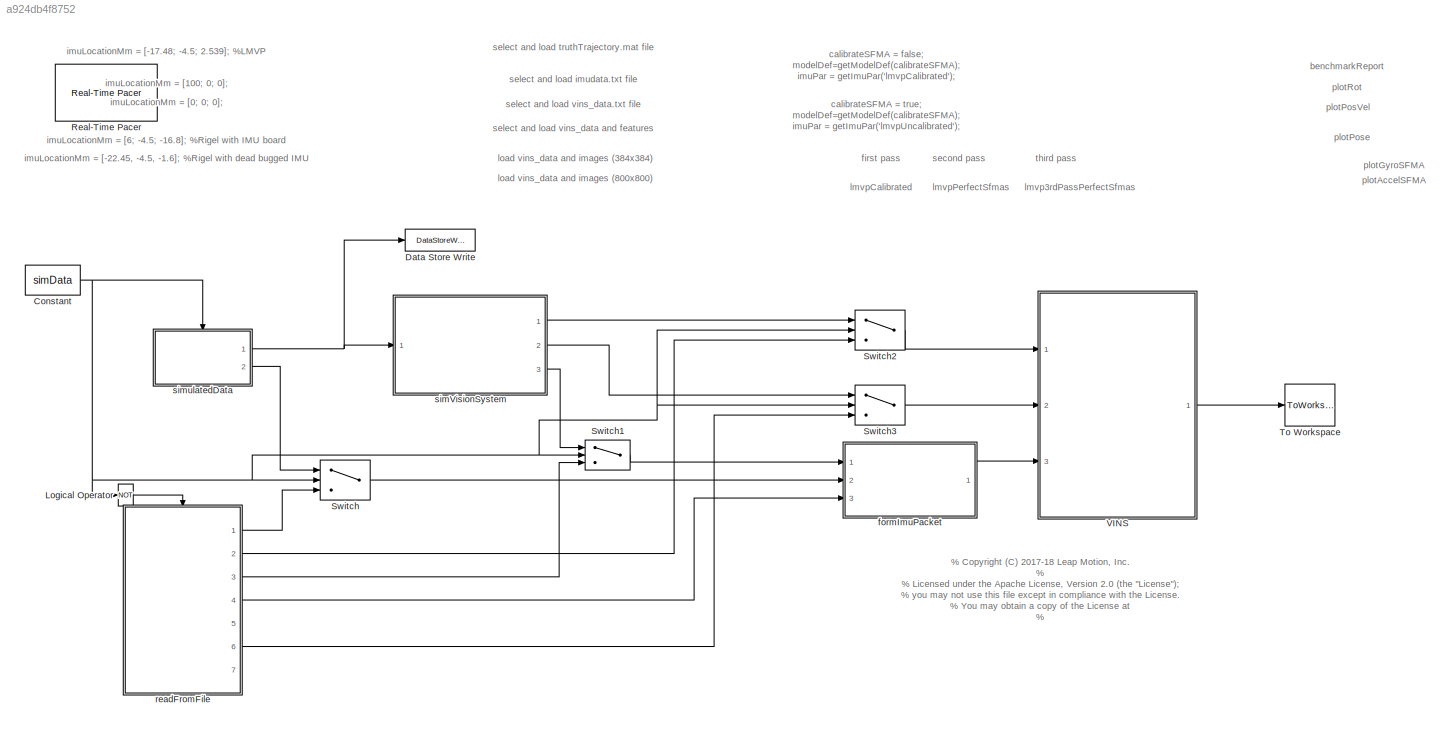
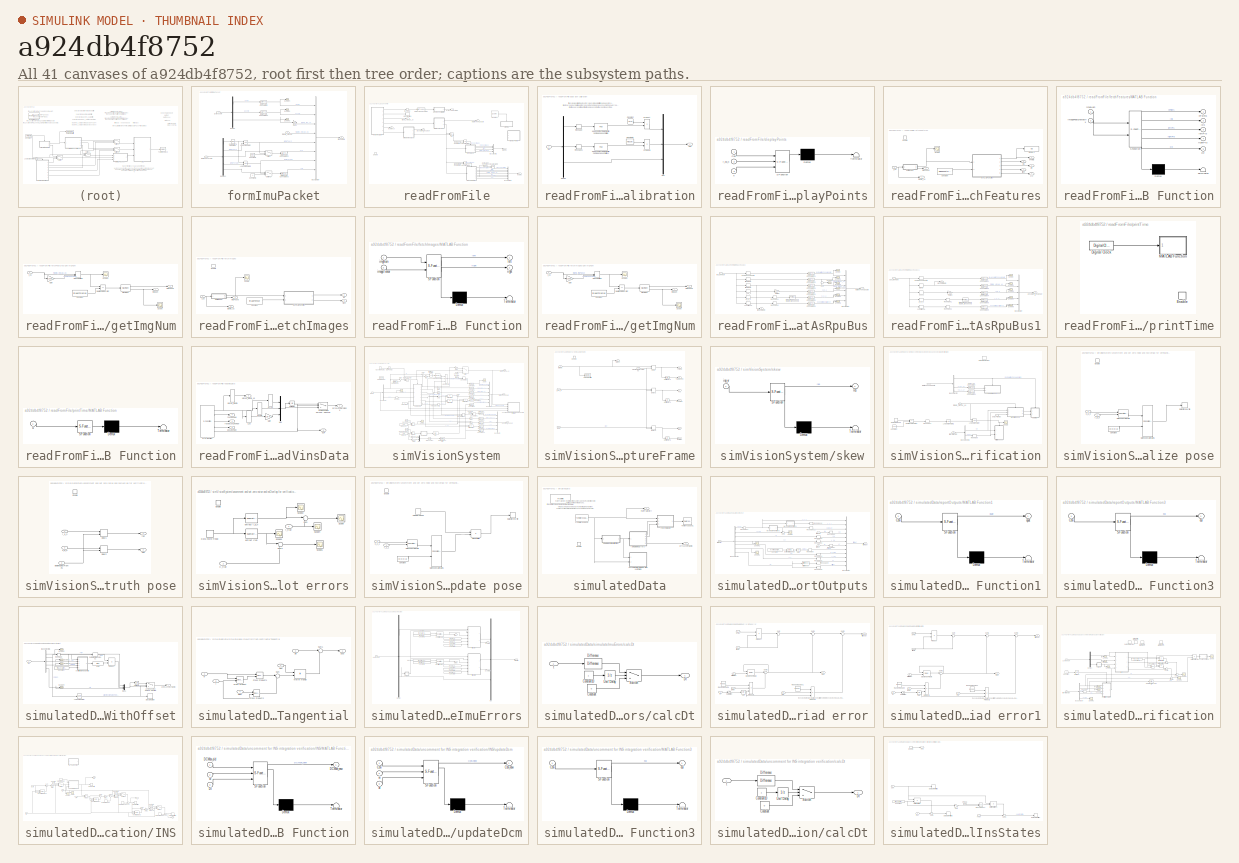
[diagram: thumbnail index - all 41 canvases of the model, root first then tree order]
MODEL slx_a924db4f8752
KIND model
CONFIG AbsTol = auto
CONFIG EnableMultiTasking = on
CONFIG FixedStep = 1/Fs
CONFIG MaxStep = auto
CONFIG MinStep = auto
CONFIG PreLoadFcn = calibrateSFMA=false\nmodelDef = getModelDef(calibrateSFMA);\nload VINS_bus_definitions.mat;\n\nimuLocationMm = [6 -4.5 -16.8];\ndejitter_on = true;\nfidPosUncert = 0.01;\n\nFs = 1000;  % nominal IMU sampling rate (Hz)\n\ngyroCalBiases = [0;0;0];\ngyroCalMatrix = eye(3);\ngyroGsensMatrix = zeros(3,3);\nHgyro = [1 0 0 0; 0 1 0 0; 0 0 1 0];\n\naccelCalBiases = [0;0;0];\naccelCalMatrix = eye(3);\nHaccel = [1 0 0 0; 0 ...<+773ch>
CONFIG RelTol = 1e-3
CONFIG SampleTimeConstraint = Unconstrained
CONFIG Solver = FixedStepDiscrete
CONFIG SolverName = FixedStepDiscrete
CONFIG StartFcn = cd '<userpath>\Documents\MATLAB\VINS';
CONFIG StartTime = 0.0
CONFIG StopTime = inf
BLOCK [Constant] Constant
  Value = simData
BLOCK [DataStoreWrite] Data Store Write
  DataStoreElements = truthTraj
  DataStoreName = truthTraj
  Ports = [1]
BLOCK [Logic] Logical Operator
  AllPortsSameDT = off
  IconShape = distinctive
  Operator = NOT
  OutDataTypeStr = boolean
  Ports = [1, 1]
BLOCK [Reference] Real-Time Pacer  REF=realtime_pacer_lib/Real-Time Pacer
  Commented = on
  Ports = []
  SourceBlock = realtime_pacer_lib/Real-Time Pacer
  SourceType = RealTime_Pacer
BLOCK [Switch] Switch
  Criteria = u2 > Threshold
  InputSameDT = off
  SaturateOnIntegerOverflow = off
  Threshold = 0.5
BLOCK [Switch] Switch1
  Criteria = u2 > Threshold
  InputSameDT = off
  SaturateOnIntegerOverflow = off
  Threshold = 0.5
BLOCK [Switch] Switch2
  Criteria = u2 > Threshold
  InputSameDT = off
  SaturateOnIntegerOverflow = off
  Threshold = 0.5
BLOCK [Switch] Switch3
  Criteria = u2 > Threshold
  InputSameDT = off
  SaturateOnIntegerOverflow = off
  Threshold = 0.5
BLOCK [ToWorkspace] To Workspace
  MaxDataPoints = inf
  Ports = [1]
  SampleTime = -1
  Save2DSignal = 2-D array (concatenate along first dimension)
  SaveFormat = Timeseries
  VariableName = simout
BLOCK [ModelReference] VINS
  CodeInterface = Top model
  ModelNameDialog = VINS.slx
  ModelReferenceVersion = 1.743
  Ports = [3, 1]
BLOCK [SubSystem] formImuPacket
  Ports = [3, 1]
  RequestExecContextInheritance = off
BLOCK [BusCreator] formImuPacket/Bus Creator
  DisplayOption = bar
  InheritFromInputs = on
  Inputs = gyros,accels,tstamp_imu_us,tstamp_vidcap_us,jumpToXyz,xyz,jumpToYaw,yaw
  NonVirtualBus = on
  OutDataTypeStr = Bus: imuSample
  Ports = [8, 1]
BLOCK [Reference] formImuPacket/Compare To Constant  REF=simulink/Logic and Bit
Operations/Compare
To Constant
  Ports = [1, 1]
  SourceBlock = simulink/Logic and Bit\nOperations/Compare\nTo Constant
  SourceProductBaseCode = SL
  SourceProductName = Simulink
  SourceType = Compare To Constant
BLOCK [Constant] formImuPacket/Constant1
  Value = [0;0;0]
BLOCK [Constant] formImuPacket/Constant3
  Value = 0
BLOCK [DataTypeConversion] formImuPacket/Data Type Conversion
  RndMeth = Floor
  SaturateOnIntegerOverflow = off
BLOCK [DataTypeConversion] formImuPacket/Data Type Conversion1
  RndMeth = Floor
  SaturateOnIntegerOverflow = off
BLOCK [DataTypeConversion] formImuPacket/Data Type Conversion2
  RndMeth = Floor
  SaturateOnIntegerOverflow = off
BLOCK [DataTypeConversion] formImuPacket/Data Type Conversion3
  RndMeth = Floor
  SaturateOnIntegerOverflow = off
BLOCK [Demux] formImuPacket/Demux
  DisplayOption = bar
  Outputs = [3 3 1]
  Ports = [1, 3]
BLOCK [Demux] formImuPacket/Demux1
  DisplayOption = bar
  Outputs = [1 1 3 1 1]
  Ports = [1, 5]
BLOCK [Gain] formImuPacket/Gain2
  Gain = 1e6
  OutDataTypeStr = Inherit: Inherit via internal rule
  ParamDataTypeStr = Inherit: Inherit via internal rule
  SaturateOnIntegerOverflow = off
BLOCK [Logic] formImuPacket/Logical Operator
  AllPortsSameDT = off
  OutDataTypeStr = boolean
  Ports = [2, 1]
BLOCK [Logic] formImuPacket/Logical Operator1
  AllPortsSameDT = off
  OutDataTypeStr = boolean
  Ports = [2, 1]
BLOCK [Scope] formImuPacket/Scope2
  Floating = off
  NumInputPorts = 1
  Ports = [1]
  ScopeSpecificationString = Simulink.scopes.TimeScopeBlockCfg('CurrentConfiguration', extmgr.ConfigurationSet(extmgr.Configuration('Core','General UI',true),extmgr.Configuration('Core','Source UI',true),extmgr.Configuration('Sources','WiredSimulink',true,'DataLoggingVariableName','ScopeData1'),extmgr.Configuration('Visuals','Time Domain',true,'SerializedDisplays',{struct('MinYLimReal','-48.89553','MaxYLimReal','48.63757','YL...<+1470ch>
BLOCK [Scope] formImuPacket/Scope3
  Floating = off
  NumInputPorts = 1
  Ports = [1]
  ScopeSpecificationString = Simulink.scopes.TimeScopeBlockCfg('CurrentConfiguration', extmgr.ConfigurationSet(extmgr.Configuration('Core','General UI',true),extmgr.Configuration('Core','Source UI',true),extmgr.Configuration('Sources','WiredSimulink',true,'DataLoggingVariableName','ScopeData5'),extmgr.Configuration('Visuals','Time Domain',true,'SerializedDisplays',{struct('MinYLimReal','-10946.28734','MaxYLimReal','98525.3438...<+1467ch>
BLOCK [Scope] formImuPacket/Scope4
  Floating = off
  NumInputPorts = 1
  Ports = [1]
  ScopeSpecificationString = Simulink.scopes.TimeScopeBlockCfg('CurrentConfiguration', extmgr.ConfigurationSet(extmgr.Configuration('Core','General UI',true),extmgr.Configuration('Core','Source UI',true),extmgr.Configuration('Sources','WiredSimulink',true,'DataLoggingVariableName','ScopeData14'),extmgr.Configuration('Visuals','Time Domain',true,'SerializedDisplays',{struct('MinYLimReal','-109475.30546','MaxYLimReal','985253.9...<+1497ch>
BLOCK [Switch] formImuPacket/Switch
  Criteria = u2 > Threshold
  InputSameDT = off
  SaturateOnIntegerOverflow = off
BLOCK [Switch] formImuPacket/Switch1
  Criteria = u2 > Threshold
  InputSameDT = off
  SaturateOnIntegerOverflow = off
BLOCK [Inport] formImuPacket/gyroAccelT
  IconDisplay = Port number
  Port = 2
BLOCK [Outport] formImuPacket/imuSample
  IconDisplay = Port number
BLOCK [Inport] formImuPacket/jumpToXyzYaw
  IconDisplay = Port number
  Port = 3
BLOCK [Inport] formImuPacket/tstamp_vidcap
  IconDisplay = Port number
BLOCK [SubSystem] readFromFile
  Ports = [0, 7, 1]
  RequestExecContextInheritance = off
BLOCK [BusCreator] readFromFile/Bus Creator1
  DisplayOption = bar
  InheritFromInputs = on
  Inputs = 4
  Ports = [4, 1]
BLOCK [BusCreator] readFromFile/Bus Creator2
  DisplayOption = bar
  InheritFromInputs = on
  Inputs = 7
  Ports = [7, 1]
BLOCK [Reference] readFromFile/Compare To Constant  REF=simulink/Logic and Bit
Operations/Compare
To Constant
  Ports = [1, 1]
  SourceBlock = simulink/Logic and Bit\nOperations/Compare\nTo Constant
  SourceProductBaseCode = SL
  SourceProductName = Simulink
  SourceType = Compare To Constant
BLOCK [Constant] readFromFile/Constant
  Value = useImages
BLOCK [Constant] readFromFile/Constant1
  Value = useFeatures
BLOCK [Reference] readFromFile/Counter  REF=dspswit3/Counter
  Commented = on
  Ports = [0, 1]
  SourceBlock = dspswit3/Counter
  SourceProductBaseCode = DS
  SourceProductName = DSP System Toolbox
  SourceType = Counter
BLOCK [DataTypeConversion] readFromFile/Data Type Conversion
  OutDataTypeStr = double
  RndMeth = Floor
  SaturateOnIntegerOverflow = off
BLOCK [EnablePort] readFromFile/Enable
  Ports = []
BLOCK [Logic] readFromFile/Logical Operator
  AllPortsSameDT = off
  OutDataTypeStr = boolean
  Ports = [2, 1]
BLOCK [Logic] readFromFile/Logical Operator1
  AllPortsSameDT = off
  OutDataTypeStr = boolean
  Ports = [2, 1]
BLOCK [Logic] readFromFile/Logical Operator2
  AllPortsSameDT = off
  OutDataTypeStr = boolean
  Ports = [2, 1]
BLOCK [Logic] readFromFile/OR
  AllPortsSameDT = off
  IconShape = distinctive
  Operator = OR
  OutDataTypeStr = boolean
  Ports = [2, 1]
BLOCK [Reshape] readFromFile/Reshape
  OutputDimensionality = Column vector (2-D)
  Ports = [1, 1]
BLOCK [Stop] readFromFile/Stop Simulation
BLOCK [Outport] readFromFile/absolutePoseUpdate
  IconDisplay = Port number
  Port = 6
BLOCK [SubSystem] readFromFile/apply json calibration
  Ports = [1, 1]
  RequestExecContextInheritance = off
  TreatAsAtomicUnit = on
BLOCK [Constant] readFromFile/apply json calibration/Constant
  Value = Hgyro
BLOCK [Constant] readFromFile/apply json calibration/Constant1
  Value = Haccel
BLOCK [Demux] readFromFile/apply json calibration/Demux
  DisplayOption = bar
  Outputs = [3 3 1]
  Ports = [1, 3]
BLOCK [Inport] readFromFile/apply json calibration/In1
  IconDisplay = Port number
BLOCK [Mux] readFromFile/apply json calibration/Mux
  DisplayOption = bar
  Inputs = 3
  Ports = [3, 1]
BLOCK [Outport] readFromFile/apply json calibration/Out1
  IconDisplay = Port number
BLOCK [Product] readFromFile/apply json calibration/Product
  InputSameDT = off
  Multiplication = Matrix(*)
  OutDataTypeStr = Inherit: Inherit via internal rule
  Ports = [2, 1]
  RndMeth = Floor
  SaturateOnIntegerOverflow = off
BLOCK [Product] readFromFile/apply json calibration/Product1
  InputSameDT = off
  Multiplication = Matrix(*)
  OutDataTypeStr = Inherit: Inherit via internal rule
  Ports = [2, 1]
  RndMeth = Floor
  SaturateOnIntegerOverflow = off
BLOCK [Reshape] readFromFile/apply json calibration/Reshape
  OutputDimensionality = Column vector (2-D)
  Ports = [1, 1]
BLOCK [Reshape] readFromFile/apply json calibration/Reshape1
  OutputDimensionality = Column vector (2-D)
  Ports = [1, 1]
BLOCK [Reference] readFromFile/apply json calibration/add a 1 as fourth element for homogeneous multiply  REF=dspsigops/Pad
  Ports = [1, 1]
  SourceBlock = dspsigops/Pad
  SourceProductBaseCode = DS
  SourceProductName = DSP System Toolbox
  SourceType = Pad
BLOCK [Reference] readFromFile/apply json calibration/add a 1 as fourth element for homogeneous multiply1  REF=dspsigops/Pad
  Ports = [1, 1]
  SourceBlock = dspsigops/Pad
  SourceProductBaseCode = DS
  SourceProductName = DSP System Toolbox
  SourceType = Pad
BLOCK [SubSystem] readFromFile/displayPoints
  Commented = on
  ErrorFcn = Stateflow.Translate.translate
  PermitHierarchicalResolution = ExplicitOnly
  Ports = [3]
  RequestExecContextInheritance = off
  SFBlockType = MATLAB Function
  TreatAsAtomicUnit = on
BLOCK [Demux] readFromFile/displayPoints/ Demux 
  Outputs = 1
  Ports = [1, 1]
BLOCK [S-Function] readFromFile/displayPoints/ SFunction 
  EnableBusSupport = on
  FunctionName = sf_sfun
  PortCounts = [3 1]
  Ports = [3, 1]
  SFcnIsStateOwnerBlock = off
  SFunctionDeploymentMode = off
  Tag = Stateflow S-Function simVINS 28
BLOCK [Terminator] readFromFile/displayPoints/ Terminator 
BLOCK [Inport] readFromFile/displayPoints/Cbn
  IconDisplay = Port number
BLOCK [Inport] readFromFile/displayPoints/X
  IconDisplay = Port number
  Port = 3
BLOCK [Inport] readFromFile/displayPoints/r_nb_n
  IconDisplay = Port number
  Port = 2
BLOCK [Outport] readFromFile/features
  IconDisplay = Port number
  Port = 5
BLOCK [SubSystem] readFromFile/fetchFeatures
  Ports = [1, 7, 1]
  RequestExecContextInheritance = off
BLOCK [Constant] readFromFile/fetchFeatures/Constant
  Value = imageFeatureMatrix
BLOCK [Display] readFromFile/fetchFeatures/Display1
  Decimation = 1
  Ports = [1]
BLOCK [EnablePort] readFromFile/fetchFeatures/Enable
  Ports = []
  PropagateVarSize = During execution
BLOCK [Outport] readFromFile/fetchFeatures/IDs
  IconDisplay = Port number
  Port = 5
BLOCK [SubSystem] readFromFile/fetchFeatures/MATLAB Function
  ErrorFcn = Stateflow.Translate.translate
  PermitHierarchicalResolution = ExplicitOnly
  Ports = [2, 5]
  RequestExecContextInheritance = off
  SFBlockType = MATLAB Function
  TreatAsAtomicUnit = on
BLOCK [Demux] readFromFile/fetchFeatures/MATLAB Function/ Demux 
  Outputs = 1
  Ports = [1, 1]
BLOCK [S-Function] readFromFile/fetchFeatures/MATLAB Function/ SFunction 
  EnableBusSupport = on
  FunctionName = sf_sfun
  PortCounts = [2 6]
  Ports = [2, 6]
  SFcnIsStateOwnerBlock = off
  SFunctionDeploymentMode = off
  Tag = Stateflow S-Function simVINS 12
BLOCK [Terminator] readFromFile/fetchFeatures/MATLAB Function/ Terminator 
BLOCK [Outport] readFromFile/fetchFeatures/MATLAB Function/IDs
  IconDisplay = Port number
  Port = 2
BLOCK [Inport] readFromFile/fetchFeatures/MATLAB Function/imageFeatureMatrix
  IconDisplay = Port number
  Port = 2
BLOCK [Inport] readFromFile/fetchFeatures/MATLAB Function/imgNum
  IconDisplay = Port number
BLOCK [Outport] readFromFile/fetchFeatures/MATLAB Function/leftPts
  IconDisplay = Port number
  Port = 3
BLOCK [Outport] readFromFile/fetchFeatures/MATLAB Function/nPoints
  IconDisplay = Port number
BLOCK [Outport] readFromFile/fetchFeatures/MATLAB Function/rightPts
  IconDisplay = Port number
  Port = 4
BLOCK [Outport] readFromFile/fetchFeatures/MATLAB Function/xyz
  IconDisplay = Port number
  Port = 5
BLOCK [Scope] readFromFile/fetchFeatures/Scope
  Floating = off
  NumInputPorts = 1
  Ports = [1]
  ScopeSpecificationString = Simulink.scopes.TimeScopeBlockCfg('CurrentConfiguration', extmgr.ConfigurationSet(extmgr.Configuration('Core','General UI',true),extmgr.Configuration('Core','Source UI',true),extmgr.Configuration('Sources','WiredSimulink',true,'DataLoggingVariableName','ScopeData3'),extmgr.Configuration('Visuals','Time Domain',true,'SerializedDisplays',{struct('MinYLimReal','-116.125','MaxYLimReal','1055.125','YLa...<+1521ch>
BLOCK [SubSystem] readFromFile/fetchFeatures/getImgNum
  Ports = [1, 2]
  Priority = 1
  RequestExecContextInheritance = off
BLOCK [Constant] readFromFile/fetchFeatures/getImgNum/Constant
  Value = imageTstamps
BLOCK [Gain] readFromFile/fetchFeatures/getImgNum/Gain
  Gain = 1000
  OutDataTypeStr = Inherit: Inherit via internal rule
  ParamDataTypeStr = Inherit: Inherit via internal rule
  SaturateOnIntegerOverflow = off
BLOCK [ManualSwitch] readFromFile/fetchFeatures/getImgNum/Manual Switch
BLOCK [Reference] readFromFile/fetchFeatures/getImgNum/Maximum  REF=dspstat3/Maximum
  Ports = [1, 2]
  SourceBlock = dspstat3/Maximum
  SourceProductBaseCode = DS
  SourceProductName = DSP System Toolbox
  SourceType = Maximum
  UserDataPersistent = on
BLOCK [RelationalOperator] readFromFile/fetchFeatures/getImgNum/Relational Operator
  InputSameDT = off
  Operator = ==
  OutDataTypeStr = boolean
  Ports = [2, 1]
  RndMeth = Simplest
BLOCK [Scope] readFromFile/fetchFeatures/getImgNum/Scope
  Floating = off
  NumInputPorts = 1
  Ports = [1]
  ScopeSpecificationString = Simulink.scopes.TimeScopeBlockCfg('CurrentConfiguration', extmgr.ConfigurationSet(extmgr.Configuration('Core','General UI',true),extmgr.Configuration('Core','Source UI',true),extmgr.Configuration('Sources','WiredSimulink',true,'DataLoggingVariableName','ScopeData1'),extmgr.Configuration('Visuals','Time Domain',true,'SerializedDisplays',{struct('MinYLimReal','342.85353','MaxYLimReal','355.2282','YL...<+1523ch>
BLOCK [Scope] readFromFile/fetchFeatures/getImgNum/Scope1
  Floating = off
  NumInputPorts = 1
  Ports = [1]
  ScopeSpecificationString = Simulink.scopes.TimeScopeBlockCfg('CurrentConfiguration', extmgr.ConfigurationSet(extmgr.Configuration('Core','General UI',true),extmgr.Configuration('Core','Source UI',true),extmgr.Configuration('Sources','WiredSimulink',true,'DataLoggingVariableName','ScopeData2'),extmgr.Configuration('Visuals','Time Domain',true,'SerializedDisplays',{struct('MinYLimReal','490808913335.62317','MaxYLimReal','4908...<+1603ch>
BLOCK [Outport] readFromFile/fetchFeatures/getImgNum/imgFound
  IconDisplay = Port number
  Port = 2
BLOCK [Outport] readFromFile/fetchFeatures/getImgNum/imgNum
  IconDisplay = Port number
BLOCK [Inport] readFromFile/fetchFeatures/getImgNum/t_us
  IconDisplay = Port number
BLOCK [Outport] readFromFile/fetchFeatures/imgFound
  IconDisplay = Port number
  InitialOutput = false
  OutputWhenDisabled = reset
BLOCK [Outport] readFromFile/fetchFeatures/left
  IconDisplay = Port number
  Port = 2
BLOCK [Outport] readFromFile/fetchFeatures/nPoints
  IconDisplay = Port number
  Port = 6
BLOCK [Outport] readFromFile/fetchFeatures/right
  IconDisplay = Port number
  Port = 3
BLOCK [Inport] readFromFile/fetchFeatures/t_us
  IconDisplay = Port number
BLOCK [Outport] readFromFile/fetchFeatures/tstamp_us
  IconDisplay = Port number
  InitialOutput = 0
  OutputWhenDisabled = reset
  Port = 4
BLOCK [Outport] readFromFile/fetchFeatures/xyz
  IconDisplay = Port number
  Port = 7
BLOCK [SubSystem] readFromFile/fetchImages
  Ports = [1, 4, 1]
  RequestExecContextInheritance = off
BLOCK [Constant] readFromFile/fetchImages/Constant
  Value = imageTensor
BLOCK [EnablePort] readFromFile/fetchImages/Enable
  Ports = []
BLOCK [SubSystem] readFromFile/fetchImages/MATLAB Function
  ErrorFcn = Stateflow.Translate.translate
  PermitHierarchicalResolution = ExplicitOnly
  Ports = [2, 2]
  RequestExecContextInheritance = off
  SFBlockType = MATLAB Function
  TreatAsAtomicUnit = on
BLOCK [Demux] readFromFile/fetchImages/MATLAB Function/ Demux 
  Outputs = 1
  Ports = [1, 1]
BLOCK [S-Function] readFromFile/fetchImages/MATLAB Function/ SFunction 
  EnableBusSupport = on
  FunctionName = sf_sfun
  PortCounts = [2 3]
  Ports = [2, 3]
  SFcnIsStateOwnerBlock = off
  SFunctionDeploymentMode = off
  Tag = Stateflow S-Function simVINS 5
BLOCK [Terminator] readFromFile/fetchImages/MATLAB Function/ Terminator 
BLOCK [Inport] readFromFile/fetchImages/MATLAB Function/imageTensor
  IconDisplay = Port number
  Port = 2
BLOCK [Inport] readFromFile/fetchImages/MATLAB Function/imgNum
  IconDisplay = Port number
BLOCK [Outport] readFromFile/fetchImages/MATLAB Function/left
  IconDisplay = Port number
BLOCK [Outport] readFromFile/fetchImages/MATLAB Function/right
  IconDisplay = Port number
  Port = 2
BLOCK [Scope] readFromFile/fetchImages/Scope
  Floating = off
  NumInputPorts = 1
  Ports = [1]
  ScopeSpecificationString = Simulink.scopes.TimeScopeBlockCfg('CurrentConfiguration', extmgr.ConfigurationSet(extmgr.Configuration('Core','General UI',true),extmgr.Configuration('Core','Source UI',true),extmgr.Configuration('Sources','WiredSimulink',true,'DataLoggingVariableName','ScopeData3'),extmgr.Configuration('Visuals','Time Domain',true,'SerializedDisplays',{struct('MinYLimReal','393.83427','MaxYLimReal','401.94218','Y...<+1529ch>
BLOCK [SubSystem] readFromFile/fetchImages/getImgNum
  Ports = [1, 2]
  Priority = 1
  RequestExecContextInheritance = off
BLOCK [Constant] readFromFile/fetchImages/getImgNum/Constant
  Value = imageTstamps
BLOCK [Gain] readFromFile/fetchImages/getImgNum/Gain
  Gain = 1000
  OutDataTypeStr = Inherit: Inherit via internal rule
  ParamDataTypeStr = Inherit: Inherit via internal rule
  SaturateOnIntegerOverflow = off
BLOCK [ManualSwitch] readFromFile/fetchImages/getImgNum/Manual Switch
BLOCK [Reference] readFromFile/fetchImages/getImgNum/Maximum  REF=dspstat3/Maximum
  Ports = [1, 2]
  SourceBlock = dspstat3/Maximum
  SourceProductBaseCode = DS
  SourceProductName = DSP System Toolbox
  SourceType = Maximum
  UserDataPersistent = on
BLOCK [RelationalOperator] readFromFile/fetchImages/getImgNum/Relational Operator
  InputSameDT = off
  Operator = ==
  OutDataTypeStr = boolean
  Ports = [2, 1]
  RndMeth = Simplest
BLOCK [Scope] readFromFile/fetchImages/getImgNum/Scope
  Floating = off
  NumInputPorts = 1
  Ports = [1]
  ScopeSpecificationString = Simulink.scopes.TimeScopeBlockCfg('CurrentConfiguration', extmgr.ConfigurationSet(extmgr.Configuration('Core','General UI',true),extmgr.Configuration('Core','Source UI',true),extmgr.Configuration('Sources','WiredSimulink',true,'DataLoggingVariableName','ScopeData1'),extmgr.Configuration('Visuals','Time Domain',true,'SerializedDisplays',{struct('MinYLimReal','342.85353','MaxYLimReal','355.2282','YL...<+1523ch>
BLOCK [Scope] readFromFile/fetchImages/getImgNum/Scope1
  Floating = off
  NumInputPorts = 1
  Ports = [1]
  ScopeSpecificationString = Simulink.scopes.TimeScopeBlockCfg('CurrentConfiguration', extmgr.ConfigurationSet(extmgr.Configuration('Core','General UI',true),extmgr.Configuration('Core','Source UI',true),extmgr.Configuration('Sources','WiredSimulink',true,'DataLoggingVariableName','ScopeData2'),extmgr.Configuration('Visuals','Time Domain',true,'SerializedDisplays',{struct('MinYLimReal','490808913335.62317','MaxYLimReal','4908...<+1603ch>
BLOCK [Outport] readFromFile/fetchImages/getImgNum/imgFound
  IconDisplay = Port number
  Port = 2
BLOCK [Outport] readFromFile/fetchImages/getImgNum/imgNum
  IconDisplay = Port number
BLOCK [Inport] readFromFile/fetchImages/getImgNum/t_us
  IconDisplay = Port number
BLOCK [Outport] readFromFile/fetchImages/imgFound
  IconDisplay = Port number
  InitialOutput = false
  OutputWhenDisabled = reset
BLOCK [Outport] readFromFile/fetchImages/left
  IconDisplay = Port number
  Port = 2
BLOCK [Outport] readFromFile/fetchImages/right
  IconDisplay = Port number
  Port = 3
BLOCK [Inport] readFromFile/fetchImages/t_us
  IconDisplay = Port number
BLOCK [Outport] readFromFile/fetchImages/tstamp_us
  IconDisplay = Port number
  InitialOutput = 0
  OutputWhenDisabled = reset
  Port = 4
BLOCK [SubSystem] readFromFile/formatAsRpuBus
  Ports = [1, 2]
  RequestExecContextInheritance = off
BLOCK [BusCreator] readFromFile/formatAsRpuBus/Bus Creator
  DisplayOption = bar
  InheritFromInputs = on
  Inputs = 6
  NonVirtualBus = on
  OutDataTypeStr = Bus: relativePoseUpdate
  Ports = [6, 1]
BLOCK [Selector] readFromFile/formatAsRpuBus/C_2_1
  IndexOptions = Index vector (dialog)
  Indices = 4:12
  InputPortWidth = 52
  OutputSizes = 1
  Ports = [1, 1]
BLOCK [DataTypeConversion] readFromFile/formatAsRpuBus/Data Type Conversion1
  RndMeth = Floor
  SaturateOnIntegerOverflow = off
BLOCK [DataTypeConversion] readFromFile/formatAsRpuBus/Data Type Conversion2
  RndMeth = Floor
  SaturateOnIntegerOverflow = off
BLOCK [DataTypeConversion] readFromFile/formatAsRpuBus/Data Type Conversion3
  RndMeth = Floor
  SaturateOnIntegerOverflow = off
BLOCK [DataTypeConversion] readFromFile/formatAsRpuBus/Data Type Conversion4
  RndMeth = Floor
  SaturateOnIntegerOverflow = off
BLOCK [DataTypeConversion] readFromFile/formatAsRpuBus/Data Type Conversion5
  RndMeth = Floor
  SaturateOnIntegerOverflow = off
BLOCK [DataTypeConversion] readFromFile/formatAsRpuBus/Data Type Conversion9
  RndMeth = Floor
  SaturateOnIntegerOverflow = off
BLOCK [Reshape] readFromFile/formatAsRpuBus/Reshape1
  OutputDimensionality = Customize
  OutputDimensions = [3,3]
  Ports = [1, 1]
BLOCK [Reshape] readFromFile/formatAsRpuBus/Reshape2
  OutputDimensionality = Customize
  OutputDimensions = [6,6]
  Ports = [1, 1]
BLOCK [Scope] readFromFile/formatAsRpuBus/Scope
  Floating = off
  NumInputPorts = 1
  Ports = [1]
  ScopeSpecificationString = Simulink.scopes.TimeScopeBlockCfg('CurrentConfiguration', extmgr.ConfigurationSet(extmgr.Configuration('Core','General UI',true),extmgr.Configuration('Core','Source UI',true),extmgr.Configuration('Sources','WiredSimulink',true,'DataLoggingVariableName','ScopeData1'),extmgr.Configuration('Visuals','Time Domain',true,'SerializedDisplays',{struct('MinYLimReal','-1.00000','MaxYLimReal','1.00000','YLab...<+1423ch>
BLOCK [Scope] readFromFile/formatAsRpuBus/Scope1
  Floating = off
  NumInputPorts = 1
  Ports = [1]
  ScopeSpecificationString = Simulink.scopes.TimeScopeBlockCfg('CurrentConfiguration', extmgr.ConfigurationSet(extmgr.Configuration('Core','General UI',true),extmgr.Configuration('Core','Source UI',true),extmgr.Configuration('Sources','WiredSimulink',true,'DataLoggingVariableName','ScopeData2'),extmgr.Configuration('Visuals','Time Domain',true,'SerializedDisplays',{struct('MinYLimReal','-22144564.28052','MaxYLimReal','1993010...<+1477ch>
BLOCK [Scope] readFromFile/formatAsRpuBus/Scope2
  Floating = off
  NumInputPorts = 1
  Ports = [1]
  ScopeSpecificationString = Simulink.scopes.TimeScopeBlockCfg('CurrentConfiguration', extmgr.ConfigurationSet(extmgr.Configuration('Core','General UI',true),extmgr.Configuration('Core','Source UI',true),extmgr.Configuration('Sources','WiredSimulink',true,'DataLoggingVariableName','ScopeData3'),extmgr.Configuration('Visuals','Time Domain',true,'SerializedDisplays',{struct('MinYLimReal','365591566.46863','MaxYLimReal','3658049...<+1481ch>
BLOCK [Scope] readFromFile/formatAsRpuBus/Scope3
  Floating = off
  NumInputPorts = 1
  Ports = [1]
  ScopeSpecificationString = Simulink.scopes.TimeScopeBlockCfg('CurrentConfiguration', extmgr.ConfigurationSet(extmgr.Configuration('Core','General UI',true),extmgr.Configuration('Core','Source UI',true),extmgr.Configuration('Sources','WiredSimulink',true,'DataLoggingVariableName','ScopeData4'),extmgr.Configuration('Visuals','Time Domain',true,'SerializedDisplays',{struct('MinYLimReal','-0.05983','MaxYLimReal','0.06979','YLab...<+1462ch>
BLOCK [Scope] readFromFile/formatAsRpuBus/Scope4
  Floating = off
  NumInputPorts = 1
  Ports = [1]
  ScopeSpecificationString = Simulink.scopes.TimeScopeBlockCfg('CurrentConfiguration', extmgr.ConfigurationSet(extmgr.Configuration('Core','General UI',true),extmgr.Configuration('Core','Source UI',true),extmgr.Configuration('Sources','WiredSimulink',true,'DataLoggingVariableName','ScopeData5'),extmgr.Configuration('Visuals','Time Domain',true,'SerializedDisplays',{struct('MinYLimReal','-0.81483','MaxYLimReal','1.82293','YLab...<+1490ch>
BLOCK [Scope] readFromFile/formatAsRpuBus/Scope5
  Floating = off
  NumInputPorts = 1
  Ports = [1]
  ScopeSpecificationString = Simulink.scopes.TimeScopeBlockCfg('CurrentConfiguration', extmgr.ConfigurationSet(extmgr.Configuration('Core','General UI',true),extmgr.Configuration('Core','Source UI',true),extmgr.Configuration('Sources','WiredSimulink',true,'DataLoggingVariableName','ScopeData6'),extmgr.Configuration('Visuals','Time Domain',true,'SerializedDisplays',{struct('MinYLimReal','-0.12852','MaxYLimReal','1.12539','YLab...<+2292ch>
BLOCK [Scope] readFromFile/formatAsRpuBus/Scope6
  Floating = off
  NumInputPorts = 1
  Ports = [1]
  ScopeSpecificationString = Simulink.scopes.TimeScopeBlockCfg('CurrentConfiguration', extmgr.ConfigurationSet(extmgr.Configuration('Core','General UI',true),extmgr.Configuration('Core','Source UI',true),extmgr.Configuration('Sources','WiredSimulink',true,'DataLoggingVariableName','ScopeData1'),extmgr.Configuration('Visuals','Time Domain',true,'SerializedDisplays',{struct('MinYLimReal','-4172.25','MaxYLimReal','37550.25','YLa...<+1414ch>
BLOCK [Sum] readFromFile/formatAsRpuBus/Sum
  IconShape = round
  InputSameDT = off
  Inputs = -+
  OutDataTypeStr = Inherit: Inherit via internal rule
  Ports = [2, 1]
  SaturateOnIntegerOverflow = off
BLOCK [Selector] readFromFile/formatAsRpuBus/covariance
  IndexOptions = Index vector (dialog)
  Indices = 16:51
  InputPortWidth = 52
  OutputSizes = 1
  Ports = [1, 1]
BLOCK [Selector] readFromFile/formatAsRpuBus/doRelPoseUpdate
  IndexOptions = Index vector (dialog)
  Indices = 52
  InputPortWidth = 52
  OutputSizes = 1
  Ports = [1, 1]
BLOCK [Outport] readFromFile/formatAsRpuBus/frame2 tstamp
  IconDisplay = Port number
  Port = 2
BLOCK [Selector] readFromFile/formatAsRpuBus/frm1 tstamp
  IndexOptions = Index vector (dialog)
  Indices = 2
  InputPortWidth = 52
  OutputSizes = 1
  Ports = [1, 1]
BLOCK [Selector] readFromFile/formatAsRpuBus/frm2 tstamp
  IndexOptions = Index vector (dialog)
  Indices = 3
  InputPortWidth = 52
  OutputSizes = 1
  Ports = [1, 1]
BLOCK [Gain] readFromFile/formatAsRpuBus/mm to m
  Commented = through
  Gain = 1e-3
  OutDataTypeStr = Inherit: Inherit via internal rule
  ParamDataTypeStr = Inherit: Inherit via internal rule
  SaturateOnIntegerOverflow = off
BLOCK [Selector] readFromFile/formatAsRpuBus/r_12_1
  IndexOptions = Index vector (dialog)
  Indices = 13:15
  InputPortWidth = 52
  OutputSizes = 1
  Ports = [1, 1]
BLOCK [Outport] readFromFile/formatAsRpuBus/relativePoseUpdate
  IconDisplay = Port number
BLOCK [Inport] readFromFile/formatAsRpuBus/rpuLineRaw
  IconDisplay = Port number
BLOCK [PermuteDimensions] readFromFile/formatAsRpuBus/temporary because logging is transposed
BLOCK [SubSystem] readFromFile/formatAsRpuBus1
  Ports = [1, 2]
  RequestExecContextInheritance = off
BLOCK [Selector] readFromFile/formatAsRpuBus1/ tstamp
  IndexOptions = Index vector (dialog)
  Indices = 2
  InputPortWidth = 51
  OutputSizes = 1
  Ports = [1, 1]
BLOCK [BusCreator] readFromFile/formatAsRpuBus1/Bus Creator
  DisplayOption = bar
  InheritFromInputs = on
  Inputs = 5
  NonVirtualBus = on
  OutDataTypeStr = Bus: absolutePoseUpdate
  Ports = [5, 1]
BLOCK [Selector] readFromFile/formatAsRpuBus1/C_2_1
  IndexOptions = Index vector (dialog)
  Indices = 3:11
  InputPortWidth = 51
  OutputSizes = 1
  Ports = [1, 1]
BLOCK [DataTypeConversion] readFromFile/formatAsRpuBus1/Data Type Conversion1
  RndMeth = Floor
  SaturateOnIntegerOverflow = off
BLOCK [DataTypeConversion] readFromFile/formatAsRpuBus1/Data Type Conversion2
  RndMeth = Floor
  SaturateOnIntegerOverflow = off
BLOCK [DataTypeConversion] readFromFile/formatAsRpuBus1/Data Type Conversion4
  RndMeth = Floor
  SaturateOnIntegerOverflow = off
BLOCK [DataTypeConversion] readFromFile/formatAsRpuBus1/Data Type Conversion5
  RndMeth = Floor
  SaturateOnIntegerOverflow = off
BLOCK [DataTypeConversion] readFromFile/formatAsRpuBus1/Data Type Conversion9
  RndMeth = Floor
  SaturateOnIntegerOverflow = off
BLOCK [Reshape] readFromFile/formatAsRpuBus1/Reshape1
  OutputDimensionality = Customize
  OutputDimensions = [3,3]
  Ports = [1, 1]
BLOCK [Reshape] readFromFile/formatAsRpuBus1/Reshape2
  OutputDimensionality = Customize
  OutputDimensions = [6,6]
  Ports = [1, 1]
BLOCK [Scope] readFromFile/formatAsRpuBus1/Scope
  Floating = off
  NumInputPorts = 1
  Ports = [1]
  ScopeSpecificationString = Simulink.scopes.TimeScopeBlockCfg('CurrentConfiguration', extmgr.ConfigurationSet(extmgr.Configuration('Core','General UI',true),extmgr.Configuration('Core','Source UI',true),extmgr.Configuration('Sources','WiredSimulink',true,'DataLoggingVariableName','ScopeData1'),extmgr.Configuration('Visuals','Time Domain',true,'SerializedDisplays',{struct('MinYLimReal','-0.125','MaxYLimReal','1.125','YLabelRe...<+1444ch>
BLOCK [Scope] readFromFile/formatAsRpuBus1/Scope1
  Floating = off
  NumInputPorts = 1
  Ports = [1]
  ScopeSpecificationString = Simulink.scopes.TimeScopeBlockCfg('CurrentConfiguration', extmgr.ConfigurationSet(extmgr.Configuration('Core','General UI',true),extmgr.Configuration('Core','Source UI',true),extmgr.Configuration('Sources','WiredSimulink',true,'DataLoggingVariableName','ScopeData2'),extmgr.Configuration('Visuals','Time Domain',true,'SerializedDisplays',{struct('MinYLimReal','-5862078.25','MaxYLimReal','52758704.25...<+1451ch>
BLOCK [Scope] readFromFile/formatAsRpuBus1/Scope3
  Floating = off
  NumInputPorts = 1
  Ports = [1]
  ScopeSpecificationString = Simulink.scopes.TimeScopeBlockCfg('CurrentConfiguration', extmgr.ConfigurationSet(extmgr.Configuration('Core','General UI',true),extmgr.Configuration('Core','Source UI',true),extmgr.Configuration('Sources','WiredSimulink',true,'DataLoggingVariableName','ScopeData4'),extmgr.Configuration('Visuals','Time Domain',true,'SerializedDisplays',{struct('MinYLimReal','-0.42312','MaxYLimReal','0.33637','YLab...<+1462ch>
BLOCK [Scope] readFromFile/formatAsRpuBus1/Scope4
  Floating = off
  NumInputPorts = 1
  Ports = [1]
  ScopeSpecificationString = Simulink.scopes.TimeScopeBlockCfg('CurrentConfiguration', extmgr.ConfigurationSet(extmgr.Configuration('Core','General UI',true),extmgr.Configuration('Core','Source UI',true),extmgr.Configuration('Sources','WiredSimulink',true,'DataLoggingVariableName','ScopeData5'),extmgr.Configuration('Visuals','Time Domain',true,'SerializedDisplays',{struct('MinYLimReal','-0.81483','MaxYLimReal','1.82293','YLab...<+1490ch>
BLOCK [Scope] readFromFile/formatAsRpuBus1/Scope5
  Floating = off
  NumInputPorts = 1
  Ports = [1]
  ScopeSpecificationString = Simulink.scopes.TimeScopeBlockCfg('CurrentConfiguration', extmgr.ConfigurationSet(extmgr.Configuration('Core','General UI',true),extmgr.Configuration('Core','Source UI',true),extmgr.Configuration('Sources','WiredSimulink',true,'DataLoggingVariableName','ScopeData6'),extmgr.Configuration('Visuals','Time Domain',true,'SerializedDisplays',{struct('MinYLimReal','-0.125','MaxYLimReal','1.125','YLabelRe...<+2280ch>
BLOCK [Outport] readFromFile/formatAsRpuBus1/absolutePoseUpdate
  IconDisplay = Port number
BLOCK [Inport] readFromFile/formatAsRpuBus1/apuLineRaw
  IconDisplay = Port number
BLOCK [Selector] readFromFile/formatAsRpuBus1/covariance
  IndexOptions = Index vector (dialog)
  Indices = 15:50
  InputPortWidth = 51
  OutputSizes = 1
  Ports = [1, 1]
BLOCK [Selector] readFromFile/formatAsRpuBus1/doRelPoseUpdate
  IndexOptions = Index vector (dialog)
  Indices = 51
  InputPortWidth = 51
  OutputSizes = 1
  Ports = [1, 1]
BLOCK [Gain] readFromFile/formatAsRpuBus1/mm to m
  Commented = through
  Gain = 1e-3
  OutDataTypeStr = Inherit: Inherit via internal rule
  ParamDataTypeStr = Inherit: Inherit via internal rule
  SaturateOnIntegerOverflow = off
BLOCK [Selector] readFromFile/formatAsRpuBus1/r_12_1
  IndexOptions = Index vector (dialog)
  Indices = 12:14
  InputPortWidth = 51
  OutputSizes = 1
  Ports = [1, 1]
BLOCK [PermuteDimensions] readFromFile/formatAsRpuBus1/temporary because logging is transposed
BLOCK [Outport] readFromFile/formatAsRpuBus1/vidcap tstamp
  IconDisplay = Port number
  Port = 2
BLOCK [Outport] readFromFile/gyroAccelsTstamp
  IconDisplay = Port number
BLOCK [Outport] readFromFile/images
  IconDisplay = Port number
  Port = 7
BLOCK [SubSystem] readFromFile/printTime
  Commented = on
  Ports = [0, 0, 1]
  RequestExecContextInheritance = off
BLOCK [DigitalClock] readFromFile/printTime/Digital Clock
  SampleTime = 1/Fs
BLOCK [EnablePort] readFromFile/printTime/Enable
  Ports = []
BLOCK [SubSystem] readFromFile/printTime/MATLAB Function
  ErrorFcn = Stateflow.Translate.translate
  PermitHierarchicalResolution = ExplicitOnly
  Ports = [1]
  RequestExecContextInheritance = off
  SFBlockType = MATLAB Function
  TreatAsAtomicUnit = on
BLOCK [Demux] readFromFile/printTime/MATLAB Function/ Demux 
  Outputs = 1
  Ports = [1, 1]
BLOCK [S-Function] readFromFile/printTime/MATLAB Function/ SFunction 
  EnableBusSupport = on
  FunctionName = sf_sfun
  PortCounts = [1 1]
  Ports = [1, 1]
  SFcnIsStateOwnerBlock = off
  SFunctionDeploymentMode = off
  Tag = Stateflow S-Function simVINS 11
BLOCK [Terminator] readFromFile/printTime/MATLAB Function/ Terminator 
BLOCK [Inport] readFromFile/printTime/MATLAB Function/u
  IconDisplay = Port number
BLOCK [SubSystem] readFromFile/readVinsData
  Ports = [0, 6]
  RequestExecContextInheritance = off
BLOCK [S-Function] readFromFile/readVinsData/C++ S-function
  EnableBusSupport = off
  FunctionName = readVinsData
  Parameters = 1/Fs
  Ports = [0, 5]
  SFcnIsStateOwnerBlock = off
  SFunctionDeploymentMode = off
BLOCK [Outport] readFromFile/readVinsData/EOF
  IconDisplay = Port number
  Port = 2
BLOCK [Gain] readFromFile/readVinsData/Gain
  Gain = 1e-6
  OutDataTypeStr = Inherit: Inherit via internal rule
  ParamDataTypeStr = Inherit: Inherit via internal rule
  SaturateOnIntegerOverflow = off
BLOCK [Outport] readFromFile/readVinsData/GyrosAccelsTstamp
  IconDisplay = Port number
BLOCK [Mux] readFromFile/readVinsData/Mux
  DisplayOption = bar
  Inputs = [3 3 1]
  Ports = [3, 1]
BLOCK [UnitDelay] readFromFile/readVinsData/Unit Delay
  InputProcessing = Elements as channels (sample based)
  SampleTime = -1
BLOCK [Selector] readFromFile/readVinsData/accels
  IndexOptions = Index vector (dialog)
  Indices = 3:5
  InputPortWidth = 10
  OutputSizes = 1
  Ports = [1, 1]
BLOCK [Outport] readFromFile/readVinsData/apuLineRaw
  IconDisplay = Port number
  Port = 6
BLOCK [Switch] readFromFile/readVinsData/avoid sending garbage on the last row
  Criteria = u2 > Threshold
  InputSameDT = off
  SaturateOnIntegerOverflow = off
  Threshold = 0.5
BLOCK [Selector] readFromFile/readVinsData/gyros
  IndexOptions = Index vector (dialog)
  Indices = 6:8
  InputPortWidth = 10
  OutputSizes = 1
  Ports = [1, 1]
BLOCK [Outport] readFromFile/readVinsData/resetXyzhLineRaw
  IconDisplay = Port number
  Port = 5
BLOCK [Outport] readFromFile/readVinsData/rpuLineRaw
  IconDisplay = Port number
  Port = 4
BLOCK [Selector] readFromFile/readVinsData/t_us
  IndexOptions = Index vector (dialog)
  Indices = 2
  InputPortWidth = 10
  OutputSizes = 1
  Ports = [1, 1]
BLOCK [Selector] readFromFile/readVinsData/vidcap_tstamp
  IndexOptions = Index vector (dialog)
  Indices = 9
  InputPortWidth = 10
  OutputSizes = 1
  Ports = [1, 1]
BLOCK [Outport] readFromFile/readVinsData/vidcap_tstamp_us
  IconDisplay = Port number
  Port = 3
BLOCK [Outport] readFromFile/relativePoseUpdate
  IconDisplay = Port number
  Port = 2
BLOCK [Outport] readFromFile/resetXyzh
  IconDisplay = Port number
  Port = 4
BLOCK [Outport] readFromFile/tstamp_vidcap_us
  IconDisplay = Port number
  Port = 3
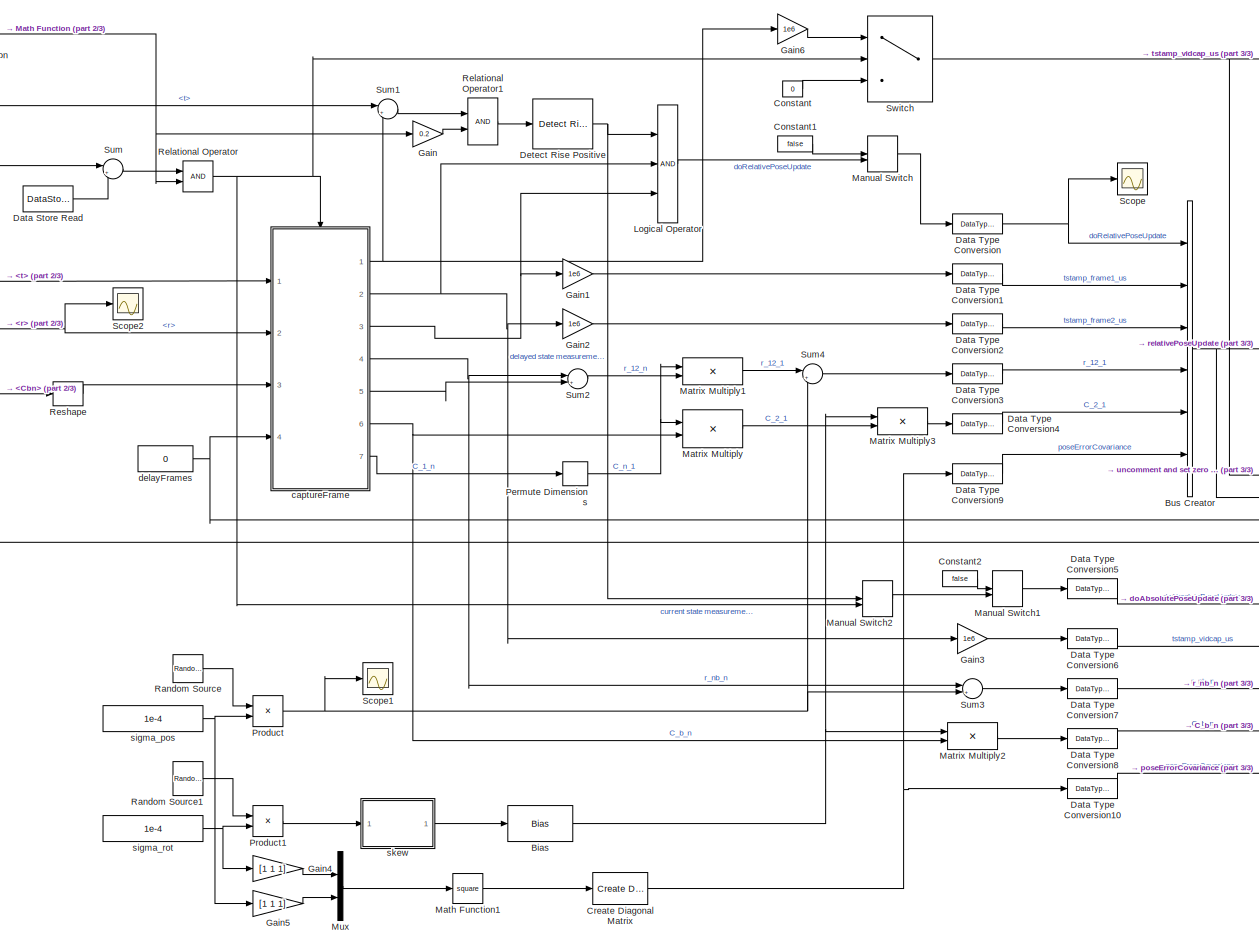
[diagram: simVisionSystem - part 1/3, center side, full height]
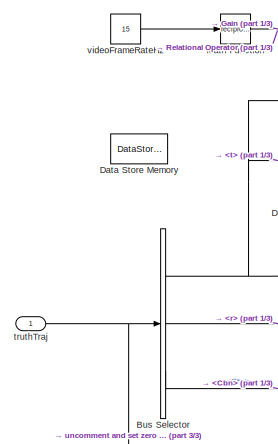
[diagram: simVisionSystem - part 2/3, top left region]
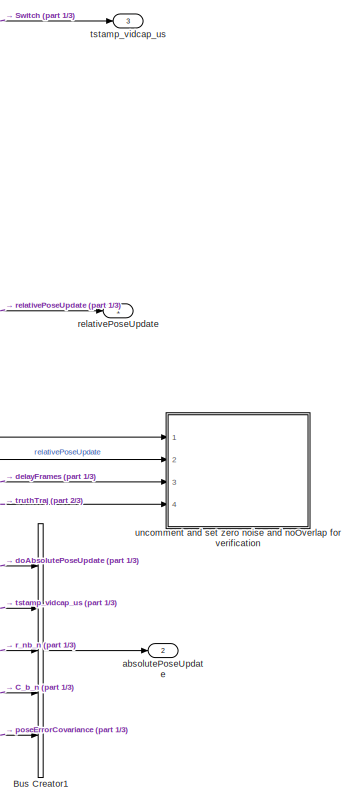
[diagram: simVisionSystem - part 3/3, right side, full height]
BLOCK [SubSystem] simVisionSystem
  Ports = [1, 3]
  RequestExecContextInheritance = off
  TreatAsAtomicUnit = on
BLOCK [Bias] simVisionSystem/Bias
  Bias = eye(3)
  SaturateOnIntegerOverflow = off
BLOCK [BusCreator] simVisionSystem/Bus Creator
  DisplayOption = bar
  InheritFromInputs = on
  Inputs = 6
  NonVirtualBus = on
  OutDataTypeStr = Bus: relativePoseUpdate
  Ports = [6, 1]
BLOCK [BusCreator] simVisionSystem/Bus Creator1
  DisplayOption = bar
  InheritFromInputs = on
  Inputs = 5
  NonVirtualBus = on
  OutDataTypeStr = Bus: absolutePoseUpdate
  Ports = [5, 1]
BLOCK [BusSelector] simVisionSystem/Bus Selector
  OutputAsBus = off
  OutputSignals = t,r,Cbn
  Ports = [1, 3]
BLOCK [Constant] simVisionSystem/Constant
  Value = 0
BLOCK [Constant] simVisionSystem/Constant1
  Value = false
BLOCK [Constant] simVisionSystem/Constant2
  Value = false
BLOCK [Reference] simVisionSystem/Create Diagonal Matrix  REF=dspmtrx3/Create Diagonal
Matrix
  Ports = [1, 1]
  SourceBlock = dspmtrx3/Create Diagonal\nMatrix
  SourceProductBaseCode = DS
  SourceProductName = DSP System Toolbox
  SourceType = Create Diagonal Matrix
BLOCK [DataStoreMemory] simVisionSystem/Data Store Memory
  DataStoreName = t_capture
  ReadBeforeWriteMsg = warning
  ShowAdditionalParam = off
  WriteAfterReadMsg = warning
  WriteAfterWriteMsg = warning
BLOCK [DataStoreRead] simVisionSystem/Data Store Read
  DataStoreName = t_capture
  Ports = [0, 1]
BLOCK [DataTypeConversion] simVisionSystem/Data Type Conversion
  RndMeth = Floor
  SaturateOnIntegerOverflow = off
BLOCK [DataTypeConversion] simVisionSystem/Data Type Conversion1
  RndMeth = Floor
  SaturateOnIntegerOverflow = off
BLOCK [DataTypeConversion] simVisionSystem/Data Type Conversion10
  RndMeth = Floor
  SaturateOnIntegerOverflow = off
BLOCK [DataTypeConversion] simVisionSystem/Data Type Conversion2
  RndMeth = Floor
  SaturateOnIntegerOverflow = off
BLOCK [DataTypeConversion] simVisionSystem/Data Type Conversion3
  RndMeth = Floor
  SaturateOnIntegerOverflow = off
BLOCK [DataTypeConversion] simVisionSystem/Data Type Conversion4
  RndMeth = Floor
  SaturateOnIntegerOverflow = off
BLOCK [DataTypeConversion] simVisionSystem/Data Type Conversion5
  RndMeth = Floor
  SaturateOnIntegerOverflow = off
BLOCK [DataTypeConversion] simVisionSystem/Data Type Conversion6
  RndMeth = Floor
  SaturateOnIntegerOverflow = off
BLOCK [DataTypeConversion] simVisionSystem/Data Type Conversion7
  RndMeth = Floor
  SaturateOnIntegerOverflow = off
BLOCK [DataTypeConversion] simVisionSystem/Data Type Conversion8
  RndMeth = Floor
  SaturateOnIntegerOverflow = off
BLOCK [DataTypeConversion] simVisionSystem/Data Type Conversion9
  RndMeth = Floor
  SaturateOnIntegerOverflow = off
BLOCK [Reference] simVisionSystem/Detect Rise Positive  REF=simulink/Logic and Bit
Operations/Detect Rise
Positive
  Ports = [1, 1]
  SourceBlock = simulink/Logic and Bit\nOperations/Detect Rise\nPositive
  SourceProductBaseCode = SL
  SourceProductName = Simulink
  SourceType = Detect Rise Positive
BLOCK [Gain] simVisionSystem/Gain
  Gain = 0.2
  OutDataTypeStr = Inherit: Inherit via internal rule
  ParamDataTypeStr = Inherit: Inherit via internal rule
  SaturateOnIntegerOverflow = off
BLOCK [Gain] simVisionSystem/Gain1
  Gain = 1e6
  OutDataTypeStr = Inherit: Inherit via internal rule
  ParamDataTypeStr = Inherit: Inherit via internal rule
  SaturateOnIntegerOverflow = off
BLOCK [Gain] simVisionSystem/Gain2
  Gain = 1e6
  OutDataTypeStr = Inherit: Inherit via internal rule
  ParamDataTypeStr = Inherit: Inherit via internal rule
  SaturateOnIntegerOverflow = off
BLOCK [Gain] simVisionSystem/Gain3
  Gain = 1e6
  OutDataTypeStr = Inherit: Inherit via internal rule
  ParamDataTypeStr = Inherit: Inherit via internal rule
  SaturateOnIntegerOverflow = off
BLOCK [Gain] simVisionSystem/Gain4
  Gain = [1 1 1]
  OutDataTypeStr = Inherit: Inherit via internal rule
  ParamDataTypeStr = Inherit: Inherit via internal rule
  SaturateOnIntegerOverflow = off
BLOCK [Gain] simVisionSystem/Gain5
  Gain = [1 1 1]
  OutDataTypeStr = Inherit: Inherit via internal rule
  ParamDataTypeStr = Inherit: Inherit via internal rule
  SaturateOnIntegerOverflow = off
BLOCK [Gain] simVisionSystem/Gain6
  Gain = 1e6
  OutDataTypeStr = Inherit: Inherit via internal rule
  ParamDataTypeStr = Inherit: Inherit via internal rule
  SaturateOnIntegerOverflow = off
BLOCK [Logic] simVisionSystem/Logical Operator
  AllPortsSameDT = off
  Inputs = 3
  OutDataTypeStr = boolean
  Ports = [3, 1]
BLOCK [ManualSwitch] simVisionSystem/Manual Switch
  CurrentSetting = 0
BLOCK [ManualSwitch] simVisionSystem/Manual Switch1
BLOCK [ManualSwitch] simVisionSystem/Manual Switch2
BLOCK [Math] simVisionSystem/Math Function
  Operator = reciprocal
  Ports = [1, 1]
BLOCK [Math] simVisionSystem/Math Function1
  Operator = square
  Ports = [1, 1]
BLOCK [Product] simVisionSystem/Matrix Multiply
  InputSameDT = off
  Multiplication = Matrix(*)
  OutDataTypeStr = Inherit: Inherit via internal rule
  Ports = [2, 1]
  RndMeth = Floor
  SaturateOnIntegerOverflow = off
BLOCK [Product] simVisionSystem/Matrix Multiply1
  InputSameDT = off
  Multiplication = Matrix(*)
  OutDataTypeStr = Inherit: Inherit via internal rule
  Ports = [2, 1]
  RndMeth = Floor
  SaturateOnIntegerOverflow = off
BLOCK [Product] simVisionSystem/Matrix Multiply2
  InputSameDT = off
  Multiplication = Matrix(*)
  OutDataTypeStr = Inherit: Inherit via internal rule
  Ports = [2, 1]
  RndMeth = Floor
  SaturateOnIntegerOverflow = off
BLOCK [Product] simVisionSystem/Matrix Multiply3
  InputSameDT = off
  Multiplication = Matrix(*)
  OutDataTypeStr = Inherit: Inherit via internal rule
  Ports = [2, 1]
  RndMeth = Floor
  SaturateOnIntegerOverflow = off
BLOCK [Mux] simVisionSystem/Mux
  DisplayOption = bar
  Inputs = 2
  Ports = [2, 1]
BLOCK [PermuteDimensions] simVisionSystem/Permute Dimensions
BLOCK [Product] simVisionSystem/Product
  InputSameDT = off
  OutDataTypeStr = Inherit: Inherit via internal rule
  Ports = [2, 1]
  RndMeth = Floor
  SaturateOnIntegerOverflow = off
BLOCK [Product] simVisionSystem/Product1
  InputSameDT = off
  OutDataTypeStr = Inherit: Inherit via internal rule
  Ports = [2, 1]
  RndMeth = Floor
  SaturateOnIntegerOverflow = off
BLOCK [Reference] simVisionSystem/Random Source  REF=dspsrcs4/Random
Source
  Ports = [0, 1]
  SourceBlock = dspsrcs4/Random\nSource
  SourceProductBaseCode = DS
  SourceProductName = DSP System Toolbox
  SourceType = Random Source
  UserDataPersistent = on
BLOCK [Reference] simVisionSystem/Random Source1  REF=dspsrcs4/Random
Source
  Ports = [0, 1]
  SourceBlock = dspsrcs4/Random\nSource
  SourceProductBaseCode = DS
  SourceProductName = DSP System Toolbox
  SourceType = Random Source
  UserDataPersistent = on
BLOCK [RelationalOperator] simVisionSystem/Relational Operator
  InputSameDT = off
  OutDataTypeStr = boolean
  Ports = [2, 1]
  RndMeth = Simplest
BLOCK [RelationalOperator] simVisionSystem/Relational Operator1
  InputSameDT = off
  OutDataTypeStr = boolean
  Ports = [2, 1]
  RndMeth = Simplest
BLOCK [Reshape] simVisionSystem/Reshape
  OutputDimensionality = Customize
  OutputDimensions = [3,3]
  Ports = [1, 1]
BLOCK [Scope] simVisionSystem/Scope
  Floating = off
  NumInputPorts = 1
  Ports = [1]
  ScopeSpecificationString = Simulink.scopes.TimeScopeBlockCfg('CurrentConfiguration', extmgr.ConfigurationSet(extmgr.Configuration('Core','General UI',true),extmgr.Configuration('Core','Source UI',true),extmgr.Configuration('Sources','WiredSimulink',true,'DataLoggingVariableName','ScopeData1'),extmgr.Configuration('Visuals','Time Domain',true,'SerializedDisplays',{struct('MinYLimReal','-1.00000','MaxYLimReal','1.00000','YLab...<+1404ch>
BLOCK [Scope] simVisionSystem/Scope1
  Floating = off
  NumInputPorts = 1
  Ports = [1]
  ScopeSpecificationString = Simulink.scopes.TimeScopeBlockCfg('CurrentConfiguration', extmgr.ConfigurationSet(extmgr.Configuration('Core','General UI',true),extmgr.Configuration('Core','Source UI',true),extmgr.Configuration('Sources','WiredSimulink',true,'DataLoggingVariableName','ScopeData2'),extmgr.Configuration('Visuals','Time Domain',true,'SerializedDisplays',{struct('MinYLimReal','-1.00000','MaxYLimReal','1.00000','YLab...<+1404ch>
BLOCK [Scope] simVisionSystem/Scope2
  Floating = off
  NumInputPorts = 1
  Ports = [1]
  ScopeSpecificationString = Simulink.scopes.TimeScopeBlockCfg('CurrentConfiguration', extmgr.ConfigurationSet(extmgr.Configuration('Core','General UI',true),extmgr.Configuration('Core','Source UI',true),extmgr.Configuration('Sources','WiredSimulink',true,'DataLoggingVariableName','ScopeData1'),extmgr.Configuration('Visuals','Time Domain',true,'SerializedDisplays',{struct('MinYLimReal','-1.00000','MaxYLimReal','1.00000','YLab...<+1404ch>
BLOCK [Sum] simVisionSystem/Sum
  IconShape = round
  InputSameDT = off
  Inputs = |+-
  OutDataTypeStr = Inherit: Inherit via internal rule
  Ports = [2, 1]
  SaturateOnIntegerOverflow = off
BLOCK [Sum] simVisionSystem/Sum1
  IconShape = round
  InputSameDT = off
  Inputs = |+-
  OutDataTypeStr = Inherit: Inherit via internal rule
  Ports = [2, 1]
  SaturateOnIntegerOverflow = off
BLOCK [Sum] simVisionSystem/Sum2
  IconShape = round
  InputSameDT = off
  Inputs = |+-
  OutDataTypeStr = Inherit: Inherit via internal rule
  Ports = [2, 1]
  SaturateOnIntegerOverflow = off
BLOCK [Sum] simVisionSystem/Sum3
  IconShape = round
  InputSameDT = off
  Inputs = |++
  OutDataTypeStr = Inherit: Inherit via internal rule
  Ports = [2, 1]
  SaturateOnIntegerOverflow = off
BLOCK [Sum] simVisionSystem/Sum4
  IconShape = round
  InputSameDT = off
  Inputs = |++
  OutDataTypeStr = Inherit: Inherit via internal rule
  Ports = [2, 1]
  SaturateOnIntegerOverflow = off
BLOCK [Switch] simVisionSystem/Switch
  Criteria = u2 ~= 0
  InputSameDT = off
  SaturateOnIntegerOverflow = off
BLOCK [Outport] simVisionSystem/absolutePoseUpdate
  IconDisplay = Port number
  Port = 2
BLOCK [SubSystem] simVisionSystem/captureFrame
  Ports = [4, 7, 1]
  RequestExecContextInheritance = off
  TreatAsAtomicUnit = on
BLOCK [Inport] simVisionSystem/captureFrame/Ccn
  IconDisplay = Port number
  Port = 3
BLOCK [DataStoreWrite] simVisionSystem/captureFrame/Data Store Write
  DataStoreName = t_capture
  Ports = [1]
BLOCK [Delay] simVisionSystem/captureFrame/Delay
  DelayLengthSource = Input port
  InputPortMap = u0,p1
  Ports = [2, 1]
BLOCK [Delay] simVisionSystem/captureFrame/Delay1
  DelayLengthSource = Input port
  InputPortMap = u0,p1
  Ports = [2, 1]
BLOCK [Delay] simVisionSystem/captureFrame/Delay2
  DelayLengthSource = Input port
  InputPortMap = u0,p1
  Ports = [2, 1]
BLOCK [EnablePort] simVisionSystem/captureFrame/Enable
  Ports = []
BLOCK [Outport] simVisionSystem/captureFrame/Pos
  IconDisplay = Port number
  Port = 4
BLOCK [Outport] simVisionSystem/captureFrame/PosPrev
  IconDisplay = Port number
  Port = 5
BLOCK [Outport] simVisionSystem/captureFrame/Rot
  IconDisplay = Port number
  Port = 6
BLOCK [Outport] simVisionSystem/captureFrame/RotPrev
  IconDisplay = Port number
  Port = 7
BLOCK [Outport] simVisionSystem/captureFrame/Tlatest
  IconDisplay = Port number
BLOCK [Outport] simVisionSystem/captureFrame/Tstamp
  IconDisplay = Port number
  Port = 2
BLOCK [Outport] simVisionSystem/captureFrame/TstampPrev
  IconDisplay = Port number
  Port = 3
BLOCK [UnitDelay] simVisionSystem/captureFrame/Unit Delay3
  InputProcessing = Elements as channels (sample based)
  SampleTime = -1
BLOCK [UnitDelay] simVisionSystem/captureFrame/Unit Delay4
  InputProcessing = Elements as channels (sample based)
  SampleTime = -1
BLOCK [UnitDelay] simVisionSystem/captureFrame/Unit Delay5
  InputProcessing = Elements as channels (sample based)
  SampleTime = -1
BLOCK [Inport] simVisionSystem/captureFrame/pipelineDelayFrames
  IconDisplay = Port number
  Port = 4
BLOCK [Inport] simVisionSystem/captureFrame/r_nc_n
  IconDisplay = Port number
  Port = 2
BLOCK [Inport] simVisionSystem/captureFrame/tstamp
  IconDisplay = Port number
BLOCK [Constant] simVisionSystem/delayFrames
  Value = 0
BLOCK [Outport] simVisionSystem/relativePoseUpdate
  IconDisplay = Port number
BLOCK [Constant] simVisionSystem/sigma_pos
  Value = 1e-4
BLOCK [Constant] simVisionSystem/sigma_rot
  Value = 1e-4
BLOCK [SubSystem] simVisionSystem/skew
  ErrorFcn = Stateflow.Translate.translate
  PermitHierarchicalResolution = ExplicitOnly
  Ports = [1, 1]
  RequestExecContextInheritance = off
  SFBlockType = MATLAB Function
  TreatAsAtomicUnit = on
BLOCK [Demux] simVisionSystem/skew/ Demux 
  Outputs = 1
  Ports = [1, 1]
BLOCK [S-Function] simVisionSystem/skew/ SFunction 
  EnableBusSupport = on
  FunctionName = sf_sfun
  PortCounts = [1 2]
  Ports = [1, 2]
  SFcnIsStateOwnerBlock = off
  SFunctionDeploymentMode = off
  Tag = Stateflow S-Function simVINS 15
BLOCK [Terminator] simVisionSystem/skew/ Terminator 
BLOCK [Inport] simVisionSystem/skew/inp_vr
  IconDisplay = Port number
BLOCK [Outport] simVisionSystem/skew/res
  IconDisplay = Port number
BLOCK [Inport] simVisionSystem/truthTraj
  IconDisplay = Port number
BLOCK [Outport] simVisionSystem/tstamp_vidcap_us
  IconDisplay = Port number
  Port = 3
BLOCK [SubSystem] simVisionSystem/uncomment and set zero noise and noOverlap for verification
  Ports = [4]
  RequestExecContextInheritance = off
  TreatAsAtomicUnit = on
BLOCK [BusSelector] simVisionSystem/uncomment and set zero noise and noOverlap for verification/Bus Selector
  OutputAsBus = off
  OutputSignals = doRelativePoseUpdate,tstamp_frame1_us,tstamp_frame2_us,r_12_1,C_2_1
  Ports = [1, 5]
BLOCK [BusSelector] simVisionSystem/uncomment and set zero noise and noOverlap for verification/Bus Selector1
  OutputAsBus = off
  OutputSignals = r,Cbn
  Ports = [1, 2]
BLOCK [Constant] simVisionSystem/uncomment and set zero noise and noOverlap for verification/Constant
  Value = eye(4)
BLOCK [DataStoreMemory] simVisionSystem/uncomment and set zero noise and noOverlap for verification/Data Store Memory
  DataStoreName = H
  InitialValue = eye(4)
  ReadBeforeWriteMsg = warning
  ShowAdditionalParam = off
  WriteAfterReadMsg = warning
  WriteAfterWriteMsg = warning
BLOCK [DataStoreRead] simVisionSystem/uncomment and set zero noise and noOverlap for verification/Data Store Read
  DataStoreName = H
  Ports = [0, 1]
BLOCK [DataTypeConversion] simVisionSystem/uncomment and set zero noise and noOverlap for verification/Data Type Conversion
  RndMeth = Floor
  SaturateOnIntegerOverflow = off
BLOCK [DataTypeConversion] simVisionSystem/uncomment and set zero noise and noOverlap for verification/Data Type Conversion1
  RndMeth = Floor
  SaturateOnIntegerOverflow = off
BLOCK [Logic] simVisionSystem/uncomment and set zero noise and noOverlap for verification/Logical Operator
  AllPortsSameDT = off
  OutDataTypeStr = boolean
  Ports = [2, 1]
BLOCK [Logic] simVisionSystem/uncomment and set zero noise and noOverlap for verification/Logical Operator1
  AllPortsSameDT = off
  Inputs = 1
  OutDataTypeStr = boolean
  Ports = [1, 1]
BLOCK [RelationalOperator] simVisionSystem/uncomment and set zero noise and noOverlap for verification/Relational Operator
  InputSameDT = off
  Operator = ==
  OutDataTypeStr = boolean
  Ports = [2, 1]
  RndMeth = Simplest
BLOCK [Reshape] simVisionSystem/uncomment and set zero noise and noOverlap for verification/Reshape
  OutputDimensionality = Customize
  OutputDimensions = [3,3]
  Ports = [1, 1]
BLOCK [Reshape] simVisionSystem/uncomment and set zero noise and noOverlap for verification/Reshape1
  Ports = [1, 1]
BLOCK [Scope] simVisionSystem/uncomment and set zero noise and noOverlap for verification/Scope
  Floating = off
  NumInputPorts = 1
  Ports = [1]
  ScopeSpecificationString = Simulink.scopes.TimeScopeBlockCfg('CurrentConfiguration', extmgr.ConfigurationSet(extmgr.Configuration('Core','General UI',true),extmgr.Configuration('Core','Source UI',true),extmgr.Configuration('Sources','WiredSimulink',true,'DataLoggingVariableName','ScopeData3'),extmgr.Configuration('Visuals','Time Domain',true,'SerializedDisplays',{struct('MinYLimReal','-0.125','MaxYLimReal','1.125','YLabelRe...<+1388ch>
BLOCK [Inport] simVisionSystem/uncomment and set zero noise and noOverlap for verification/delayFrames
  IconDisplay = Port number
  Port = 3
BLOCK [SubSystem] simVisionSystem/uncomment and set zero noise and noOverlap for verification/initialize pose
  Ports = [2, 0, 1]
  RequestExecContextInheritance = off
  TreatAsAtomicUnit = on
BLOCK [Inport] simVisionSystem/uncomment and set zero noise and noOverlap for verification/initialize pose/C_b_n
  IconDisplay = Port number
  Port = 2
BLOCK [Constant] simVisionSystem/uncomment and set zero noise and noOverlap for verification/initialize pose/Constant
  Value = [0 0 0 1]
  VectorParams1D = off
BLOCK [DataStoreWrite] simVisionSystem/uncomment and set zero noise and noOverlap for verification/initialize pose/Data Store Write
  DataStoreName = H
  Ports = [1]
BLOCK [EnablePort] simVisionSystem/uncomment and set zero noise and noOverlap for verification/initialize pose/Enable
  Ports = []
BLOCK [Concatenate] simVisionSystem/uncomment and set zero noise and noOverlap for verification/initialize pose/Matrix Concatenate
  ConcatenateDimension = 2
  Mode = Multidimensional array
  Ports = [2, 1]
BLOCK [Concatenate] simVisionSystem/uncomment and set zero noise and noOverlap for verification/initialize pose/Matrix Concatenate1
  Mode = Multidimensional array
  Ports = [2, 1]
BLOCK [Inport] simVisionSystem/uncomment and set zero noise and noOverlap for verification/initialize pose/r_b_n
  IconDisplay = Port number
BLOCK [SubSystem] simVisionSystem/uncomment and set zero noise and noOverlap for verification/latch truth pose
  Ports = [3, 2, 1]
  RequestExecContextInheritance = off
  TreatAsAtomicUnit = on
BLOCK [Inport] simVisionSystem/uncomment and set zero noise and noOverlap for verification/latch truth pose/C_b_n
  IconDisplay = Port number
  Port = 2
BLOCK [Outport] simVisionSystem/uncomment and set zero noise and noOverlap for verification/latch truth pose/Cbn
  IconDisplay = Port number
  Port = 2
BLOCK [Delay] simVisionSystem/uncomment and set zero noise and noOverlap for verification/latch truth pose/Delay1
  DelayLengthSource = Input port
  InputPortMap = u0,p1
  Ports = [2, 1]
BLOCK [Delay] simVisionSystem/uncomment and set zero noise and noOverlap for verification/latch truth pose/Delay2
  DelayLengthSource = Input port
  InputPortMap = u0,p1
  Ports = [2, 1]
BLOCK [EnablePort] simVisionSystem/uncomment and set zero noise and noOverlap for verification/latch truth pose/Enable
  Ports = []
BLOCK [Inport] simVisionSystem/uncomment and set zero noise and noOverlap for verification/latch truth pose/pipelineDelayFrames
  IconDisplay = Port number
  Port = 3
BLOCK [Inport] simVisionSystem/uncomment and set zero noise and noOverlap for verification/latch truth pose/r_b_n
  IconDisplay = Port number
BLOCK [Outport] simVisionSystem/uncomment and set zero noise and noOverlap for verification/latch truth pose/rbn
  IconDisplay = Port number
BLOCK [SubSystem] simVisionSystem/uncomment and set zero noise and noOverlap for verification/plot errors
  Ports = [2, 0, 1]
  RequestExecContextInheritance = off
  TreatAsAtomicUnit = on
BLOCK [Inport] simVisionSystem/uncomment and set zero noise and noOverlap for verification/plot errors/C_true
  IconDisplay = Port number
  Port = 2
BLOCK [DataStoreRead] simVisionSystem/uncomment and set zero noise and noOverlap for verification/plot errors/Data Store Read
  DataStoreName = H
  Ports = [0, 1]
BLOCK [EnablePort] simVisionSystem/uncomment and set zero noise and noOverlap for verification/plot errors/Enable
  Ports = []
BLOCK [Scope] simVisionSystem/uncomment and set zero noise and noOverlap for verification/plot errors/Scope
  Floating = off
  NumInputPorts = 1
  Ports = [1]
  ScopeSpecificationString = Simulink.scopes.TimeScopeBlockCfg('CurrentConfiguration', extmgr.ConfigurationSet(extmgr.Configuration('Core','General UI',true),extmgr.Configuration('Core','Source UI',true),extmgr.Configuration('Sources','WiredSimulink',true,'DataLoggingVariableName','ScopeData1'),extmgr.Configuration('Visuals','Time Domain',true,'SerializedDisplays',{struct('MinYLimReal','-0.09831','MaxYLimReal','0.09557','YLab...<+1792ch>
BLOCK [Scope] simVisionSystem/uncomment and set zero noise and noOverlap for verification/plot errors/Scope1
  Floating = off
  NumInputPorts = 1
  Ports = [1]
  ScopeSpecificationString = Simulink.scopes.TimeScopeBlockCfg('CurrentConfiguration', extmgr.ConfigurationSet(extmgr.Configuration('Core','General UI',true),extmgr.Configuration('Core','Source UI',true),extmgr.Configuration('Sources','WiredSimulink',true,'DataLoggingVariableName','ScopeData2'),extmgr.Configuration('Visuals','Time Domain',true,'SerializedDisplays',{struct('MinYLimReal','-1.00000','MaxYLimReal','1.00000','YLab...<+1582ch>
BLOCK [Scope] simVisionSystem/uncomment and set zero noise and noOverlap for verification/plot errors/Scope2
  Floating = off
  NumInputPorts = 1
  Ports = [1]
  ScopeSpecificationString = Simulink.scopes.TimeScopeBlockCfg('CurrentConfiguration', extmgr.ConfigurationSet(extmgr.Configuration('Core','General UI',true),extmgr.Configuration('Core','Source UI',true),extmgr.Configuration('Sources','WiredSimulink',true,'DataLoggingVariableName','ScopeData4'),extmgr.Configuration('Visuals','Time Domain',true,'SerializedDisplays',{struct('MinYLimReal','-1.22307','MaxYLimReal','0.67272','YLab...<+1818ch>
BLOCK [Scope] simVisionSystem/uncomment and set zero noise and noOverlap for verification/plot errors/Scope3
  Floating = off
  NumInputPorts = 1
  Ports = [1]
  ScopeSpecificationString = Simulink.scopes.TimeScopeBlockCfg('CurrentConfiguration', extmgr.ConfigurationSet(extmgr.Configuration('Core','General UI',true),extmgr.Configuration('Core','Source UI',true),extmgr.Configuration('Sources','WiredSimulink',true,'DataLoggingVariableName','ScopeData5'),extmgr.Configuration('Visuals','Time Domain',true,'SerializedDisplays',{struct('MinYLimReal','-1.24989','MaxYLimReal','1.24972','YLab...<+1678ch>
BLOCK [Scope] simVisionSystem/uncomment and set zero noise and noOverlap for verification/plot errors/Scope4
  Floating = off
  NumInputPorts = 1
  Ports = [1]
  ScopeSpecificationString = Simulink.scopes.TimeScopeBlockCfg('CurrentConfiguration', extmgr.ConfigurationSet(extmgr.Configuration('Core','General UI',true),extmgr.Configuration('Core','Source UI',true),extmgr.Configuration('Sources','WiredSimulink',true,'DataLoggingVariableName','ScopeData1'),extmgr.Configuration('Visuals','Time Domain',true,'SerializedDisplays',{struct('MinYLimReal','-1.22307','MaxYLimReal','0.67272','YLab...<+1797ch>
BLOCK [Sum] simVisionSystem/uncomment and set zero noise and noOverlap for verification/plot errors/Sum
  IconShape = round
  InputSameDT = off
  Inputs = |+-
  OutDataTypeStr = Inherit: Inherit via internal rule
  Ports = [2, 1]
  SaturateOnIntegerOverflow = off
BLOCK [Sum] simVisionSystem/uncomment and set zero noise and noOverlap for verification/plot errors/Sum1
  IconShape = round
  InputSameDT = off
  Inputs = |+-
  OutDataTypeStr = Inherit: Inherit via internal rule
  Ports = [2, 1]
  SaturateOnIntegerOverflow = off
BLOCK [Reference] simVisionSystem/uncomment and set zero noise and noOverlap for verification/plot errors/extract Cbn  REF=dspmtrx3/Submatrix
  Ports = [1, 1]
  SourceBlock = dspmtrx3/Submatrix
  SourceProductBaseCode = DS
  SourceProductName = DSP System Toolbox
  SourceType = Submatrix
BLOCK [Reference] simVisionSystem/uncomment and set zero noise and noOverlap for verification/plot errors/extract r_b_n  REF=dspmtrx3/Submatrix
  Ports = [1, 1]
  SourceBlock = dspmtrx3/Submatrix
  SourceProductBaseCode = DS
  SourceProductName = DSP System Toolbox
  SourceType = Submatrix
BLOCK [Inport] simVisionSystem/uncomment and set zero noise and noOverlap for verification/plot errors/r_true
  IconDisplay = Port number
BLOCK [Inport] simVisionSystem/uncomment and set zero noise and noOverlap for verification/relativePoseUpdate
  IconDisplay = Port number
  Port = 2
BLOCK [Inport] simVisionSystem/uncomment and set zero noise and noOverlap for verification/truthTrajectory
  IconDisplay = Port number
  Port = 4
BLOCK [Inport] simVisionSystem/uncomment and set zero noise and noOverlap for verification/tstamp_vidcap_us
  IconDisplay = Port number
BLOCK [SubSystem] simVisionSystem/uncomment and set zero noise and noOverlap for verification/update pose
  Ports = [2, 0, 1]
  RequestExecContextInheritance = off
  TreatAsAtomicUnit = on
BLOCK [Inport] simVisionSystem/uncomment and set zero noise and noOverlap for verification/update pose/C_2_1
  IconDisplay = Port number
  Port = 2
BLOCK [Constant] simVisionSystem/uncomment and set zero noise and noOverlap for verification/update pose/Constant
  Value = [0 0 0 1]
  VectorParams1D = off
BLOCK [DataStoreRead] simVisionSystem/uncomment and set zero noise and noOverlap for verification/update pose/Data Store Read
  DataStoreName = H
  Ports = [0, 1]
BLOCK [DataStoreWrite] simVisionSystem/uncomment and set zero noise and noOverlap for verification/update pose/Data Store Write
  DataStoreName = H
  Ports = [1]
BLOCK [EnablePort] simVisionSystem/uncomment and set zero noise and noOverlap for verification/update pose/Enable
  Ports = []
BLOCK [Concatenate] simVisionSystem/uncomment and set zero noise and noOverlap for verification/update pose/Matrix Concatenate
  ConcatenateDimension = 2
  Mode = Multidimensional array
  Ports = [2, 1]
BLOCK [Concatenate] simVisionSystem/uncomment and set zero noise and noOverlap for verification/update pose/Matrix Concatenate1
  Mode = Multidimensional array
  Ports = [2, 1]
BLOCK [Product] simVisionSystem/uncomment and set zero noise and noOverlap for verification/update pose/Matrix Multiply
  InputSameDT = off
  Multiplication = Matrix(*)
  OutDataTypeStr = Inherit: Inherit via internal rule
  Ports = [2, 1]
  RndMeth = Floor
  SaturateOnIntegerOverflow = off
BLOCK [Inport] simVisionSystem/uncomment and set zero noise and noOverlap for verification/update pose/r_2_1
  IconDisplay = Port number
BLOCK [Constant] simVisionSystem/videoFrameRateHz
  Value = 15
BLOCK [SubSystem] simulatedData
  Ports = [0, 2, 1]
  RequestExecContextInheritance = off
BLOCK [EnablePort] simulatedData/Enable
  Ports = []
BLOCK [FromWorkspace] simulatedData/From Workspace
  Interpolate = off
  OutDataTypeStr = Bus: truthTrajectoryBus
  OutputAfterFinalValue = Setting to zero
  SampleTime = 1/Fs
  VariableName = truthTrajectory
  ZeroCross = on
BLOCK [ToWorkspace] simulatedData/To Workspace1
  MaxDataPoints = inf
  Ports = [1]
  SampleTime = -1
  Save2DSignal = 2-D array (concatenate along first dimension)
  SaveFormat = Timeseries
  VariableName = truthout
BLOCK [Outport] simulatedData/gyroAccelTstamp 
  IconDisplay = Port number
  Port = 2
BLOCK [SubSystem] simulatedData/reportOutputs
  Ports = [3, 1]
  Priority = 10
  RequestExecContextInheritance = off
  TreatAsAtomicUnit = on
BLOCK [BusCreator] simulatedData/reportOutputs/Bus Creator
  DisplayOption = bar
  InheritFromInputs = on
  Inputs = 12
  Ports = [12, 1]
BLOCK [BusSelector] simulatedData/reportOutputs/Bus Selector
  OutputAsBus = off
  OutputSignals = Cbn,euler,r,v,w,a,t
  Ports = [1, 7]
BLOCK [Constant] simulatedData/reportOutputs/Constant
  Value = eye(modelDef.numStates)
BLOCK [Reference] simulatedData/reportOutputs/Difference  REF=simulink/Discrete/Difference
  Ports = [1, 1]
  SourceBlock = simulink/Discrete/Difference
  SourceProductBaseCode = SL
  SourceProductName = Simulink
  SourceType = Difference
BLOCK [Reference] simulatedData/reportOutputs/Extract Diagonal  REF=dspmtrx3/Extract Diagonal
  Ports = [1, 1]
  SourceBlock = dspmtrx3/Extract Diagonal
  SourceProductBaseCode = DS
  SourceProductName = DSP System Toolbox
  SourceType = Extract Diagonal
BLOCK [SubSystem] simulatedData/reportOutputs/MATLAB Function1
  ErrorFcn = Stateflow.Translate.translate
  PermitHierarchicalResolution = ExplicitOnly
  Ports = [1, 1]
  RequestExecContextInheritance = off
  SFBlockType = MATLAB Function
  TreatAsAtomicUnit = on
BLOCK [Demux] simulatedData/reportOutputs/MATLAB Function1/ Demux 
  Outputs = 1
  Ports = [1, 1]
BLOCK [S-Function] simulatedData/reportOutputs/MATLAB Function1/ SFunction 
  EnableBusSupport = on
  FunctionName = sf_sfun
  PortCounts = [1 2]
  Ports = [1, 2]
  SFcnIsStateOwnerBlock = off
  SFunctionDeploymentMode = off
  Tag = Stateflow S-Function simVINS 16
BLOCK [Terminator] simulatedData/reportOutputs/MATLAB Function1/ Terminator 
BLOCK [Inport] simulatedData/reportOutputs/MATLAB Function1/Cbn
  IconDisplay = Port number
BLOCK [Outport] simulatedData/reportOutputs/MATLAB Function1/quat
  IconDisplay = Port number
BLOCK [SubSystem] simulatedData/reportOutputs/MATLAB Function3
  ErrorFcn = Stateflow.Translate.translate
  PermitHierarchicalResolution = ExplicitOnly
  Ports = [1, 1]
  RequestExecContextInheritance = off
  SFBlockType = MATLAB Function
  TreatAsAtomicUnit = on
BLOCK [Demux] simulatedData/reportOutputs/MATLAB Function3/ Demux 
  Outputs = 1
  Ports = [1, 1]
BLOCK [S-Function] simulatedData/reportOutputs/MATLAB Function3/ SFunction 
  EnableBusSupport = on
  FunctionName = sf_sfun
  PortCounts = [1 2]
  Ports = [1, 2]
  SFcnIsStateOwnerBlock = off
  SFunctionDeploymentMode = off
  Tag = Stateflow S-Function simVINS 2
BLOCK [Terminator] simulatedData/reportOutputs/MATLAB Function3/ Terminator 
BLOCK [Inport] simulatedData/reportOutputs/MATLAB Function3/Cbn
  IconDisplay = Port number
BLOCK [Outport] simulatedData/reportOutputs/MATLAB Function3/eul
  IconDisplay = Port number
BLOCK [Reshape] simulatedData/reportOutputs/Reshape
  OutputDimensionality = Column vector (2-D)
  Ports = [1, 1]
BLOCK [Reshape] simulatedData/reportOutputs/Reshape1
  OutputDimensionality = Customize
  OutputDimensions = [3,3]
  Ports = [1, 1]
BLOCK [Reshape] simulatedData/reportOutputs/Reshape10
  OutputDimensionality = Column vector (2-D)
  Ports = [1, 1]
BLOCK [Reshape] simulatedData/reportOutputs/Reshape11
  OutputDimensionality = Column vector (2-D)
  Ports = [1, 1]
BLOCK [Reshape] simulatedData/reportOutputs/Reshape2
  OutputDimensionality = Column vector (2-D)
  Ports = [1, 1]
BLOCK [Reshape] simulatedData/reportOutputs/Reshape3
  OutputDimensionality = Column vector (2-D)
  Ports = [1, 1]
BLOCK [Reshape] simulatedData/reportOutputs/Reshape4
  OutputDimensionality = Column vector (2-D)
  Ports = [1, 1]
BLOCK [Reshape] simulatedData/reportOutputs/Reshape5
  OutputDimensionality = Column vector (2-D)
  Ports = [1, 1]
BLOCK [Reshape] simulatedData/reportOutputs/Reshape6
  OutputDimensionality = Column vector (2-D)
  Ports = [1, 1]
BLOCK [Reshape] simulatedData/reportOutputs/Reshape7
  OutputDimensionality = Column vector (2-D)
  Ports = [1, 1]
BLOCK [Reshape] simulatedData/reportOutputs/Reshape8
  OutputDimensionality = Column vector (2-D)
  Ports = [1, 1]
BLOCK [Reshape] simulatedData/reportOutputs/Reshape9
  OutputDimensionality = Column vector (2-D)
  Ports = [1, 1]
BLOCK [Scope] simulatedData/reportOutputs/Scope
  Floating = off
  NumInputPorts = 1
  Ports = [1]
  ScopeSpecificationString = Simulink.scopes.TimeScopeBlockCfg('CurrentConfiguration', extmgr.ConfigurationSet(extmgr.Configuration('Core','General UI',true),extmgr.Configuration('Core','Source UI',true),extmgr.Configuration('Sources','WiredSimulink',true,'DataLoggingVariableName','ScopeData1'),extmgr.Configuration('Visuals','Time Domain',true,'SerializedDisplays',{struct('MinYLimReal','-0.00000000000000053','MaxYLimReal','0....<+1520ch>
BLOCK [Scope] simulatedData/reportOutputs/Scope1
  Floating = off
  NumInputPorts = 1
  Ports = [1]
  ScopeSpecificationString = Simulink.scopes.TimeScopeBlockCfg('CurrentConfiguration', extmgr.ConfigurationSet(extmgr.Configuration('Core','General UI',true),extmgr.Configuration('Core','Source UI',true),extmgr.Configuration('Sources','WiredSimulink',true,'DataLoggingVariableName','ScopeData6'),extmgr.Configuration('Visuals','Time Domain',true,'SerializedDisplays',{struct('MinYLimReal','-0.00067','MaxYLimReal','0.00046','YLab...<+1424ch>
BLOCK [Scope] simulatedData/reportOutputs/Scope2
  Floating = off
  NumInputPorts = 1
  Ports = [1]
  ScopeSpecificationString = Simulink.scopes.TimeScopeBlockCfg('CurrentConfiguration', extmgr.ConfigurationSet(extmgr.Configuration('Core','General UI',true),extmgr.Configuration('Core','Source UI',true),extmgr.Configuration('Sources','WiredSimulink',true,'DataLoggingVariableName','ScopeData7'),extmgr.Configuration('Visuals','Time Domain',true,'SerializedDisplays',{struct('MinYLimReal','-1.00000','MaxYLimReal','1.00000','YLab...<+1424ch>
BLOCK [Sqrt] simulatedData/reportOutputs/Sqrt
BLOCK [Sum] simulatedData/reportOutputs/Sum
  IconShape = round
  InputSameDT = off
  Inputs = -+|
  OutDataTypeStr = Inherit: Inherit via internal rule
  Ports = [2, 1]
  SaturateOnIntegerOverflow = off
BLOCK [Inport] simulatedData/reportOutputs/truth df
  IconDisplay = Port number
  Port = 3
BLOCK [Inport] simulatedData/reportOutputs/truth dw
  IconDisplay = Port number
  Port = 2
BLOCK [Outport] simulatedData/reportOutputs/truthOut
  IconDisplay = Port number
BLOCK [Inport] simulatedData/reportOutputs/truthTraj
  IconDisplay = Port number
BLOCK [SubSystem] simulatedData/simulateIdealImuWithOffset
  Ports = [1, 1]
  RequestExecContextInheritance = off
BLOCK [BusSelector] simulatedData/simulateIdealImuWithOffset/Bus Selector1
  OutputAsBus = off
  OutputSignals = w,Cbn,a,wDot,t
  Ports = [1, 5]
BLOCK [Constant] simulatedData/simulateIdealImuWithOffset/Constant
  Value = imuLocationMm/1000
BLOCK [Inport] simulatedData/simulateIdealImuWithOffset/In1
  IconDisplay = Port number
BLOCK [Logic] simulatedData/simulateIdealImuWithOffset/Logical Operator
  AllPortsSameDT = off
  Inputs = 1
  Operator = NOR
  OutDataTypeStr = boolean
  Ports = [1, 1]
BLOCK [Mux] simulatedData/simulateIdealImuWithOffset/Mux1
  DisplayOption = bar
  Inputs = 3
  Ports = [3, 1]
BLOCK [PermuteDimensions] simulatedData/simulateIdealImuWithOffset/Permute Dimensions1
BLOCK [Product] simulatedData/simulateIdealImuWithOffset/Product
  InputSameDT = off
  Multiplication = Matrix(*)
  OutDataTypeStr = Inherit: Inherit via internal rule
  Ports = [2, 1]
  RndMeth = Floor
  SaturateOnIntegerOverflow = off
BLOCK [Reshape] simulatedData/simulateIdealImuWithOffset/Reshape
  OutputDimensionality = Customize
  OutputDimensions = [3,3]
  Ports = [1, 1]
BLOCK [Scope] simulatedData/simulateIdealImuWithOffset/Scope1
  Floating = off
  NumInputPorts = 1
  Ports = [1]
  ScopeSpecificationString = Simulink.scopes.TimeScopeBlockCfg('CurrentConfiguration', extmgr.ConfigurationSet(extmgr.Configuration('Core','General UI',true),extmgr.Configuration('Core','Source UI',true),extmgr.Configuration('Sources','WiredSimulink',true,'DataLoggingVariableName','ScopeData1'),extmgr.Configuration('Visuals','Time Domain',true,'SerializedDisplays',{struct('MinYLimReal','-9.08549','MaxYLimReal','8.78211','YLab...<+1740ch>
BLOCK [Scope] simulatedData/simulateIdealImuWithOffset/Scope2
  Floating = off
  NumInputPorts = 1
  Ports = [1]
  ScopeSpecificationString = Simulink.scopes.TimeScopeBlockCfg('CurrentConfiguration', extmgr.ConfigurationSet(extmgr.Configuration('Core','General UI',true),extmgr.Configuration('Core','Source UI',true),extmgr.Configuration('Sources','WiredSimulink',true,'DataLoggingVariableName','ScopeData10'),extmgr.Configuration('Visuals','Time Domain',true,'SerializedDisplays',{struct('MinYLimReal','-4.89144','MaxYLimReal','3.89564','YLa...<+1741ch>
BLOCK [Scope] simulatedData/simulateIdealImuWithOffset/Scope3
  Floating = off
  NumInputPorts = 1
  Ports = [1]
  ScopeSpecificationString = Simulink.scopes.TimeScopeBlockCfg('CurrentConfiguration', extmgr.ConfigurationSet(extmgr.Configuration('Core','General UI',true),extmgr.Configuration('Core','Source UI',true),extmgr.Configuration('Sources','WiredSimulink',true,'DataLoggingVariableName','ScopeData2'),extmgr.Configuration('Visuals','Time Domain',true,'SerializedDisplays',{struct('MinYLimReal','-54.98966','MaxYLimReal','70.62666','YL...<+1755ch>
BLOCK [Scope] simulatedData/simulateIdealImuWithOffset/Scope4
  Floating = off
  NumInputPorts = 1
  Ports = [1]
  ScopeSpecificationString = Simulink.scopes.TimeScopeBlockCfg('CurrentConfiguration', extmgr.ConfigurationSet(extmgr.Configuration('Core','General UI',true),extmgr.Configuration('Core','Source UI',true),extmgr.Configuration('Sources','WiredSimulink',true,'DataLoggingVariableName','ScopeData3'),extmgr.Configuration('Visuals','Time Domain',true,'SerializedDisplays',{struct('MinYLimReal','-1.25','MaxYLimReal','11.25','YLabelRea...<+1708ch>
BLOCK [Stop] simulatedData/simulateIdealImuWithOffset/Stop Simulation
BLOCK [UnitDelay] simulatedData/simulateIdealImuWithOffset/Unit Delay
  InputProcessing = Elements as channels (sample based)
  SampleTime = -1
BLOCK [Switch] simulatedData/simulateIdealImuWithOffset/avoid sending garbage on the last row
  Criteria = u2 > Threshold
  InputSameDT = off
  SaturateOnIntegerOverflow = off
  Threshold = 0.5
BLOCK [SubSystem] simulatedData/simulateIdealImuWithOffset/centripetalTangential
  Ports = [5, 1]
  RequestExecContextInheritance = off
  TreatAsAtomicUnit = on
BLOCK [Inport] simulatedData/simulateIdealImuWithOffset/centripetalTangential/Cbn
  IconDisplay = Port number
BLOCK [Reference] simulatedData/simulateIdealImuWithOffset/centripetalTangential/Cross Product  REF=vrlib/Utilities/Cross Product
  Ports = [2, 1]
  SourceBlock = vrlib/Utilities/Cross Product
  SourceProductBaseCode = VR
  SourceProductName = Simulink 3D Animation
  SourceType = Cross Product
BLOCK [Reference] simulatedData/simulateIdealImuWithOffset/centripetalTangential/Cross Product1  REF=vrlib/Utilities/Cross Product
  Ports = [2, 1]
  SourceBlock = vrlib/Utilities/Cross Product
  SourceProductBaseCode = VR
  SourceProductName = Simulink 3D Animation
  SourceType = Cross Product
BLOCK [Reference] simulatedData/simulateIdealImuWithOffset/centripetalTangential/Cross Product2  REF=vrlib/Utilities/Cross Product
  Ports = [2, 1]
  SourceBlock = vrlib/Utilities/Cross Product
  SourceProductBaseCode = VR
  SourceProductName = Simulink 3D Animation
  SourceType = Cross Product
BLOCK [Product] simulatedData/simulateIdealImuWithOffset/centripetalTangential/Matrix Multiply
  InputSameDT = off
  Multiplication = Matrix(*)
  OutDataTypeStr = Inherit: Inherit via internal rule
  Ports = [2, 1]
  RndMeth = Floor
  SaturateOnIntegerOverflow = off
BLOCK [Sum] simulatedData/simulateIdealImuWithOffset/centripetalTangential/Sum
  IconShape = round
  InputSameDT = off
  Inputs = |++
  OutDataTypeStr = Inherit: Inherit via internal rule
  Ports = [2, 1]
  SaturateOnIntegerOverflow = off
BLOCK [Sum] simulatedData/simulateIdealImuWithOffset/centripetalTangential/Sum1
  IconShape = round
  InputSameDT = off
  Inputs = |++
  OutDataTypeStr = Inherit: Inherit via internal rule
  Ports = [2, 1]
  SaturateOnIntegerOverflow = off
BLOCK [Inport] simulatedData/simulateIdealImuWithOffset/centripetalTangential/ain
  IconDisplay = Port number
  Port = 2
BLOCK [Outport] simulatedData/simulateIdealImuWithOffset/centripetalTangential/aout
  IconDisplay = Port number
BLOCK [Inport] simulatedData/simulateIdealImuWithOffset/centripetalTangential/r
  IconDisplay = Port number
  Port = 5
BLOCK [Inport] simulatedData/simulateIdealImuWithOffset/centripetalTangential/w
  IconDisplay = Port number
  Port = 3
BLOCK [Inport] simulatedData/simulateIdealImuWithOffset/centripetalTangential/wdot
  IconDisplay = Port number
  Port = 4
BLOCK [Bias] simulatedData/simulateIdealImuWithOffset/f = a-g
  Bias = -[0;0;9.80665]
  SaturateOnIntegerOverflow = off
BLOCK [Outport] simulatedData/simulateIdealImuWithOffset/gyrosAccelsTstamp
  IconDisplay = Port number
BLOCK [SubSystem] simulatedData/simulateImuErrors
  Ports = [1, 5]
  RequestExecContextInheritance = off
  TreatAsAtomicUnit = on
BLOCK [Constant] simulatedData/simulateImuErrors/Constant
  Value = imuPar.gyroAlignUncert * randn(3,3)
BLOCK [Constant] simulatedData/simulateImuErrors/Constant1
  Value = imuPar.gyroScaleUncert*randn(3,1)
BLOCK [Constant] simulatedData/simulateImuErrors/Constant2
  Value = imuPar.gyroBiasUncert*randn(3,1)
  VectorParams1D = off
BLOCK [Constant] simulatedData/simulateImuErrors/Constant3
  Value = imuPar.gyroBrwRadPerSecPerRtSec
BLOCK [Constant] simulatedData/simulateImuErrors/Constant4
  Value = imuPar.gyroArwRadPerRtSec
BLOCK [Constant] simulatedData/simulateImuErrors/Constant5
  Value = imuPar.accelAlignUncert * randn(3,3)
BLOCK [Constant] simulatedData/simulateImuErrors/Constant6
  Value = imuPar.accelScaleUncert*randn(3,1)
BLOCK [Constant] simulatedData/simulateImuErrors/Constant7
  Value = imuPar.accelBiasUncert*randn(3,1)
  VectorParams1D = off
BLOCK [Constant] simulatedData/simulateImuErrors/Constant8
  Value = imuPar.accelBrwMetersPerSec2PerRtSec
BLOCK [Constant] simulatedData/simulateImuErrors/Constant9
  Value = imuPar.accelVrwMetersPerSecPerRtSec
BLOCK [Demux] simulatedData/simulateImuErrors/Demux
  DisplayOption = bar
  Outputs = [3 3 1]
  Ports = [1, 3]
BLOCK [Outport] simulatedData/simulateImuErrors/Macc
  IconDisplay = Port number
  Port = 4
BLOCK [Outport] simulatedData/simulateImuErrors/Mgyr
  IconDisplay = Port number
  Port = 3
BLOCK [Mux] simulatedData/simulateImuErrors/Mux
  DisplayOption = bar
  Inputs = 3
  Ports = [3, 1]
BLOCK [Reference] simulatedData/simulateImuErrors/Overwrite Values  REF=dspmtrx3/Overwrite Values
  Ports = [2, 1]
  SourceBlock = dspmtrx3/Overwrite Values
  SourceProductBaseCode = DS
  SourceProductName = DSP System Toolbox
  SourceType = Overwrite Values
BLOCK [Reference] simulatedData/simulateImuErrors/Overwrite Values1  REF=dspmtrx3/Overwrite Values
  Ports = [2, 1]
  SourceBlock = dspmtrx3/Overwrite Values
  SourceProductBaseCode = DS
  SourceProductName = DSP System Toolbox
  SourceType = Overwrite Values
BLOCK [Outport] simulatedData/simulateImuErrors/accelBias
  IconDisplay = Port number
  Port = 2
BLOCK [SubSystem] simulatedData/simulateImuErrors/calcDt
  Ports = [1, 1]
  RequestExecContextInheritance = off
BLOCK [Constant] simulatedData/simulateImuErrors/calcDt/Constant
  Value = 0
BLOCK [Constant] simulatedData/simulateImuErrors/calcDt/Constant10
BLOCK [Reference] simulatedData/simulateImuErrors/calcDt/Difference  REF=simulink/Discrete/Difference
  Ports = [1, 1]
  SourceBlock = simulink/Discrete/Difference
  SourceProductBaseCode = SL
  SourceProductName = Simulink
  SourceType = Difference
BLOCK [Outport] simulatedData/simulateImuErrors/calcDt/Dt
  IconDisplay = Port number
BLOCK [Switch] simulatedData/simulateImuErrors/calcDt/Switch
  Criteria = u2 > Threshold
  InputSameDT = off
  SaturateOnIntegerOverflow = off
BLOCK [UnitDelay] simulatedData/simulateImuErrors/calcDt/Unit Delay
  InputProcessing = Elements as channels (sample based)
  SampleTime = -1
BLOCK [Inport] simulatedData/simulateImuErrors/calcDt/t
  IconDisplay = Port number
BLOCK [Inport] simulatedData/simulateImuErrors/gyroAccelT
  IconDisplay = Port number
BLOCK [Outport] simulatedData/simulateImuErrors/gyroBias
  IconDisplay = Port number
BLOCK [SubSystem] simulatedData/simulateImuErrors/triad error
  Ports = [6, 2]
  RequestExecContextInheritance = off
  TreatAsAtomicUnit = on
BLOCK [Inport] simulatedData/simulateImuErrors/triad error/BRW
  IconDisplay = Port number
  Port = 5
BLOCK [Inport] simulatedData/simulateImuErrors/triad error/Dt
  IconDisplay = Port number
  Port = 2
BLOCK [Product] simulatedData/simulateImuErrors/triad error/Product
  InputSameDT = off
  Multiplication = Matrix(*)
  OutDataTypeStr = Inherit: Inherit via internal rule
  Ports = [2, 1]
  RndMeth = Floor
  SaturateOnIntegerOverflow = off
BLOCK [Product] simulatedData/simulateImuErrors/triad error/Product1
  InputSameDT = off
  Inputs = 3
  OutDataTypeStr = Inherit: Inherit via internal rule
  Ports = [3, 1]
  RndMeth = Floor
  SaturateOnIntegerOverflow = off
BLOCK [Product] simulatedData/simulateImuErrors/triad error/Product2
  InputSameDT = off
  Inputs = **/
  OutDataTypeStr = Inherit: Inherit via internal rule
  Ports = [3, 1]
  RndMeth = Floor
  SaturateOnIntegerOverflow = off
BLOCK [Inport] simulatedData/simulateImuErrors/triad error/RW
  IconDisplay = Port number
  Port = 6
BLOCK [Reference] simulatedData/simulateImuErrors/triad error/Random Source  REF=dspsrcs4/Random
Source
  Ports = [0, 1]
  SourceBlock = dspsrcs4/Random\nSource
  SourceProductBaseCode = DS
  SourceProductName = DSP System Toolbox
  SourceType = Random Source
  UserDataPersistent = on
BLOCK [Reference] simulatedData/simulateImuErrors/triad error/Random Source1  REF=dspsrcs4/Random
Source
  Ports = [0, 1]
  SourceBlock = dspsrcs4/Random\nSource
  SourceProductBaseCode = DS
  SourceProductName = DSP System Toolbox
  SourceType = Random Source
  UserDataPersistent = on
BLOCK [Inport] simulatedData/simulateImuErrors/triad error/SFMA
  IconDisplay = Port number
  Port = 3
BLOCK [Saturate] simulatedData/simulateImuErrors/triad error/Saturation
  InputPortMap = u0
  LowerLimit = 0.0005
  Ports = [1, 1]
BLOCK [Sqrt] simulatedData/simulateImuErrors/triad error/Sqrt
BLOCK [Sum] simulatedData/simulateImuErrors/triad error/Sum
  IconShape = round
  InputSameDT = off
  Inputs = |++
  OutDataTypeStr = Inherit: Inherit via internal rule
  Ports = [2, 1]
  SaturateOnIntegerOverflow = off
BLOCK [Sum] simulatedData/simulateImuErrors/triad error/Sum1
  IconShape = round
  InputSameDT = off
  Inputs = |++
  OutDataTypeStr = Inherit: Inherit via internal rule
  Ports = [2, 1]
  SaturateOnIntegerOverflow = off
BLOCK [Sum] simulatedData/simulateImuErrors/triad error/Sum2
  IconShape = round
  InputSameDT = off
  Inputs = |++
  OutDataTypeStr = Inherit: Inherit via internal rule
  Ports = [2, 1]
  SaturateOnIntegerOverflow = off
BLOCK [Sum] simulatedData/simulateImuErrors/triad error/Sum3
  IconShape = round
  InputSameDT = off
  Inputs = |++
  OutDataTypeStr = Inherit: Inherit via internal rule
  Ports = [2, 1]
  SaturateOnIntegerOverflow = off
BLOCK [Outport] simulatedData/simulateImuErrors/triad error/bias
  IconDisplay = Port number
  Port = 2
BLOCK [Delay] simulatedData/simulateImuErrors/triad error/bias random walk
  DelayLength = 1
  InitialConditionSource = Input port
  InputPortMap = u0,p4
  Ports = [2, 1]
BLOCK [Inport] simulatedData/simulateImuErrors/triad error/initialBias
  IconDisplay = Port number
  Port = 4
BLOCK [Inport] simulatedData/simulateImuErrors/triad error/triad in
  IconDisplay = Port number
BLOCK [Outport] simulatedData/simulateImuErrors/triad error/triad out
  IconDisplay = Port number
BLOCK [SubSystem] simulatedData/simulateImuErrors/triad error1
  Ports = [6, 2]
  RequestExecContextInheritance = off
  TreatAsAtomicUnit = on
BLOCK [Inport] simulatedData/simulateImuErrors/triad error1/BRW
  IconDisplay = Port number
  Port = 5
BLOCK [Inport] simulatedData/simulateImuErrors/triad error1/Dt
  IconDisplay = Port number
  Port = 2
BLOCK [Product] simulatedData/simulateImuErrors/triad error1/Product
  InputSameDT = off
  Multiplication = Matrix(*)
  OutDataTypeStr = Inherit: Inherit via internal rule
  Ports = [2, 1]
  RndMeth = Floor
  SaturateOnIntegerOverflow = off
BLOCK [Product] simulatedData/simulateImuErrors/triad error1/Product1
  InputSameDT = off
  Inputs = 3
  OutDataTypeStr = Inherit: Inherit via internal rule
  Ports = [3, 1]
  RndMeth = Floor
  SaturateOnIntegerOverflow = off
BLOCK [Product] simulatedData/simulateImuErrors/triad error1/Product2
  InputSameDT = off
  Inputs = **/
  OutDataTypeStr = Inherit: Inherit via internal rule
  Ports = [3, 1]
  RndMeth = Floor
  SaturateOnIntegerOverflow = off
BLOCK [Inport] simulatedData/simulateImuErrors/triad error1/RW
  IconDisplay = Port number
  Port = 6
BLOCK [Reference] simulatedData/simulateImuErrors/triad error1/Random Source  REF=dspsrcs4/Random
Source
  Ports = [0, 1]
  SourceBlock = dspsrcs4/Random\nSource
  SourceProductBaseCode = DS
  SourceProductName = DSP System Toolbox
  SourceType = Random Source
  UserDataPersistent = on
BLOCK [Reference] simulatedData/simulateImuErrors/triad error1/Random Source1  REF=dspsrcs4/Random
Source
  Ports = [0, 1]
  SourceBlock = dspsrcs4/Random\nSource
  SourceProductBaseCode = DS
  SourceProductName = DSP System Toolbox
  SourceType = Random Source
  UserDataPersistent = on
BLOCK [Inport] simulatedData/simulateImuErrors/triad error1/SFMA
  IconDisplay = Port number
  Port = 3
BLOCK [Saturate] simulatedData/simulateImuErrors/triad error1/Saturation
  InputPortMap = u0
  LowerLimit = 0.0005
  Ports = [1, 1]
BLOCK [Sqrt] simulatedData/simulateImuErrors/triad error1/Sqrt
BLOCK [Sum] simulatedData/simulateImuErrors/triad error1/Sum
  IconShape = round
  InputSameDT = off
  Inputs = |++
  OutDataTypeStr = Inherit: Inherit via internal rule
  Ports = [2, 1]
  SaturateOnIntegerOverflow = off
BLOCK [Sum] simulatedData/simulateImuErrors/triad error1/Sum1
  IconShape = round
  InputSameDT = off
  Inputs = |++
  OutDataTypeStr = Inherit: Inherit via internal rule
  Ports = [2, 1]
  SaturateOnIntegerOverflow = off
BLOCK [Sum] simulatedData/simulateImuErrors/triad error1/Sum2
  IconShape = round
  InputSameDT = off
  Inputs = |++
  OutDataTypeStr = Inherit: Inherit via internal rule
  Ports = [2, 1]
  SaturateOnIntegerOverflow = off
BLOCK [Sum] simulatedData/simulateImuErrors/triad error1/Sum3
  IconShape = round
  InputSameDT = off
  Inputs = |++
  OutDataTypeStr = Inherit: Inherit via internal rule
  Ports = [2, 1]
  SaturateOnIntegerOverflow = off
BLOCK [Outport] simulatedData/simulateImuErrors/triad error1/bias
  IconDisplay = Port number
  Port = 2
BLOCK [Delay] simulatedData/simulateImuErrors/triad error1/bias random walk
  DelayLength = 1
  InitialConditionSource = Input port
  InputPortMap = u0,p4
  Ports = [2, 1]
BLOCK [Inport] simulatedData/simulateImuErrors/triad error1/initialBias
  IconDisplay = Port number
  Port = 4
BLOCK [Inport] simulatedData/simulateImuErrors/triad error1/triad in
  IconDisplay = Port number
BLOCK [Outport] simulatedData/simulateImuErrors/triad error1/triad out
  IconDisplay = Port number
BLOCK [Outport] simulatedData/simulateImuErrors/withErrors
  IconDisplay = Port number
  Port = 5
BLOCK [FromFile] simulatedData/t, rpy, PQR, rnav, vnav, anav way too slow!
  Commented = on
  ExtrapolationAfterLastDataPoint = Ground value
  ExtrapolationBeforeFirstDataPoint = Ground value
  FileName = truthTrajectory.mat
  InterpolationWithinTimeRange = Zero order hold
  OutDataTypeStr = Bus: truthTrajectoryBus
  SampleTime = 1/Fs
BLOCK [Outport] simulatedData/truthTrajectory
  IconDisplay = Port number
BLOCK [SubSystem] simulatedData/uncomment for INS integration verification
  Ports = [2]
  RequestExecContextInheritance = off
  TreatAsAtomicUnit = on
BLOCK [BusSelector] simulatedData/uncomment for INS integration verification/Bus Selector
  OutputAsBus = off
  OutputSignals = r,v,Cbn,w,euler
  Ports = [1, 5]
BLOCK [Constant] simulatedData/uncomment for INS integration verification/Constant
  Value = 0
BLOCK [Constant] simulatedData/uncomment for INS integration verification/Constant1
  Value = -imuLocationMm/1000
BLOCK [Reference] simulatedData/uncomment for INS integration verification/Cross Product  REF=vrlib/Utilities/Cross Product
  Ports = [2, 1]
  SourceBlock = vrlib/Utilities/Cross Product
  SourceProductBaseCode = VR
  SourceProductName = Simulink 3D Animation
  SourceType = Cross Product
BLOCK [DataStoreMemory] simulatedData/uncomment for INS integration verification/Data Store Memory
  DataStoreName = Cbn
  InitialValue = eye(3)
  ReadBeforeWriteMsg = warning
  ShowAdditionalParam = off
  VectorParams1D = off
  WriteAfterReadMsg = warning
  WriteAfterWriteMsg = warning
BLOCK [DataStoreMemory] simulatedData/uncomment for INS integration verification/Data Store Memory10
  DataStoreName = gnav
  InitialValue = [0;0; 9.80665]
  OutDataTypeStr = double
  ReadBeforeWriteMsg = warning
  ShowAdditionalParam = off
  VectorParams1D = off
  WriteAfterReadMsg = warning
  WriteAfterWriteMsg = warning
BLOCK [DataStoreMemory] simulatedData/uncomment for INS integration verification/Data Store Memory3
  DataStoreName = vnav
  InitialValue = [0;0;0]
  ReadBeforeWriteMsg = warning
  ShowAdditionalParam = off
  VectorParams1D = off
  WriteAfterReadMsg = warning
  WriteAfterWriteMsg = warning
BLOCK [DataStoreMemory] simulatedData/uncomment for INS integration verification/Data Store Memory4
  DataStoreName = rnav
  InitialValue = [0;0;0]
  ReadBeforeWriteMsg = warning
  ShowAdditionalParam = off
  VectorParams1D = off
  WriteAfterReadMsg = warning
  WriteAfterWriteMsg = warning
BLOCK [Demux] simulatedData/uncomment for INS integration verification/Demux
  DisplayOption = bar
  Outputs = [3 3 1]
  Ports = [1, 3]
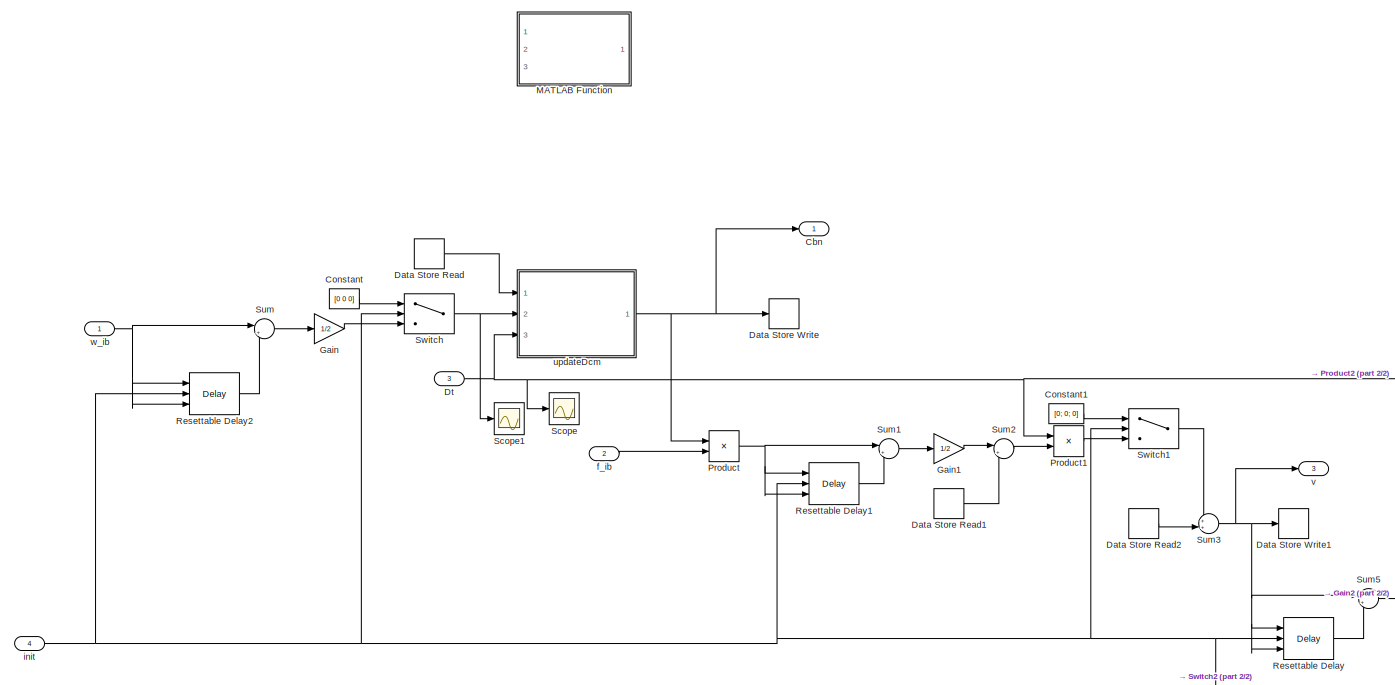
[diagram: simulatedData/uncomment for INS integration verification/INS - part 1/2, most of the canvas]
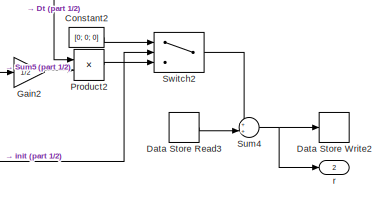
[diagram: simulatedData/uncomment for INS integration verification/INS - part 2/2, bottom right region]
BLOCK [SubSystem] simulatedData/uncomment for INS integration verification/INS
  Ports = [4, 3]
  Priority = 2
  RTWFcnNameOpts = Use subsystem name
  RTWSystemCode = Nonreusable function
  RequestExecContextInheritance = off
  TreatAsAtomicUnit = on
BLOCK [Outport] simulatedData/uncomment for INS integration verification/INS/Cbn
  IconDisplay = Port number
BLOCK [Constant] simulatedData/uncomment for INS integration verification/INS/Constant
  Value = [0 0 0]
BLOCK [Constant] simulatedData/uncomment for INS integration verification/INS/Constant1
  Value = [0; 0; 0]
  VectorParams1D = off
BLOCK [Constant] simulatedData/uncomment for INS integration verification/INS/Constant2
  Value = [0; 0; 0]
  VectorParams1D = off
BLOCK [DataStoreRead] simulatedData/uncomment for INS integration verification/INS/Data Store Read
  DataStoreName = Cbn
  Ports = [0, 1]
BLOCK [DataStoreRead] simulatedData/uncomment for INS integration verification/INS/Data Store Read1
  DataStoreName = gnav
  Ports = [0, 1]
BLOCK [DataStoreRead] simulatedData/uncomment for INS integration verification/INS/Data Store Read2
  DataStoreName = vnav
  Ports = [0, 1]
BLOCK [DataStoreRead] simulatedData/uncomment for INS integration verification/INS/Data Store Read3
  DataStoreName = rnav
  Ports = [0, 1]
BLOCK [DataStoreWrite] simulatedData/uncomment for INS integration verification/INS/Data Store Write
  DataStoreName = Cbn
  Ports = [1]
BLOCK [DataStoreWrite] simulatedData/uncomment for INS integration verification/INS/Data Store Write1
  DataStoreName = vnav
  Ports = [1]
BLOCK [DataStoreWrite] simulatedData/uncomment for INS integration verification/INS/Data Store Write2
  DataStoreName = rnav
  Ports = [1]
BLOCK [Inport] simulatedData/uncomment for INS integration verification/INS/Dt
  IconDisplay = Port number
  Port = 3
BLOCK [Gain] simulatedData/uncomment for INS integration verification/INS/Gain
  Gain = 1/2
  OutDataTypeStr = Inherit: Inherit via internal rule
  ParamDataTypeStr = Inherit: Inherit via internal rule
  SaturateOnIntegerOverflow = off
BLOCK [Gain] simulatedData/uncomment for INS integration verification/INS/Gain1
  Gain = 1/2
  OutDataTypeStr = Inherit: Inherit via internal rule
  ParamDataTypeStr = Inherit: Inherit via internal rule
  SaturateOnIntegerOverflow = off
BLOCK [Gain] simulatedData/uncomment for INS integration verification/INS/Gain2
  Gain = 1/2
  OutDataTypeStr = Inherit: Inherit via internal rule
  ParamDataTypeStr = Inherit: Inherit via internal rule
  SaturateOnIntegerOverflow = off
BLOCK [SubSystem] simulatedData/uncomment for INS integration verification/INS/MATLAB Function
  Commented = on
  ErrorFcn = Stateflow.Translate.translate
  PermitHierarchicalResolution = ExplicitOnly
  Ports = [3, 1]
  RequestExecContextInheritance = off
  SFBlockType = MATLAB Function
  TreatAsAtomicUnit = on
BLOCK [Demux] simulatedData/uncomment for INS integration verification/INS/MATLAB Function/ Demux 
  Outputs = 1
  Ports = [1, 1]
BLOCK [S-Function] simulatedData/uncomment for INS integration verification/INS/MATLAB Function/ SFunction 
  EnableBusSupport = on
  FunctionName = sf_sfun
  PortCounts = [3 2]
  Ports = [3, 2]
  SFcnIsStateOwnerBlock = off
  SFunctionDeploymentMode = off
  Tag = Stateflow S-Function simVINS 4
BLOCK [Terminator] simulatedData/uncomment for INS integration verification/INS/MATLAB Function/ Terminator 
BLOCK [Outport] simulatedData/uncomment for INS integration verification/INS/MATLAB Function/DCMbn_new
  IconDisplay = Port number
BLOCK [Inport] simulatedData/uncomment for INS integration verification/INS/MATLAB Function/DCMbn_old
  IconDisplay = Port number
BLOCK [Inport] simulatedData/uncomment for INS integration verification/INS/MATLAB Function/Dt
  IconDisplay = Port number
  Port = 3
BLOCK [Inport] simulatedData/uncomment for INS integration verification/INS/MATLAB Function/w
  IconDisplay = Port number
  Port = 2
BLOCK [Product] simulatedData/uncomment for INS integration verification/INS/Product
  InputSameDT = off
  Multiplication = Matrix(*)
  OutDataTypeStr = Inherit: Inherit via internal rule
  Ports = [2, 1]
  RndMeth = Floor
  SaturateOnIntegerOverflow = off
BLOCK [Product] simulatedData/uncomment for INS integration verification/INS/Product1
  InputSameDT = off
  OutDataTypeStr = Inherit: Inherit via internal rule
  Ports = [2, 1]
  RndMeth = Floor
  SaturateOnIntegerOverflow = off
BLOCK [Product] simulatedData/uncomment for INS integration verification/INS/Product2
  InputSameDT = off
  OutDataTypeStr = Inherit: Inherit via internal rule
  Ports = [2, 1]
  RndMeth = Floor
  SaturateOnIntegerOverflow = off
BLOCK [Delay] simulatedData/uncomment for INS integration verification/INS/Resettable Delay
  DelayLength = 1
  ExternalReset = Level hold
  InitialConditionSource = Input port
  InputPortMap = u0,r5,p4
  Ports = [3, 1]
BLOCK [Delay] simulatedData/uncomment for INS integration verification/INS/Resettable Delay1
  DelayLength = 1
  ExternalReset = Level hold
  InitialConditionSource = Input port
  InputPortMap = u0,r5,p4
  Ports = [3, 1]
BLOCK [Delay] simulatedData/uncomment for INS integration verification/INS/Resettable Delay2
  DelayLength = 1
  ExternalReset = Level hold
  InitialConditionSource = Input port
  InputPortMap = u0,r5,p4
  Ports = [3, 1]
BLOCK [Scope] simulatedData/uncomment for INS integration verification/INS/Scope
  Floating = off
  NumInputPorts = 1
  Ports = [1]
  ScopeSpecificationString = Simulink.scopes.TimeScopeBlockCfg('CurrentConfiguration', extmgr.ConfigurationSet(extmgr.Configuration('Core','General UI',true),extmgr.Configuration('Core','Source UI',true),extmgr.Configuration('Sources','WiredSimulink',true,'DataLoggingVariableName','ScopeData1'),extmgr.Configuration('Visuals','Time Domain',true,'SerializedDisplays',{struct('MinYLimReal','-0.00013','MaxYLimReal','0.00113','YLab...<+1405ch>
BLOCK [Scope] simulatedData/uncomment for INS integration verification/INS/Scope1
  Floating = off
  NumInputPorts = 1
  Ports = [1]
  ScopeSpecificationString = Simulink.scopes.TimeScopeBlockCfg('CurrentConfiguration', extmgr.ConfigurationSet(extmgr.Configuration('Core','General UI',true),extmgr.Configuration('Core','Source UI',true),extmgr.Configuration('Sources','WiredSimulink',true,'DataLoggingVariableName','ScopeData2'),extmgr.Configuration('Visuals','Time Domain',true,'SerializedDisplays',{struct('MinYLimReal','-4.89177','MaxYLimReal','3.89545','YLab...<+1433ch>
BLOCK [Sum] simulatedData/uncomment for INS integration verification/INS/Sum
  IconShape = round
  InputSameDT = off
  Inputs = |++
  OutDataTypeStr = Inherit: Inherit via internal rule
  Ports = [2, 1]
  SaturateOnIntegerOverflow = off
BLOCK [Sum] simulatedData/uncomment for INS integration verification/INS/Sum1
  IconShape = round
  InputSameDT = off
  Inputs = |++
  OutDataTypeStr = Inherit: Inherit via internal rule
  Ports = [2, 1]
  SaturateOnIntegerOverflow = off
BLOCK [Sum] simulatedData/uncomment for INS integration verification/INS/Sum2
  IconShape = round
  InputSameDT = off
  Inputs = |++
  OutDataTypeStr = Inherit: Inherit via internal rule
  Ports = [2, 1]
  SaturateOnIntegerOverflow = off
BLOCK [Sum] simulatedData/uncomment for INS integration verification/INS/Sum3
  IconShape = round
  InputSameDT = off
  Inputs = ++|
  OutDataTypeStr = Inherit: Inherit via internal rule
  Ports = [2, 1]
  SaturateOnIntegerOverflow = off
BLOCK [Sum] simulatedData/uncomment for INS integration verification/INS/Sum4
  IconShape = round
  InputSameDT = off
  Inputs = ++|
  OutDataTypeStr = Inherit: Inherit via internal rule
  Ports = [2, 1]
  SaturateOnIntegerOverflow = off
BLOCK [Sum] simulatedData/uncomment for INS integration verification/INS/Sum5
  IconShape = round
  InputSameDT = off
  Inputs = |++
  OutDataTypeStr = Inherit: Inherit via internal rule
  Ports = [2, 1]
  SaturateOnIntegerOverflow = off
BLOCK [Switch] simulatedData/uncomment for INS integration verification/INS/Switch
  Criteria = u2 > Threshold
  InputSameDT = off
  SaturateOnIntegerOverflow = off
BLOCK [Switch] simulatedData/uncomment for INS integration verification/INS/Switch1
  Criteria = u2 > Threshold
  InputSameDT = off
  SaturateOnIntegerOverflow = off
BLOCK [Switch] simulatedData/uncomment for INS integration verification/INS/Switch2
  Criteria = u2 > Threshold
  InputSameDT = off
  SaturateOnIntegerOverflow = off
BLOCK [Inport] simulatedData/uncomment for INS integration verification/INS/f_ib
  IconDisplay = Port number
  Port = 2
BLOCK [Inport] simulatedData/uncomment for INS integration verification/INS/init
  IconDisplay = Port number
  Port = 4
BLOCK [Outport] simulatedData/uncomment for INS integration verification/INS/r
  IconDisplay = Port number
  Port = 2
BLOCK [SubSystem] simulatedData/uncomment for INS integration verification/INS/updateDcm
  ErrorFcn = Stateflow.Translate.translate
  PermitHierarchicalResolution = ExplicitOnly
  Ports = [3, 1]
  RequestExecContextInheritance = off
  SFBlockType = MATLAB Function
  TreatAsAtomicUnit = on
BLOCK [Demux] simulatedData/uncomment for INS integration verification/INS/updateDcm/ Demux 
  Outputs = 1
  Ports = [1, 1]
BLOCK [S-Function] simulatedData/uncomment for INS integration verification/INS/updateDcm/ SFunction 
  EnableBusSupport = on
  FunctionName = sf_sfun
  PortCounts = [3 2]
  Ports = [3, 2]
  SFcnIsStateOwnerBlock = off
  SFunctionDeploymentMode = off
  Tag = Stateflow S-Function simVINS 1
BLOCK [Terminator] simulatedData/uncomment for INS integration verification/INS/updateDcm/ Terminator 
BLOCK [Inport] simulatedData/uncomment for INS integration verification/INS/updateDcm/Cbn
  IconDisplay = Port number
BLOCK [Outport] simulatedData/uncomment for INS integration verification/INS/updateDcm/Cbn_new
  IconDisplay = Port number
BLOCK [Inport] simulatedData/uncomment for INS integration verification/INS/updateDcm/dt
  IconDisplay = Port number
  Port = 3
BLOCK [Inport] simulatedData/uncomment for INS integration verification/INS/updateDcm/w
  IconDisplay = Port number
  Port = 2
BLOCK [Outport] simulatedData/uncomment for INS integration verification/INS/v
  IconDisplay = Port number
  Port = 3
BLOCK [Inport] simulatedData/uncomment for INS integration verification/INS/w_ib
  IconDisplay = Port number
BLOCK [SubSystem] simulatedData/uncomment for INS integration verification/MATLAB Function3
  ErrorFcn = Stateflow.Translate.translate
  PermitHierarchicalResolution = ExplicitOnly
  Ports = [1, 1]
  RequestExecContextInheritance = off
  SFBlockType = MATLAB Function
  TreatAsAtomicUnit = on
BLOCK [Demux] simulatedData/uncomment for INS integration verification/MATLAB Function3/ Demux 
  Outputs = 1
  Ports = [1, 1]
BLOCK [S-Function] simulatedData/uncomment for INS integration verification/MATLAB Function3/ SFunction 
  EnableBusSupport = on
  FunctionName = sf_sfun
  PortCounts = [1 2]
  Ports = [1, 2]
  SFcnIsStateOwnerBlock = off
  SFunctionDeploymentMode = off
  Tag = Stateflow S-Function simVINS 3
BLOCK [Terminator] simulatedData/uncomment for INS integration verification/MATLAB Function3/ Terminator 
BLOCK [Inport] simulatedData/uncomment for INS integration verification/MATLAB Function3/Cbn
  IconDisplay = Port number
BLOCK [Outport] simulatedData/uncomment for INS integration verification/MATLAB Function3/eul
  IconDisplay = Port number
BLOCK [Product] simulatedData/uncomment for INS integration verification/Matrix Multiply
  InputSameDT = off
  Multiplication = Matrix(*)
  OutDataTypeStr = Inherit: Inherit via internal rule
  Ports = [2, 1]
  RndMeth = Floor
  SaturateOnIntegerOverflow = off
BLOCK [Product] simulatedData/uncomment for INS integration verification/Matrix Multiply1
  InputSameDT = off
  Multiplication = Matrix(*)
  OutDataTypeStr = Inherit: Inherit via internal rule
  Ports = [2, 1]
  RndMeth = Floor
  SaturateOnIntegerOverflow = off
BLOCK [Product] simulatedData/uncomment for INS integration verification/Matrix Multiply2
  InputSameDT = off
  Multiplication = Matrix(*)
  OutDataTypeStr = Inherit: Inherit via internal rule
  Ports = [2, 1]
  RndMeth = Floor
  SaturateOnIntegerOverflow = off
BLOCK [PermuteDimensions] simulatedData/uncomment for INS integration verification/Permute Dimensions
BLOCK [Reshape] simulatedData/uncomment for INS integration verification/Reshape
  OutputDimensionality = Customize
  OutputDimensions = [3,3]
  Ports = [1, 1]
BLOCK [Scope] simulatedData/uncomment for INS integration verification/Scope
  Floating = off
  NumInputPorts = 1
  Ports = [1]
  ScopeSpecificationString = Simulink.scopes.TimeScopeBlockCfg('CurrentConfiguration', extmgr.ConfigurationSet(extmgr.Configuration('Core','General UI',true),extmgr.Configuration('Core','Source UI',true),extmgr.Configuration('Sources','WiredSimulink',true,'DataLoggingVariableName','ScopeData1'),extmgr.Configuration('Visuals','Time Domain',true,'SerializedDisplays',{struct('MinYLimReal','-0.000014','MaxYLimReal','0.000018','YL...<+1471ch>
BLOCK [Scope] simulatedData/uncomment for INS integration verification/Scope1
  Floating = off
  NumInputPorts = 1
  Ports = [1]
  ScopeSpecificationString = Simulink.scopes.TimeScopeBlockCfg('CurrentConfiguration', extmgr.ConfigurationSet(extmgr.Configuration('Core','General UI',true),extmgr.Configuration('Core','Source UI',true),extmgr.Configuration('Sources','WiredSimulink',true,'DataLoggingVariableName','ScopeData2'),extmgr.Configuration('Visuals','Time Domain',true,'SerializedDisplays',{struct('MinYLimReal','-1144.66378','MaxYLimReal','271.77809',...<+1447ch>
BLOCK [Scope] simulatedData/uncomment for INS integration verification/Scope2
  Floating = off
  NumInputPorts = 1
  Ports = [1]
  ScopeSpecificationString = Simulink.scopes.TimeScopeBlockCfg('CurrentConfiguration', extmgr.ConfigurationSet(extmgr.Configuration('Core','General UI',true),extmgr.Configuration('Core','Source UI',true),extmgr.Configuration('Sources','WiredSimulink',true,'DataLoggingVariableName','ScopeData3'),extmgr.Configuration('Visuals','Time Domain',true,'SerializedDisplays',{struct('MinYLimReal','-68.05581','MaxYLimReal','87.87066','YL...<+1433ch>
BLOCK [Scope] simulatedData/uncomment for INS integration verification/Scope3
  Floating = off
  NumInputPorts = 1
  Ports = [1]
  ScopeSpecificationString = Simulink.scopes.TimeScopeBlockCfg('CurrentConfiguration', extmgr.ConfigurationSet(extmgr.Configuration('Core','General UI',true),extmgr.Configuration('Core','Source UI',true),extmgr.Configuration('Sources','WiredSimulink',true,'DataLoggingVariableName','ScopeData1'),extmgr.Configuration('Visuals','Time Domain',true,'SerializedDisplays',{struct('MinYLimReal','-1.51396','MaxYLimReal','3.47834','YLab...<+1436ch>
BLOCK [Scope] simulatedData/uncomment for INS integration verification/Scope4
  Floating = off
  NumInputPorts = 1
  Ports = [1]
  ScopeSpecificationString = Simulink.scopes.TimeScopeBlockCfg('CurrentConfiguration', extmgr.ConfigurationSet(extmgr.Configuration('Core','General UI',true),extmgr.Configuration('Core','Source UI',true),extmgr.Configuration('Sources','WiredSimulink',true,'DataLoggingVariableName','ScopeData2'),extmgr.Configuration('Visuals','Time Domain',true,'SerializedDisplays',{struct('MinYLimReal','-0.85487','MaxYLimReal','1.03294','YLab...<+1424ch>
BLOCK [Scope] simulatedData/uncomment for INS integration verification/Scope5
  Floating = off
  NumInputPorts = 1
  Ports = [1]
  ScopeSpecificationString = Simulink.scopes.TimeScopeBlockCfg('CurrentConfiguration', extmgr.ConfigurationSet(extmgr.Configuration('Core','General UI',true),extmgr.Configuration('Core','Source UI',true),extmgr.Configuration('Sources','WiredSimulink',true,'DataLoggingVariableName','ScopeData3'),extmgr.Configuration('Visuals','Time Domain',true,'SerializedDisplays',{struct('MinYLimReal','-1.12905','MaxYLimReal','0.91561','YLab...<+1424ch>
BLOCK [Scope] simulatedData/uncomment for INS integration verification/Scope6
  Floating = off
  NumInputPorts = 1
  Ports = [1]
  ScopeSpecificationString = Simulink.scopes.TimeScopeBlockCfg('CurrentConfiguration', extmgr.ConfigurationSet(extmgr.Configuration('Core','General UI',true),extmgr.Configuration('Core','Source UI',true),extmgr.Configuration('Sources','WiredSimulink',true,'DataLoggingVariableName','ScopeData4'),extmgr.Configuration('Visuals','Time Domain',true,'SerializedDisplays',{struct('MinYLimReal','-3.80017','MaxYLimReal','3.51209','YLab...<+1436ch>
BLOCK [Scope] simulatedData/uncomment for INS integration verification/Scope7
  Floating = off
  NumInputPorts = 1
  Ports = [1]
  ScopeSpecificationString = Simulink.scopes.TimeScopeBlockCfg('CurrentConfiguration', extmgr.ConfigurationSet(extmgr.Configuration('Core','General UI',true),extmgr.Configuration('Core','Source UI',true),extmgr.Configuration('Sources','WiredSimulink',true,'DataLoggingVariableName','ScopeData5'),extmgr.Configuration('Visuals','Time Domain',true,'SerializedDisplays',{struct('MinYLimReal','-20.07331','MaxYLimReal','10.42688','YL...<+1442ch>
BLOCK [Scope] simulatedData/uncomment for INS integration verification/Scope8
  Floating = off
  NumInputPorts = 1
  Ports = [1]
  ScopeSpecificationString = Simulink.scopes.TimeScopeBlockCfg('CurrentConfiguration', extmgr.ConfigurationSet(extmgr.Configuration('Core','General UI',true),extmgr.Configuration('Core','Source UI',true),extmgr.Configuration('Sources','WiredSimulink',true,'DataLoggingVariableName','ScopeData4'),extmgr.Configuration('Visuals','Time Domain',true,'SerializedDisplays',{struct('MinYLimReal','-0.00025','MaxYLimReal','0.00225','YLab...<+1409ch>
BLOCK [Sum] simulatedData/uncomment for INS integration verification/Sum1
  IconShape = round
  InputSameDT = off
  Inputs = -+|
  OutDataTypeStr = Inherit: Inherit via internal rule
  Ports = [2, 1]
  SaturateOnIntegerOverflow = off
BLOCK [Sum] simulatedData/uncomment for INS integration verification/Sum2
  IconShape = round
  InputSameDT = off
  Inputs = -+|
  OutDataTypeStr = Inherit: Inherit via internal rule
  Ports = [2, 1]
  SaturateOnIntegerOverflow = off
BLOCK [Sum] simulatedData/uncomment for INS integration verification/Sum3
  IconShape = round
  InputSameDT = off
  Inputs = ++|
  OutDataTypeStr = Inherit: Inherit via internal rule
  Ports = [2, 1]
  SaturateOnIntegerOverflow = off
BLOCK [Sum] simulatedData/uncomment for INS integration verification/Sum4
  IconShape = round
  InputSameDT = off
  Inputs = ++|
  OutDataTypeStr = Inherit: Inherit via internal rule
  Ports = [2, 1]
  SaturateOnIntegerOverflow = off
BLOCK [UnitDelay] simulatedData/uncomment for INS integration verification/Unit Delay
  InitialCondition = 1
  InputProcessing = Elements as channels (sample based)
  SampleTime = -1
BLOCK [SubSystem] simulatedData/uncomment for INS integration verification/calcDt
  Ports = [1, 1]
  RequestExecContextInheritance = off
BLOCK [Constant] simulatedData/uncomment for INS integration verification/calcDt/Constant
  Value = 0
BLOCK [Constant] simulatedData/uncomment for INS integration verification/calcDt/Constant10
BLOCK [Reference] simulatedData/uncomment for INS integration verification/calcDt/Difference  REF=simulink/Discrete/Difference
  Ports = [1, 1]
  SourceBlock = simulink/Discrete/Difference
  SourceProductBaseCode = SL
  SourceProductName = Simulink
  SourceType = Difference
BLOCK [Outport] simulatedData/uncomment for INS integration verification/calcDt/Dt
  IconDisplay = Port number
BLOCK [Switch] simulatedData/uncomment for INS integration verification/calcDt/Switch
  Criteria = u2 > Threshold
  InputSameDT = off
  SaturateOnIntegerOverflow = off
BLOCK [UnitDelay] simulatedData/uncomment for INS integration verification/calcDt/Unit Delay
  InputProcessing = Elements as channels (sample based)
  SampleTime = -1
BLOCK [Inport] simulatedData/uncomment for INS integration verification/calcDt/t
  IconDisplay = Port number
BLOCK [Inport] simulatedData/uncomment for INS integration verification/gyroAccelT
  IconDisplay = Port number
BLOCK [SubSystem] simulatedData/uncomment for INS integration verification/setInitialInsStates
  Ports = [4, 1, 1]
  Priority = 1
  RequestExecContextInheritance = off
  TreatAsAtomicUnit = on
BLOCK [Inport] simulatedData/uncomment for INS integration verification/setInitialInsStates/Cbn
  IconDisplay = Port number
  Port = 3
BLOCK [Constant] simulatedData/uncomment for INS integration verification/setInitialInsStates/Constant
  Value = imuLocationMm/1000
BLOCK [Reference] simulatedData/uncomment for INS integration verification/setInitialInsStates/Cross Product  REF=vrlib/Utilities/Cross Product
  Ports = [2, 1]
  SourceBlock = vrlib/Utilities/Cross Product
  SourceProductBaseCode = VR
  SourceProductName = Simulink 3D Animation
  SourceType = Cross Product
BLOCK [DataStoreWrite] simulatedData/uncomment for INS integration verification/setInitialInsStates/Data Store Write2
  DataStoreName = vnav
  Ports = [1]
BLOCK [DataStoreWrite] simulatedData/uncomment for INS integration verification/setInitialInsStates/Data Store Write3
  DataStoreName = rnav
  Ports = [1]
BLOCK [DataStoreWrite] simulatedData/uncomment for INS integration verification/setInitialInsStates/Data Store Write8
  DataStoreName = Cbn
  Ports = [1]
BLOCK [EnablePort] simulatedData/uncomment for INS integration verification/setInitialInsStates/Enable
  Ports = [0, 1]
  ShowOutputPort = on
BLOCK [Gain] simulatedData/uncomment for INS integration verification/setInitialInsStates/Gain
  Gain = -1
  OutDataTypeStr = Inherit: Inherit via internal rule
  ParamDataTypeStr = Inherit: Inherit via internal rule
  SaturateOnIntegerOverflow = off
BLOCK [Product] simulatedData/uncomment for INS integration verification/setInitialInsStates/Matrix Multiply
  InputSameDT = off
  Multiplication = Matrix(*)
  OutDataTypeStr = Inherit: Inherit via internal rule
  Ports = [2, 1]
  RndMeth = Floor
  SaturateOnIntegerOverflow = off
BLOCK [Product] simulatedData/uncomment for INS integration verification/setInitialInsStates/Matrix Multiply1
  InputSameDT = off
  Multiplication = Matrix(*)
  OutDataTypeStr = Inherit: Inherit via internal rule
  Ports = [2, 1]
  RndMeth = Floor
  SaturateOnIntegerOverflow = off
BLOCK [Outport] simulatedData/uncomment for INS integration verification/setInitialInsStates/Out1
  IconDisplay = Port number
  InitialOutput = false
  OutputWhenDisabled = reset
BLOCK [Sum] simulatedData/uncomment for INS integration verification/setInitialInsStates/Sum
  IconShape = round
  InputSameDT = off
  Inputs = ++|
  OutDataTypeStr = Inherit: Inherit via internal rule
  Ports = [2, 1]
  SaturateOnIntegerOverflow = off
BLOCK [Sum] simulatedData/uncomment for INS integration verification/setInitialInsStates/Sum1
  IconShape = round
  InputSameDT = off
  Inputs = ++|
  OutDataTypeStr = Inherit: Inherit via internal rule
  Ports = [2, 1]
  SaturateOnIntegerOverflow = off
BLOCK [Inport] simulatedData/uncomment for INS integration verification/setInitialInsStates/omega
  IconDisplay = Port number
  Port = 4
BLOCK [Inport] simulatedData/uncomment for INS integration verification/setInitialInsStates/rnav
  IconDisplay = Port number
BLOCK [Inport] simulatedData/uncomment for INS integration verification/setInitialInsStates/vnav
  IconDisplay = Port number
  Port = 2
BLOCK [Inport] simulatedData/uncomment for INS integration verification/truthTrajectory
  IconDisplay = Port number
  Port = 2
ANNOTATION (root): % <copyright redacted>
ANNOTATION (root): benchmarkReport
ANNOTATION (root): calibrateSFMA = false; modelDef=getModelDef(calibrateSFMA); imuPar = getImuPar('lmvpCalibrated');
ANNOTATION (root): calibrateSFMA = true; modelDef=getModelDef(calibrateSFMA); imuPar = getImuPar('lmvpUncalibrated');
ANNOTATION (root): first pass
ANNOTATION (root): imuLocationMm = [-17.48; -4.5; 2.539]; %LMVP
ANNOTATION (root): imuLocationMm = [-22.45, -4.5, -1.6]; %Rigel with dead bugged IMU
ANNOTATION (root): imuLocationMm = [0; 0; 0];
ANNOTATION (root): imuLocationMm = [100; 0; 0];
ANNOTATION (root): imuLocationMm = [6; -4.5; -16.8]; %Rigel with IMU board
ANNOTATION (root): lmvp3rdPassPerfectSfmas
ANNOTATION (root): lmvpCalibrated
ANNOTATION (root): lmvpPerfectSfmas
ANNOTATION (root): load vins_data and images (384x384)
ANNOTATION (root): load vins_data and images (800x800)
ANNOTATION (root): plotAccelSFMA
ANNOTATION (root): plotGyroSFMA
ANNOTATION (root): plotPosVel
ANNOTATION (root): plotPose
ANNOTATION (root): plotRot
ANNOTATION (root): second pass
ANNOTATION (root): select and load imudata.txt file
ANNOTATION (root): select and load truthTrajectory.mat file
ANNOTATION (root): select and load vins_data and features
ANNOTATION (root): select and load vins_data.txt file
ANNOTATION (root): third pass
ANNOTATION readFromFile/apply json calibration: if there is a .json file in the directory where imudata.txt file had been stored, it gets parsed during file load to produce the homogeneous 3x4 matrices Hgyro and Haccel. If not, these are set to identity with no biases so that they don't do anything.
ANNOTATION simulatedData: truthTrajectory is motion of the camera device frame with origin halfway between two lenses. VINS tracking is done in body frame of IMU, which is offset by imuLocationMm, but output is converted to device frame.
ANNOTATION simulatedData/simulateImuErrors/triad error: the noise in Dtheta is ARW*randn*sqrt(Dt). Therefore the noise in omega is ARW*randn/sqrt(Dt).
ANNOTATION simulatedData/simulateImuErrors/triad error1: the noise in Dtheta is ARW*randn*sqrt(Dt). Therefore the noise in omega is ARW*randn/sqrt(Dt).
NET Constant:1 -> Logical Operator:1, Switch1:2, Switch2:2, Switch3:2, Switch:2, simulatedData:enable
LINE Logical Operator:1 -> readFromFile:enable
LINE Switch1:1 -> formImuPacket:1
LINE Switch2:1 -> VINS:1
LINE Switch3:1 -> VINS:2
LINE Switch:1 -> formImuPacket:2
LINE VINS:1 -> To Workspace:1
LINE formImuPacket/Bus Creator:1 -> formImuPacket/imuSample:1
NET formImuPacket/Compare To Constant:1 -> formImuPacket/Logical Operator1:1, formImuPacket/Logical Operator:1
LINE formImuPacket/Constant1:1 -> formImuPacket/Switch:3
LINE formImuPacket/Constant3:1 -> formImuPacket/Switch1:3
NET formImuPacket/Data Type Conversion1:1 -> formImuPacket/Bus Creator:2, formImuPacket/Scope2:1
LINE formImuPacket/Data Type Conversion2:1 -> formImuPacket/Bus Creator:6
LINE formImuPacket/Data Type Conversion3:1 -> formImuPacket/Bus Creator:8
NET formImuPacket/Data Type Conversion:1 -> formImuPacket/Bus Creator:1, formImuPacket/Scope4:1
LINE formImuPacket/Demux1:1 -> formImuPacket/Compare To Constant:1
LINE formImuPacket/Demux1:2 -> formImuPacket/Logical Operator:2
LINE formImuPacket/Demux1:3 -> formImuPacket/Switch:1
LINE formImuPacket/Demux1:4 -> formImuPacket/Logical Operator1:2
LINE formImuPacket/Demux1:5 -> formImuPacket/Switch1:1
LINE formImuPacket/Demux:1 -> formImuPacket/Data Type Conversion:1
LINE formImuPacket/Demux:2 -> formImuPacket/Data Type Conversion1:1
NET formImuPacket/Demux:3 -> formImuPacket/Gain2:1, formImuPacket/Scope3:1
LINE formImuPacket/Gain2:1 -> formImuPacket/Bus Creator:3
NET formImuPacket/Logical Operator1:1 -> formImuPacket/Bus Creator:7, formImuPacket/Switch1:2
NET formImuPacket/Logical Operator:1 -> formImuPacket/Bus Creator:5, formImuPacket/Switch:2
LINE formImuPacket/Switch1:1 -> formImuPacket/Data Type Conversion3:1
LINE formImuPacket/Switch:1 -> formImuPacket/Data Type Conversion2:1
LINE formImuPacket/gyroAccelT:1 -> formImuPacket/Demux:1
LINE formImuPacket/jumpToXyzYaw:1 -> formImuPacket/Demux1:1
LINE formImuPacket/tstamp_vidcap:1 -> formImuPacket/Bus Creator:4
LINE formImuPacket:1 -> VINS:3
LINE readFromFile/Bus Creator1:1 -> readFromFile/images:1
LINE readFromFile/Bus Creator2:1 -> readFromFile/features:1
LINE readFromFile/Compare To Constant:1 -> readFromFile/Logical Operator2:1
LINE readFromFile/Constant1:1 -> readFromFile/Logical Operator1:2
LINE readFromFile/Constant:1 -> readFromFile/Logical Operator:2
LINE readFromFile/Counter:1 -> readFromFile/printTime:enable
LINE readFromFile/Data Type Conversion:1 -> readFromFile/apply json calibration:1
LINE readFromFile/Logical Operator1:1 -> readFromFile/fetchFeatures:enable
LINE readFromFile/Logical Operator2:1 -> readFromFile/Bus Creator2:1
LINE readFromFile/Logical Operator:1 -> readFromFile/fetchImages:enable
LINE readFromFile/OR:1 -> readFromFile/Logical Operator:1
LINE readFromFile/Reshape:1 -> readFromFile/Data Type Conversion:1
LINE readFromFile/apply json calibration/Constant1:1 -> readFromFile/apply json calibration/Product1:1
LINE readFromFile/apply json calibration/Constant:1 -> readFromFile/apply json calibration/Product:1
LINE readFromFile/apply json calibration/Demux:1 -> readFromFile/apply json calibration/Reshape:1
LINE readFromFile/apply json calibration/Demux:2 -> readFromFile/apply json calibration/Reshape1:1
LINE readFromFile/apply json calibration/Demux:3 -> readFromFile/apply json calibration/Mux:3
LINE readFromFile/apply json calibration/In1:1 -> readFromFile/apply json calibration/Demux:1
LINE readFromFile/apply json calibration/Mux:1 -> readFromFile/apply json calibration/Out1:1
LINE readFromFile/apply json calibration/Product1:1 -> readFromFile/apply json calibration/Mux:2
LINE readFromFile/apply json calibration/Product:1 -> readFromFile/apply json calibration/Mux:1
LINE readFromFile/apply json calibration/Reshape1:1 -> readFromFile/apply json calibration/add a 1 as fourth element for homogeneous multiply1:1
LINE readFromFile/apply json calibration/Reshape:1 -> readFromFile/apply json calibration/add a 1 as fourth element for homogeneous multiply:1
LINE readFromFile/apply json calibration/add a 1 as fourth element for homogeneous multiply1:1 -> readFromFile/apply json calibration/Product1:2
LINE readFromFile/apply json calibration/add a 1 as fourth element for homogeneous multiply:1 -> readFromFile/apply json calibration/Product:2
LINE readFromFile/apply json calibration:1 -> readFromFile/gyroAccelsTstamp:1
LINE readFromFile/fetchFeatures/Constant:1 -> readFromFile/fetchFeatures/MATLAB Function:2
NET readFromFile/fetchFeatures/MATLAB Function:1 -> readFromFile/fetchFeatures/Display1:1, readFromFile/fetchFeatures/nPoints:1
LINE readFromFile/fetchFeatures/MATLAB Function:2 -> readFromFile/fetchFeatures/IDs:1
LINE readFromFile/fetchFeatures/MATLAB Function:3 -> readFromFile/fetchFeatures/left:1
LINE readFromFile/fetchFeatures/MATLAB Function:4 -> readFromFile/fetchFeatures/right:1
LINE readFromFile/fetchFeatures/MATLAB Function:5 -> readFromFile/fetchFeatures/xyz:1
LINE readFromFile/fetchFeatures/getImgNum/Constant:1 -> readFromFile/fetchFeatures/getImgNum/Relational Operator:2
LINE readFromFile/fetchFeatures/getImgNum/Gain:1 -> readFromFile/fetchFeatures/getImgNum/Manual Switch:2
NET readFromFile/fetchFeatures/getImgNum/Manual Switch:1 -> readFromFile/fetchFeatures/getImgNum/Relational Operator:1, readFromFile/fetchFeatures/getImgNum/Scope1:1
LINE readFromFile/fetchFeatures/getImgNum/Maximum:1 -> readFromFile/fetchFeatures/getImgNum/imgFound:1
NET readFromFile/fetchFeatures/getImgNum/Maximum:2 -> readFromFile/fetchFeatures/getImgNum/Scope:1, readFromFile/fetchFeatures/getImgNum/imgNum:1
LINE readFromFile/fetchFeatures/getImgNum/Relational Operator:1 -> readFromFile/fetchFeatures/getImgNum/Maximum:1
NET readFromFile/fetchFeatures/getImgNum/t_us:1 -> readFromFile/fetchFeatures/getImgNum/Gain:1, readFromFile/fetchFeatures/getImgNum/Manual Switch:1
NET readFromFile/fetchFeatures/getImgNum:1 -> readFromFile/fetchFeatures/MATLAB Function:1, readFromFile/fetchFeatures/Scope:1
LINE readFromFile/fetchFeatures/getImgNum:2 -> readFromFile/fetchFeatures/imgFound:1
NET readFromFile/fetchFeatures/t_us:1 -> readFromFile/fetchFeatures/getImgNum:1, readFromFile/fetchFeatures/tstamp_us:1
LINE readFromFile/fetchFeatures:1 -> readFromFile/Logical Operator2:2
LINE readFromFile/fetchFeatures:2 -> readFromFile/Bus Creator2:2
LINE readFromFile/fetchFeatures:3 -> readFromFile/Bus Creator2:3
LINE readFromFile/fetchFeatures:4 -> readFromFile/Bus Creator2:4
LINE readFromFile/fetchFeatures:5 -> readFromFile/Bus Creator2:5
NET readFromFile/fetchFeatures:6 -> readFromFile/Bus Creator2:6, readFromFile/Compare To Constant:1
LINE readFromFile/fetchFeatures:7 -> readFromFile/Bus Creator2:7
LINE readFromFile/fetchImages/Constant:1 -> readFromFile/fetchImages/MATLAB Function:2
LINE readFromFile/fetchImages/MATLAB Function:1 -> readFromFile/fetchImages/left:1
LINE readFromFile/fetchImages/MATLAB Function:2 -> readFromFile/fetchImages/right:1
LINE readFromFile/fetchImages/getImgNum/Constant:1 -> readFromFile/fetchImages/getImgNum/Relational Operator:2
LINE readFromFile/fetchImages/getImgNum/Gain:1 -> readFromFile/fetchImages/getImgNum/Manual Switch:2
NET readFromFile/fetchImages/getImgNum/Manual Switch:1 -> readFromFile/fetchImages/getImgNum/Relational Operator:1, readFromFile/fetchImages/getImgNum/Scope1:1
LINE readFromFile/fetchImages/getImgNum/Maximum:1 -> readFromFile/fetchImages/getImgNum/imgFound:1
NET readFromFile/fetchImages/getImgNum/Maximum:2 -> readFromFile/fetchImages/getImgNum/Scope:1, readFromFile/fetchImages/getImgNum/imgNum:1
LINE readFromFile/fetchImages/getImgNum/Relational Operator:1 -> readFromFile/fetchImages/getImgNum/Maximum:1
NET readFromFile/fetchImages/getImgNum/t_us:1 -> readFromFile/fetchImages/getImgNum/Gain:1, readFromFile/fetchImages/getImgNum/Manual Switch:1
NET readFromFile/fetchImages/getImgNum:1 -> readFromFile/fetchImages/MATLAB Function:1, readFromFile/fetchImages/Scope:1
LINE readFromFile/fetchImages/getImgNum:2 -> readFromFile/fetchImages/imgFound:1
NET readFromFile/fetchImages/t_us:1 -> readFromFile/fetchImages/getImgNum:1, readFromFile/fetchImages/tstamp_us:1
LINE readFromFile/fetchImages:1 -> readFromFile/Bus Creator1:1
LINE readFromFile/fetchImages:2 -> readFromFile/Bus Creator1:2
LINE readFromFile/fetchImages:3 -> readFromFile/Bus Creator1:3
LINE readFromFile/fetchImages:4 -> readFromFile/Bus Creator1:4
LINE readFromFile/formatAsRpuBus/Bus Creator:1 -> readFromFile/formatAsRpuBus/relativePoseUpdate:1
LINE readFromFile/formatAsRpuBus/C_2_1:1 -> readFromFile/formatAsRpuBus/Reshape1:1
NET readFromFile/formatAsRpuBus/Data Type Conversion1:1 -> readFromFile/formatAsRpuBus/Bus Creator:1, readFromFile/formatAsRpuBus/Scope:1
NET readFromFile/formatAsRpuBus/Data Type Conversion2:1 -> readFromFile/formatAsRpuBus/Bus Creator:2, readFromFile/formatAsRpuBus/Scope1:1, readFromFile/formatAsRpuBus/Sum:1
NET readFromFile/formatAsRpuBus/Data Type Conversion3:1 -> readFromFile/formatAsRpuBus/Bus Creator:3, readFromFile/formatAsRpuBus/Scope2:1, readFromFile/formatAsRpuBus/Sum:2
NET readFromFile/formatAsRpuBus/Data Type Conversion4:1 -> readFromFile/formatAsRpuBus/Bus Creator:4, readFromFile/formatAsRpuBus/Scope3:1
NET readFromFile/formatAsRpuBus/Data Type Conversion5:1 -> readFromFile/formatAsRpuBus/Bus Creator:5, readFromFile/formatAsRpuBus/Scope4:1
NET readFromFile/formatAsRpuBus/Data Type Conversion9:1 -> readFromFile/formatAsRpuBus/Bus Creator:6, readFromFile/formatAsRpuBus/Scope5:1
LINE readFromFile/formatAsRpuBus/Reshape1:1 -> readFromFile/formatAsRpuBus/temporary because logging is transposed:1
LINE readFromFile/formatAsRpuBus/Reshape2:1 -> readFromFile/formatAsRpuBus/Data Type Conversion9:1
LINE readFromFile/formatAsRpuBus/Sum:1 -> readFromFile/formatAsRpuBus/Scope6:1
LINE readFromFile/formatAsRpuBus/covariance:1 -> readFromFile/formatAsRpuBus/Reshape2:1
LINE readFromFile/formatAsRpuBus/doRelPoseUpdate:1 -> readFromFile/formatAsRpuBus/Data Type Conversion1:1
LINE readFromFile/formatAsRpuBus/frm1 tstamp:1 -> readFromFile/formatAsRpuBus/Data Type Conversion2:1
NET readFromFile/formatAsRpuBus/frm2 tstamp:1 -> readFromFile/formatAsRpuBus/Data Type Conversion3:1, readFromFile/formatAsRpuBus/frame2 tstamp:1
LINE readFromFile/formatAsRpuBus/mm to m:1 -> readFromFile/formatAsRpuBus/Data Type Conversion4:1
LINE readFromFile/formatAsRpuBus/r_12_1:1 -> readFromFile/formatAsRpuBus/mm to m:1
NET readFromFile/formatAsRpuBus/rpuLineRaw:1 -> readFromFile/formatAsRpuBus/C_2_1:1, readFromFile/formatAsRpuBus/covariance:1, readFromFile/formatAsRpuBus/doRelPoseUpdate:1, readFromFile/formatAsRpuBus/frm1 tstamp:1, readFromFile/formatAsRpuBus/frm2 tstamp:1, readFromFile/formatAsRpuBus/r_12_1:1
LINE readFromFile/formatAsRpuBus/temporary because logging is transposed:1 -> readFromFile/formatAsRpuBus/Data Type Conversion5:1
NET readFromFile/formatAsRpuBus1/ tstamp:1 -> readFromFile/formatAsRpuBus1/Data Type Conversion2:1, readFromFile/formatAsRpuBus1/vidcap tstamp:1
LINE readFromFile/formatAsRpuBus1/Bus Creator:1 -> readFromFile/formatAsRpuBus1/absolutePoseUpdate:1
LINE readFromFile/formatAsRpuBus1/C_2_1:1 -> readFromFile/formatAsRpuBus1/Reshape1:1
NET readFromFile/formatAsRpuBus1/Data Type Conversion1:1 -> readFromFile/formatAsRpuBus1/Bus Creator:1, readFromFile/formatAsRpuBus1/Scope:1
NET readFromFile/formatAsRpuBus1/Data Type Conversion2:1 -> readFromFile/formatAsRpuBus1/Bus Creator:2, readFromFile/formatAsRpuBus1/Scope1:1
NET readFromFile/formatAsRpuBus1/Data Type Conversion4:1 -> readFromFile/formatAsRpuBus1/Bus Creator:3, readFromFile/formatAsRpuBus1/Scope3:1
NET readFromFile/formatAsRpuBus1/Data Type Conversion5:1 -> readFromFile/formatAsRpuBus1/Bus Creator:4, readFromFile/formatAsRpuBus1/Scope4:1
NET readFromFile/formatAsRpuBus1/Data Type Conversion9:1 -> readFromFile/formatAsRpuBus1/Bus Creator:5, readFromFile/formatAsRpuBus1/Scope5:1
LINE readFromFile/formatAsRpuBus1/Reshape1:1 -> readFromFile/formatAsRpuBus1/temporary because logging is transposed:1
LINE readFromFile/formatAsRpuBus1/Reshape2:1 -> readFromFile/formatAsRpuBus1/Data Type Conversion9:1
NET readFromFile/formatAsRpuBus1/apuLineRaw:1 -> readFromFile/formatAsRpuBus1/ tstamp:1, readFromFile/formatAsRpuBus1/C_2_1:1, readFromFile/formatAsRpuBus1/covariance:1, readFromFile/formatAsRpuBus1/doRelPoseUpdate:1, readFromFile/formatAsRpuBus1/r_12_1:1
LINE readFromFile/formatAsRpuBus1/covariance:1 -> readFromFile/formatAsRpuBus1/Reshape2:1
LINE readFromFile/formatAsRpuBus1/doRelPoseUpdate:1 -> readFromFile/formatAsRpuBus1/Data Type Conversion1:1
LINE readFromFile/formatAsRpuBus1/mm to m:1 -> readFromFile/formatAsRpuBus1/Data Type Conversion4:1
LINE readFromFile/formatAsRpuBus1/r_12_1:1 -> readFromFile/formatAsRpuBus1/mm to m:1
LINE readFromFile/formatAsRpuBus1/temporary because logging is transposed:1 -> readFromFile/formatAsRpuBus1/Data Type Conversion5:1
LINE readFromFile/formatAsRpuBus1:1 -> readFromFile/absolutePoseUpdate:1
LINE readFromFile/formatAsRpuBus1:2 -> readFromFile/OR:2
LINE readFromFile/formatAsRpuBus:1 -> readFromFile/relativePoseUpdate:1
NET readFromFile/formatAsRpuBus:2 -> readFromFile/Logical Operator1:1, readFromFile/OR:1, readFromFile/fetchFeatures:1, readFromFile/fetchImages:1
LINE readFromFile/printTime/Digital Clock:1 -> readFromFile/printTime/MATLAB Function:1
NET readFromFile/readVinsData/C++ S-function:1 -> readFromFile/readVinsData/accels:1, readFromFile/readVinsData/gyros:1, readFromFile/readVinsData/t_us:1, readFromFile/readVinsData/vidcap_tstamp:1
LINE readFromFile/readVinsData/C++ S-function:2 -> readFromFile/readVinsData/rpuLineRaw:1
LINE readFromFile/readVinsData/C++ S-function:3 -> readFromFile/readVinsData/resetXyzhLineRaw:1
LINE readFromFile/readVinsData/C++ S-function:4 -> readFromFile/readVinsData/apuLineRaw:1
NET readFromFile/readVinsData/C++ S-function:5 -> readFromFile/readVinsData/EOF:1, readFromFile/readVinsData/avoid sending garbage on the last row:2
LINE readFromFile/readVinsData/Gain:1 -> readFromFile/readVinsData/Mux:3
NET readFromFile/readVinsData/Mux:1 -> readFromFile/readVinsData/Unit Delay:1, readFromFile/readVinsData/avoid sending garbage on the last row:3
LINE readFromFile/readVinsData/Unit Delay:1 -> readFromFile/readVinsData/avoid sending garbage on the last row:1
LINE readFromFile/readVinsData/accels:1 -> readFromFile/readVinsData/Mux:2
LINE readFromFile/readVinsData/avoid sending garbage on the last row:1 -> readFromFile/readVinsData/GyrosAccelsTstamp:1
LINE readFromFile/readVinsData/gyros:1 -> readFromFile/readVinsData/Mux:1
LINE readFromFile/readVinsData/t_us:1 -> readFromFile/readVinsData/Gain:1
LINE readFromFile/readVinsData/vidcap_tstamp:1 -> readFromFile/readVinsData/vidcap_tstamp_us:1
LINE readFromFile/readVinsData:1 -> readFromFile/Reshape:1
LINE readFromFile/readVinsData:2 -> readFromFile/Stop Simulation:1
LINE readFromFile/readVinsData:3 -> readFromFile/tstamp_vidcap_us:1
LINE readFromFile/readVinsData:4 -> readFromFile/formatAsRpuBus:1
LINE readFromFile/readVinsData:5 -> readFromFile/resetXyzh:1
LINE readFromFile/readVinsData:6 -> readFromFile/formatAsRpuBus1:1
LINE readFromFile:1 -> Switch:3
LINE readFromFile:2 -> Switch2:3
LINE readFromFile:3 -> Switch1:3
LINE readFromFile:4 -> formImuPacket:3
LINE readFromFile:6 -> Switch3:3
NET simVisionSystem/Bias:1 -> simVisionSystem/Matrix Multiply2:1, simVisionSystem/Matrix Multiply3:1
LINE simVisionSystem/Bus Creator1:1 -> simVisionSystem/absolutePoseUpdate:1
NET simVisionSystem/Bus Creator:1 -> simVisionSystem/relativePoseUpdate:1, simVisionSystem/uncomment and set zero noise and noOverlap for verification:2
NET simVisionSystem/Bus Selector:1 -> simVisionSystem/Sum1:1, simVisionSystem/Sum:1, simVisionSystem/captureFrame:1
NET simVisionSystem/Bus Selector:2 -> simVisionSystem/Scope2:1, simVisionSystem/captureFrame:2
LINE simVisionSystem/Bus Selector:3 -> simVisionSystem/Reshape:1
LINE simVisionSystem/Constant1:1 -> simVisionSystem/Manual Switch:1
LINE simVisionSystem/Constant2:1 -> simVisionSystem/Manual Switch1:1
LINE simVisionSystem/Constant:1 -> simVisionSystem/Switch:3
NET simVisionSystem/Create Diagonal Matrix:1 -> simVisionSystem/Data Type Conversion10:1, simVisionSystem/Data Type Conversion9:1
LINE simVisionSystem/Data Store Read:1 -> simVisionSystem/Sum:2
LINE simVisionSystem/Data Type Conversion10:1 -> simVisionSystem/Bus Creator1:5
LINE simVisionSystem/Data Type Conversion1:1 -> simVisionSystem/Bus Creator:2
LINE simVisionSystem/Data Type Conversion2:1 -> simVisionSystem/Bus Creator:3
LINE simVisionSystem/Data Type Conversion3:1 -> simVisionSystem/Bus Creator:4
LINE simVisionSystem/Data Type Conversion4:1 -> simVisionSystem/Bus Creator:5
LINE simVisionSystem/Data Type Conversion5:1 -> simVisionSystem/Bus Creator1:1
LINE simVisionSystem/Data Type Conversion6:1 -> simVisionSystem/Bus Creator1:2
LINE simVisionSystem/Data Type Conversion7:1 -> simVisionSystem/Bus Creator1:3
LINE simVisionSystem/Data Type Conversion8:1 -> simVisionSystem/Bus Creator1:4
LINE simVisionSystem/Data Type Conversion9:1 -> simVisionSystem/Bus Creator:6
NET simVisionSystem/Data Type Conversion:1 -> simVisionSystem/Bus Creator:1, simVisionSystem/Scope:1
NET simVisionSystem/Detect Rise Positive:1 -> simVisionSystem/Logical Operator:1, simVisionSystem/Manual Switch2:1
LINE simVisionSystem/Gain1:1 -> simVisionSystem/Data Type Conversion1:1
LINE simVisionSystem/Gain2:1 -> simVisionSystem/Data Type Conversion2:1
LINE simVisionSystem/Gain3:1 -> simVisionSystem/Data Type Conversion6:1
LINE simVisionSystem/Gain4:1 -> simVisionSystem/Mux:1
LINE simVisionSystem/Gain5:1 -> simVisionSystem/Mux:2
LINE simVisionSystem/Gain6:1 -> simVisionSystem/Switch:1
LINE simVisionSystem/Gain:1 -> simVisionSystem/Relational Operator1:2
LINE simVisionSystem/Logical Operator:1 -> simVisionSystem/Manual Switch:2
LINE simVisionSystem/Manual Switch1:1 -> simVisionSystem/Data Type Conversion5:1
LINE simVisionSystem/Manual Switch2:1 -> simVisionSystem/Manual Switch1:2
LINE simVisionSystem/Manual Switch:1 -> simVisionSystem/Data Type Conversion:1
LINE simVisionSystem/Math Function1:1 -> simVisionSystem/Create Diagonal Matrix:1
NET simVisionSystem/Math Function:1 -> simVisionSystem/Gain:1, simVisionSystem/Relational Operator:2
LINE simVisionSystem/Matrix Multiply1:1 -> simVisionSystem/Sum4:1
LINE simVisionSystem/Matrix Multiply2:1 -> simVisionSystem/Data Type Conversion8:1
LINE simVisionSystem/Matrix Multiply3:1 -> simVisionSystem/Data Type Conversion4:1
LINE simVisionSystem/Matrix Multiply:1 -> simVisionSystem/Matrix Multiply3:2
LINE simVisionSystem/Mux:1 -> simVisionSystem/Math Function1:1
NET simVisionSystem/Permute Dimensions:1 -> simVisionSystem/Matrix Multiply1:1, simVisionSystem/Matrix Multiply:1
LINE simVisionSystem/Product1:1 -> simVisionSystem/skew:1
NET simVisionSystem/Product:1 -> simVisionSystem/Scope1:1, simVisionSystem/Sum3:2, simVisionSystem/Sum4:2
LINE simVisionSystem/Random Source1:1 -> simVisionSystem/Product1:1
LINE simVisionSystem/Random Source:1 -> simVisionSystem/Product:1
LINE simVisionSystem/Relational Operator1:1 -> simVisionSystem/Detect Rise Positive:1
NET simVisionSystem/Relational Operator:1 -> simVisionSystem/Manual Switch2:2, simVisionSystem/Switch:2, simVisionSystem/captureFrame:enable
LINE simVisionSystem/Reshape:1 -> simVisionSystem/captureFrame:3
LINE simVisionSystem/Sum1:1 -> simVisionSystem/Relational Operator1:1
LINE simVisionSystem/Sum2:1 -> simVisionSystem/Matrix Multiply1:2
LINE simVisionSystem/Sum3:1 -> simVisionSystem/Data Type Conversion7:1
LINE simVisionSystem/Sum4:1 -> simVisionSystem/Data Type Conversion3:1
LINE simVisionSystem/Sum:1 -> simVisionSystem/Relational Operator:1
NET simVisionSystem/Switch:1 -> simVisionSystem/tstamp_vidcap_us:1, simVisionSystem/uncomment and set zero noise and noOverlap for verification:1
LINE simVisionSystem/captureFrame/Ccn:1 -> simVisionSystem/captureFrame/Delay2:1
NET simVisionSystem/captureFrame/Delay1:1 -> simVisionSystem/captureFrame/Pos:1, simVisionSystem/captureFrame/Unit Delay4:1
NET simVisionSystem/captureFrame/Delay2:1 -> simVisionSystem/captureFrame/Rot:1, simVisionSystem/captureFrame/Unit Delay5:1
NET simVisionSystem/captureFrame/Delay:1 -> simVisionSystem/captureFrame/Tstamp:1, simVisionSystem/captureFrame/Unit Delay3:1
LINE simVisionSystem/captureFrame/Unit Delay3:1 -> simVisionSystem/captureFrame/TstampPrev:1
LINE simVisionSystem/captureFrame/Unit Delay4:1 -> simVisionSystem/captureFrame/PosPrev:1
LINE simVisionSystem/captureFrame/Unit Delay5:1 -> simVisionSystem/captureFrame/RotPrev:1
NET simVisionSystem/captureFrame/pipelineDelayFrames:1 -> simVisionSystem/captureFrame/Delay1:2, simVisionSystem/captureFrame/Delay2:2, simVisionSystem/captureFrame/Delay:2
LINE simVisionSystem/captureFrame/r_nc_n:1 -> simVisionSystem/captureFrame/Delay1:1
NET simVisionSystem/captureFrame/tstamp:1 -> simVisionSystem/captureFrame/Data Store Write:1, simVisionSystem/captureFrame/Delay:1, simVisionSystem/captureFrame/Tlatest:1
NET simVisionSystem/captureFrame:1 -> simVisionSystem/Gain6:1, simVisionSystem/Sum1:2
NET simVisionSystem/captureFrame:2 -> simVisionSystem/Gain2:1, simVisionSystem/Gain3:1, simVisionSystem/Logical Operator:2
NET simVisionSystem/captureFrame:3 -> simVisionSystem/Gain1:1, simVisionSystem/Logical Operator:3
NET simVisionSystem/captureFrame:4 -> simVisionSystem/Sum2:1, simVisionSystem/Sum3:1
LINE simVisionSystem/captureFrame:5 -> simVisionSystem/Sum2:2
NET simVisionSystem/captureFrame:6 -> simVisionSystem/Matrix Multiply2:2, simVisionSystem/Matrix Multiply:2
LINE simVisionSystem/captureFrame:7 -> simVisionSystem/Permute Dimensions:1
NET simVisionSystem/delayFrames:1 -> simVisionSystem/captureFrame:4, simVisionSystem/uncomment and set zero noise and noOverlap for verification:3
NET simVisionSystem/sigma_pos:1 -> simVisionSystem/Gain5:1, simVisionSystem/Product:2
NET simVisionSystem/sigma_rot:1 -> simVisionSystem/Gain4:1, simVisionSystem/Product1:2
LINE simVisionSystem/skew:1 -> simVisionSystem/Bias:1
NET simVisionSystem/truthTraj:1 -> simVisionSystem/Bus Selector:1, simVisionSystem/uncomment and set zero noise and noOverlap for verification:4
NET simVisionSystem/uncomment and set zero noise and noOverlap for verification/Bus Selector1:1 -> simVisionSystem/uncomment and set zero noise and noOverlap for verification/initialize pose:1, simVisionSystem/uncomment and set zero noise and noOverlap for verification/latch truth pose:1
LINE simVisionSystem/uncomment and set zero noise and noOverlap for verification/Bus Selector1:2 -> simVisionSystem/uncomment and set zero noise and noOverlap for verification/Reshape:1
NET simVisionSystem/uncomment and set zero noise and noOverlap for verification/Bus Selector:1 -> simVisionSystem/uncomment and set zero noise and noOverlap for verification/plot errors:enable, simVisionSystem/uncomment and set zero noise and noOverlap for verification/update pose:enable
LINE simVisionSystem/uncomment and set zero noise and noOverlap for verification/Bus Selector:4 -> simVisionSystem/uncomment and set zero noise and noOverlap for verification/Data Type Conversion:1
LINE simVisionSystem/uncomment and set zero noise and noOverlap for verification/Bus Selector:5 -> simVisionSystem/uncomment and set zero noise and noOverlap for verification/Data Type Conversion1:1
LINE simVisionSystem/uncomment and set zero noise and noOverlap for verification/Constant:1 -> simVisionSystem/uncomment and set zero noise and noOverlap for verification/Relational Operator:2
LINE simVisionSystem/uncomment and set zero noise and noOverlap for verification/Data Store Read:1 -> simVisionSystem/uncomment and set zero noise and noOverlap for verification/Relational Operator:1
LINE simVisionSystem/uncomment and set zero noise and noOverlap for verification/Data Type Conversion1:1 -> simVisionSystem/uncomment and set zero noise and noOverlap for verification/update pose:2
LINE simVisionSystem/uncomment and set zero noise and noOverlap for verification/Data Type Conversion:1 -> simVisionSystem/uncomment and set zero noise and noOverlap for verification/update pose:1
LINE simVisionSystem/uncomment and set zero noise and noOverlap for verification/Logical Operator1:1 -> simVisionSystem/uncomment and set zero noise and noOverlap for verification/Logical Operator:2
NET simVisionSystem/uncomment and set zero noise and noOverlap for verification/Logical Operator:1 -> simVisionSystem/uncomment and set zero noise and noOverlap for verification/Scope:1, simVisionSystem/uncomment and set zero noise and noOverlap for verification/initialize pose:enable
LINE simVisionSystem/uncomment and set zero noise and noOverlap for verification/Relational Operator:1 -> simVisionSystem/uncomment and set zero noise and noOverlap for verification/Reshape1:1
LINE simVisionSystem/uncomment and set zero noise and noOverlap for verification/Reshape1:1 -> simVisionSystem/uncomment and set zero noise and noOverlap for verification/Logical Operator1:1
NET simVisionSystem/uncomment and set zero noise and noOverlap for verification/Reshape:1 -> simVisionSystem/uncomment and set zero noise and noOverlap for verification/initialize pose:2, simVisionSystem/uncomment and set zero noise and noOverlap for verification/latch truth pose:2
LINE simVisionSystem/uncomment and set zero noise and noOverlap for verification/delayFrames:1 -> simVisionSystem/uncomment and set zero noise and noOverlap for verification/latch truth pose:3
LINE simVisionSystem/uncomment and set zero noise and noOverlap for verification/initialize pose/C_b_n:1 -> simVisionSystem/uncomment and set zero noise and noOverlap for verification/initialize pose/Matrix Concatenate:1
LINE simVisionSystem/uncomment and set zero noise and noOverlap for verification/initialize pose/Constant:1 -> simVisionSystem/uncomment and set zero noise and noOverlap for verification/initialize pose/Matrix Concatenate1:2
LINE simVisionSystem/uncomment and set zero noise and noOverlap for verification/initialize pose/Matrix Concatenate1:1 -> simVisionSystem/uncomment and set zero noise and noOverlap for verification/initialize pose/Data Store Write:1
LINE simVisionSystem/uncomment and set zero noise and noOverlap for verification/initialize pose/Matrix Concatenate:1 -> simVisionSystem/uncomment and set zero noise and noOverlap for verification/initialize pose/Matrix Concatenate1:1
LINE simVisionSystem/uncomment and set zero noise and noOverlap for verification/initialize pose/r_b_n:1 -> simVisionSystem/uncomment and set zero noise and noOverlap for verification/initialize pose/Matrix Concatenate:2
LINE simVisionSystem/uncomment and set zero noise and noOverlap for verification/latch truth pose/C_b_n:1 -> simVisionSystem/uncomment and set zero noise and noOverlap for verification/latch truth pose/Delay2:1
LINE simVisionSystem/uncomment and set zero noise and noOverlap for verification/latch truth pose/Delay1:1 -> simVisionSystem/uncomment and set zero noise and noOverlap for verification/latch truth pose/rbn:1
LINE simVisionSystem/uncomment and set zero noise and noOverlap for verification/latch truth pose/Delay2:1 -> simVisionSystem/uncomment and set zero noise and noOverlap for verification/latch truth pose/Cbn:1
NET simVisionSystem/uncomment and set zero noise and noOverlap for verification/latch truth pose/pipelineDelayFrames:1 -> simVisionSystem/uncomment and set zero noise and noOverlap for verification/latch truth pose/Delay1:2, simVisionSystem/uncomment and set zero noise and noOverlap for verification/latch truth pose/Delay2:2
LINE simVisionSystem/uncomment and set zero noise and noOverlap for verification/latch truth pose/r_b_n:1 -> simVisionSystem/uncomment and set zero noise and noOverlap for verification/latch truth pose/Delay1:1
LINE simVisionSystem/uncomment and set zero noise and noOverlap for verification/latch truth pose:1 -> simVisionSystem/uncomment and set zero noise and noOverlap for verification/plot errors:1
LINE simVisionSystem/uncomment and set zero noise and noOverlap for verification/latch truth pose:2 -> simVisionSystem/uncomment and set zero noise and noOverlap for verification/plot errors:2
LINE simVisionSystem/uncomment and set zero noise and noOverlap for verification/plot errors/C_true:1 -> simVisionSystem/uncomment and set zero noise and noOverlap for verification/plot errors/Sum1:2
NET simVisionSystem/uncomment and set zero noise and noOverlap for verification/plot errors/Data Store Read:1 -> simVisionSystem/uncomment and set zero noise and noOverlap for verification/plot errors/extract Cbn:1, simVisionSystem/uncomment and set zero noise and noOverlap for verification/plot errors/extract r_b_n:1
LINE simVisionSystem/uncomment and set zero noise and noOverlap for verification/plot errors/Sum1:1 -> simVisionSystem/uncomment and set zero noise and noOverlap for verification/plot errors/Scope1:1
LINE simVisionSystem/uncomment and set zero noise and noOverlap for verification/plot errors/Sum:1 -> simVisionSystem/uncomment and set zero noise and noOverlap for verification/plot errors/Scope:1
NET simVisionSystem/uncomment and set zero noise and noOverlap for verification/plot errors/extract Cbn:1 -> simVisionSystem/uncomment and set zero noise and noOverlap for verification/plot errors/Scope3:1, simVisionSystem/uncomment and set zero noise and noOverlap for verification/plot errors/Sum1:1
NET simVisionSystem/uncomment and set zero noise and noOverlap for verification/plot errors/extract r_b_n:1 -> simVisionSystem/uncomment and set zero noise and noOverlap for verification/plot errors/Scope2:1, simVisionSystem/uncomment and set zero noise and noOverlap for verification/plot errors/Sum:1
NET simVisionSystem/uncomment and set zero noise and noOverlap for verification/plot errors/r_true:1 -> simVisionSystem/uncomment and set zero noise and noOverlap for verification/plot errors/Scope4:1, simVisionSystem/uncomment and set zero noise and noOverlap for verification/plot errors/Sum:2
LINE simVisionSystem/uncomment and set zero noise and noOverlap for verification/relativePoseUpdate:1 -> simVisionSystem/uncomment and set zero noise and noOverlap for verification/Bus Selector:1
LINE simVisionSystem/uncomment and set zero noise and noOverlap for verification/truthTrajectory:1 -> simVisionSystem/uncomment and set zero noise and noOverlap for verification/Bus Selector1:1
NET simVisionSystem/uncomment and set zero noise and noOverlap for verification/tstamp_vidcap_us:1 -> simVisionSystem/uncomment and set zero noise and noOverlap for verification/Logical Operator:1, simVisionSystem/uncomment and set zero noise and noOverlap for verification/latch truth pose:enable
LINE simVisionSystem/uncomment and set zero noise and noOverlap for verification/update pose/C_2_1:1 -> simVisionSystem/uncomment and set zero noise and noOverlap for verification/update pose/Matrix Concatenate:1
LINE simVisionSystem/uncomment and set zero noise and noOverlap for verification/update pose/Constant:1 -> simVisionSystem/uncomment and set zero noise and noOverlap for verification/update pose/Matrix Concatenate1:2
LINE simVisionSystem/uncomment and set zero noise and noOverlap for verification/update pose/Data Store Read:1 -> simVisionSystem/uncomment and set zero noise and noOverlap for verification/update pose/Matrix Multiply:1
LINE simVisionSystem/uncomment and set zero noise and noOverlap for verification/update pose/Matrix Concatenate1:1 -> simVisionSystem/uncomment and set zero noise and noOverlap for verification/update pose/Matrix Multiply:2
LINE simVisionSystem/uncomment and set zero noise and noOverlap for verification/update pose/Matrix Concatenate:1 -> simVisionSystem/uncomment and set zero noise and noOverlap for verification/update pose/Matrix Concatenate1:1
LINE simVisionSystem/uncomment and set zero noise and noOverlap for verification/update pose/Matrix Multiply:1 -> simVisionSystem/uncomment and set zero noise and noOverlap for verification/update pose/Data Store Write:1
LINE simVisionSystem/uncomment and set zero noise and noOverlap for verification/update pose/r_2_1:1 -> simVisionSystem/uncomment and set zero noise and noOverlap for verification/update pose/Matrix Concatenate:2
LINE simVisionSystem/videoFrameRateHz:1 -> simVisionSystem/Math Function:1
LINE simVisionSystem:1 -> Switch2:1
LINE simVisionSystem:2 -> Switch3:1
LINE simVisionSystem:3 -> Switch1:1
NET simulatedData/From Workspace:1 -> simulatedData/reportOutputs:1, simulatedData/simulateIdealImuWithOffset:1, simulatedData/truthTrajectory:1, simulatedData/uncomment for INS integration verification:2
LINE simulatedData/reportOutputs/Bus Creator:1 -> simulatedData/reportOutputs/truthOut:1
LINE simulatedData/reportOutputs/Bus Selector:1 -> simulatedData/reportOutputs/Reshape1:1
LINE simulatedData/reportOutputs/Bus Selector:2 -> simulatedData/reportOutputs/Sum:2
LINE simulatedData/reportOutputs/Bus Selector:3 -> simulatedData/reportOutputs/Reshape2:1
NET simulatedData/reportOutputs/Bus Selector:4 -> simulatedData/reportOutputs/Reshape3:1, simulatedData/reportOutputs/Scope2:1
LINE simulatedData/reportOutputs/Bus Selector:5 -> simulatedData/reportOutputs/Reshape4:1
NET simulatedData/reportOutputs/Bus Selector:6 -> simulatedData/reportOutputs/Reshape5:1, simulatedData/reportOutputs/Scope1:1
NET simulatedData/reportOutputs/Bus Selector:7 -> simulatedData/reportOutputs/Difference:1, simulatedData/reportOutputs/Reshape8:1
LINE simulatedData/reportOutputs/Constant:1 -> simulatedData/reportOutputs/Extract Diagonal:1
LINE simulatedData/reportOutputs/Difference:1 -> simulatedData/reportOutputs/Reshape9:1
LINE simulatedData/reportOutputs/Extract Diagonal:1 -> simulatedData/reportOutputs/Sqrt:1
LINE simulatedData/reportOutputs/MATLAB Function1:1 -> simulatedData/reportOutputs/Reshape10:1
NET simulatedData/reportOutputs/MATLAB Function3:1 -> simulatedData/reportOutputs/Reshape11:1, simulatedData/reportOutputs/Sum:1
LINE simulatedData/reportOutputs/Reshape10:1 -> simulatedData/reportOutputs/Bus Creator:2
LINE simulatedData/reportOutputs/Reshape11:1 -> simulatedData/reportOutputs/Bus Creator:3
NET simulatedData/reportOutputs/Reshape1:1 -> simulatedData/reportOutputs/Bus Creator:1, simulatedData/reportOutputs/MATLAB Function1:1, simulatedData/reportOutputs/MATLAB Function3:1
LINE simulatedData/reportOutputs/Reshape2:1 -> simulatedData/reportOutputs/Bus Creator:5
LINE simulatedData/reportOutputs/Reshape3:1 -> simulatedData/reportOutputs/Bus Creator:6
LINE simulatedData/reportOutputs/Reshape4:1 -> simulatedData/reportOutputs/Bus Creator:9
LINE simulatedData/reportOutputs/Reshape5:1 -> simulatedData/reportOutputs/Bus Creator:10
LINE simulatedData/reportOutputs/Reshape6:1 -> simulatedData/reportOutputs/Bus Creator:4
LINE simulatedData/reportOutputs/Reshape7:1 -> simulatedData/reportOutputs/Bus Creator:7
LINE simulatedData/reportOutputs/Reshape8:1 -> simulatedData/reportOutputs/Bus Creator:12
LINE simulatedData/reportOutputs/Reshape9:1 -> simulatedData/reportOutputs/Bus Creator:11
LINE simulatedData/reportOutputs/Reshape:1 -> simulatedData/reportOutputs/Bus Creator:8
LINE simulatedData/reportOutputs/Sqrt:1 -> simulatedData/reportOutputs/Reshape:1
LINE simulatedData/reportOutputs/Sum:1 -> simulatedData/reportOutputs/Scope:1
LINE simulatedData/reportOutputs/truth df:1 -> simulatedData/reportOutputs/Reshape7:1
LINE simulatedData/reportOutputs/truth dw:1 -> simulatedData/reportOutputs/Reshape6:1
LINE simulatedData/reportOutputs/truthTraj:1 -> simulatedData/reportOutputs/Bus Selector:1
LINE simulatedData/reportOutputs:1 -> simulatedData/To Workspace1:1
NET simulatedData/simulateIdealImuWithOffset/Bus Selector1:1 -> simulatedData/simulateIdealImuWithOffset/Mux1:1, simulatedData/simulateIdealImuWithOffset/Scope2:1, simulatedData/simulateIdealImuWithOffset/centripetalTangential:3
NET simulatedData/simulateIdealImuWithOffset/Bus Selector1:2 -> simulatedData/simulateIdealImuWithOffset/Logical Operator:1, simulatedData/simulateIdealImuWithOffset/Reshape:1
NET simulatedData/simulateIdealImuWithOffset/Bus Selector1:3 -> simulatedData/simulateIdealImuWithOffset/Scope1:1, simulatedData/simulateIdealImuWithOffset/centripetalTangential:2
NET simulatedData/simulateIdealImuWithOffset/Bus Selector1:4 -> simulatedData/simulateIdealImuWithOffset/Scope3:1, simulatedData/simulateIdealImuWithOffset/centripetalTangential:4
NET simulatedData/simulateIdealImuWithOffset/Bus Selector1:5 -> simulatedData/simulateIdealImuWithOffset/Mux1:3, simulatedData/simulateIdealImuWithOffset/Scope4:1
LINE simulatedData/simulateIdealImuWithOffset/Constant:1 -> simulatedData/simulateIdealImuWithOffset/centripetalTangential:5
LINE simulatedData/simulateIdealImuWithOffset/In1:1 -> simulatedData/simulateIdealImuWithOffset/Bus Selector1:1
NET simulatedData/simulateIdealImuWithOffset/Logical Operator:1 -> simulatedData/simulateIdealImuWithOffset/Stop Simulation:1, simulatedData/simulateIdealImuWithOffset/avoid sending garbage on the last row:2
NET simulatedData/simulateIdealImuWithOffset/Mux1:1 -> simulatedData/simulateIdealImuWithOffset/Unit Delay:1, simulatedData/simulateIdealImuWithOffset/avoid sending garbage on the last row:3
LINE simulatedData/simulateIdealImuWithOffset/Permute Dimensions1:1 -> simulatedData/simulateIdealImuWithOffset/Product:1
LINE simulatedData/simulateIdealImuWithOffset/Product:1 -> simulatedData/simulateIdealImuWithOffset/Mux1:2
NET simulatedData/simulateIdealImuWithOffset/Reshape:1 -> simulatedData/simulateIdealImuWithOffset/Permute Dimensions1:1, simulatedData/simulateIdealImuWithOffset/centripetalTangential:1
LINE simulatedData/simulateIdealImuWithOffset/Unit Delay:1 -> simulatedData/simulateIdealImuWithOffset/avoid sending garbage on the last row:1
LINE simulatedData/simulateIdealImuWithOffset/avoid sending garbage on the last row:1 -> simulatedData/simulateIdealImuWithOffset/gyrosAccelsTstamp:1
LINE simulatedData/simulateIdealImuWithOffset/centripetalTangential/Cbn:1 -> simulatedData/simulateIdealImuWithOffset/centripetalTangential/Matrix Multiply:1
LINE simulatedData/simulateIdealImuWithOffset/centripetalTangential/Cross Product1:1 -> simulatedData/simulateIdealImuWithOffset/centripetalTangential/Sum:1
LINE simulatedData/simulateIdealImuWithOffset/centripetalTangential/Cross Product2:1 -> simulatedData/simulateIdealImuWithOffset/centripetalTangential/Sum:2
LINE simulatedData/simulateIdealImuWithOffset/centripetalTangential/Cross Product:1 -> simulatedData/simulateIdealImuWithOffset/centripetalTangential/Cross Product1:2
LINE simulatedData/simulateIdealImuWithOffset/centripetalTangential/Matrix Multiply:1 -> simulatedData/simulateIdealImuWithOffset/centripetalTangential/Sum1:2
LINE simulatedData/simulateIdealImuWithOffset/centripetalTangential/Sum1:1 -> simulatedData/simulateIdealImuWithOffset/centripetalTangential/aout:1
LINE simulatedData/simulateIdealImuWithOffset/centripetalTangential/Sum:1 -> simulatedData/simulateIdealImuWithOffset/centripetalTangential/Matrix Multiply:2
LINE simulatedData/simulateIdealImuWithOffset/centripetalTangential/ain:1 -> simulatedData/simulateIdealImuWithOffset/centripetalTangential/Sum1:1
NET simulatedData/simulateIdealImuWithOffset/centripetalTangential/r:1 -> simulatedData/simulateIdealImuWithOffset/centripetalTangential/Cross Product2:2, simulatedData/simulateIdealImuWithOffset/centripetalTangential/Cross Product:2
NET simulatedData/simulateIdealImuWithOffset/centripetalTangential/w:1 -> simulatedData/simulateIdealImuWithOffset/centripetalTangential/Cross Product1:1, simulatedData/simulateIdealImuWithOffset/centripetalTangential/Cross Product:1
LINE simulatedData/simulateIdealImuWithOffset/centripetalTangential/wdot:1 -> simulatedData/simulateIdealImuWithOffset/centripetalTangential/Cross Product2:1
LINE simulatedData/simulateIdealImuWithOffset/centripetalTangential:1 -> simulatedData/simulateIdealImuWithOffset/f = a-g:1
LINE simulatedData/simulateIdealImuWithOffset/f = a-g:1 -> simulatedData/simulateIdealImuWithOffset/Product:2
NET simulatedData/simulateIdealImuWithOffset:1 -> simulatedData/simulateImuErrors:1, simulatedData/uncomment for INS integration verification:1
LINE simulatedData/simulateImuErrors/Constant1:1 -> simulatedData/simulateImuErrors/Overwrite Values:2
LINE simulatedData/simulateImuErrors/Constant2:1 -> simulatedData/simulateImuErrors/triad error:4
LINE simulatedData/simulateImuErrors/Constant3:1 -> simulatedData/simulateImuErrors/triad error:5
LINE simulatedData/simulateImuErrors/Constant4:1 -> simulatedData/simulateImuErrors/triad error:6
LINE simulatedData/simulateImuErrors/Constant5:1 -> simulatedData/simulateImuErrors/Overwrite Values1:1
LINE simulatedData/simulateImuErrors/Constant6:1 -> simulatedData/simulateImuErrors/Overwrite Values1:2
LINE simulatedData/simulateImuErrors/Constant7:1 -> simulatedData/simulateImuErrors/triad error1:4
LINE simulatedData/simulateImuErrors/Constant8:1 -> simulatedData/simulateImuErrors/triad error1:5
LINE simulatedData/simulateImuErrors/Constant9:1 -> simulatedData/simulateImuErrors/triad error1:6
LINE simulatedData/simulateImuErrors/Constant:1 -> simulatedData/simulateImuErrors/Overwrite Values:1
LINE simulatedData/simulateImuErrors/Demux:1 -> simulatedData/simulateImuErrors/triad error:1
LINE simulatedData/simulateImuErrors/Demux:2 -> simulatedData/simulateImuErrors/triad error1:1
NET simulatedData/simulateImuErrors/Demux:3 -> simulatedData/simulateImuErrors/Mux:3, simulatedData/simulateImuErrors/calcDt:1
LINE simulatedData/simulateImuErrors/Mux:1 -> simulatedData/simulateImuErrors/withErrors:1
NET simulatedData/simulateImuErrors/Overwrite Values1:1 -> simulatedData/simulateImuErrors/Macc:1, simulatedData/simulateImuErrors/triad error1:3
NET simulatedData/simulateImuErrors/Overwrite Values:1 -> simulatedData/simulateImuErrors/Mgyr:1, simulatedData/simulateImuErrors/triad error:3
LINE simulatedData/simulateImuErrors/calcDt/Constant10:1 -> simulatedData/simulateImuErrors/calcDt/Unit Delay:1
LINE simulatedData/simulateImuErrors/calcDt/Constant:1 -> simulatedData/simulateImuErrors/calcDt/Switch:3
LINE simulatedData/simulateImuErrors/calcDt/Difference:1 -> simulatedData/simulateImuErrors/calcDt/Switch:1
LINE simulatedData/simulateImuErrors/calcDt/Switch:1 -> simulatedData/simulateImuErrors/calcDt/Dt:1
LINE simulatedData/simulateImuErrors/calcDt/Unit Delay:1 -> simulatedData/simulateImuErrors/calcDt/Switch:2
LINE simulatedData/simulateImuErrors/calcDt/t:1 -> simulatedData/simulateImuErrors/calcDt/Difference:1
NET simulatedData/simulateImuErrors/calcDt:1 -> simulatedData/simulateImuErrors/triad error1:2, simulatedData/simulateImuErrors/triad error:2
LINE simulatedData/simulateImuErrors/gyroAccelT:1 -> simulatedData/simulateImuErrors/Demux:1
LINE simulatedData/simulateImuErrors/triad error/BRW:1 -> simulatedData/simulateImuErrors/triad error/Product1:2
LINE simulatedData/simulateImuErrors/triad error/Dt:1 -> simulatedData/simulateImuErrors/triad error/Saturation:1
LINE simulatedData/simulateImuErrors/triad error/Product1:1 -> simulatedData/simulateImuErrors/triad error/Sum2:2
LINE simulatedData/simulateImuErrors/triad error/Product2:1 -> simulatedData/simulateImuErrors/triad error/Sum3:2
LINE simulatedData/simulateImuErrors/triad error/Product:1 -> simulatedData/simulateImuErrors/triad error/Sum:1
LINE simulatedData/simulateImuErrors/triad error/RW:1 -> simulatedData/simulateImuErrors/triad error/Product2:2
LINE simulatedData/simulateImuErrors/triad error/Random Source1:1 -> simulatedData/simulateImuErrors/triad error/Product2:1
LINE simulatedData/simulateImuErrors/triad error/Random Source:1 -> simulatedData/simulateImuErrors/triad error/Product1:1
LINE simulatedData/simulateImuErrors/triad error/SFMA:1 -> simulatedData/simulateImuErrors/triad error/Product:1
LINE simulatedData/simulateImuErrors/triad error/Saturation:1 -> simulatedData/simulateImuErrors/triad error/Sqrt:1
NET simulatedData/simulateImuErrors/triad error/Sqrt:1 -> simulatedData/simulateImuErrors/triad error/Product1:3, simulatedData/simulateImuErrors/triad error/Product2:3
LINE simulatedData/simulateImuErrors/triad error/Sum1:1 -> simulatedData/simulateImuErrors/triad error/Sum3:1
NET simulatedData/simulateImuErrors/triad error/Sum2:1 -> simulatedData/simulateImuErrors/triad error/Sum1:2, simulatedData/simulateImuErrors/triad error/bias random walk:1, simulatedData/simulateImuErrors/triad error/bias:1
LINE simulatedData/simulateImuErrors/triad error/Sum3:1 -> simulatedData/simulateImuErrors/triad error/triad out:1
LINE simulatedData/simulateImuErrors/triad error/Sum:1 -> simulatedData/simulateImuErrors/triad error/Sum1:1
LINE simulatedData/simulateImuErrors/triad error/bias random walk:1 -> simulatedData/simulateImuErrors/triad error/Sum2:1
LINE simulatedData/simulateImuErrors/triad error/initialBias:1 -> simulatedData/simulateImuErrors/triad error/bias random walk:2
NET simulatedData/simulateImuErrors/triad error/triad in:1 -> simulatedData/simulateImuErrors/triad error/Product:2, simulatedData/simulateImuErrors/triad error/Sum:2
LINE simulatedData/simulateImuErrors/triad error1/BRW:1 -> simulatedData/simulateImuErrors/triad error1/Product1:2
LINE simulatedData/simulateImuErrors/triad error1/Dt:1 -> simulatedData/simulateImuErrors/triad error1/Saturation:1
LINE simulatedData/simulateImuErrors/triad error1/Product1:1 -> simulatedData/simulateImuErrors/triad error1/Sum2:2
LINE simulatedData/simulateImuErrors/triad error1/Product2:1 -> simulatedData/simulateImuErrors/triad error1/Sum3:2
LINE simulatedData/simulateImuErrors/triad error1/Product:1 -> simulatedData/simulateImuErrors/triad error1/Sum:1
LINE simulatedData/simulateImuErrors/triad error1/RW:1 -> simulatedData/simulateImuErrors/triad error1/Product2:2
LINE simulatedData/simulateImuErrors/triad error1/Random Source1:1 -> simulatedData/simulateImuErrors/triad error1/Product2:1
LINE simulatedData/simulateImuErrors/triad error1/Random Source:1 -> simulatedData/simulateImuErrors/triad error1/Product1:1
LINE simulatedData/simulateImuErrors/triad error1/SFMA:1 -> simulatedData/simulateImuErrors/triad error1/Product:1
LINE simulatedData/simulateImuErrors/triad error1/Saturation:1 -> simulatedData/simulateImuErrors/triad error1/Sqrt:1
NET simulatedData/simulateImuErrors/triad error1/Sqrt:1 -> simulatedData/simulateImuErrors/triad error1/Product1:3, simulatedData/simulateImuErrors/triad error1/Product2:3
LINE simulatedData/simulateImuErrors/triad error1/Sum1:1 -> simulatedData/simulateImuErrors/triad error1/Sum3:1
NET simulatedData/simulateImuErrors/triad error1/Sum2:1 -> simulatedData/simulateImuErrors/triad error1/Sum1:2, simulatedData/simulateImuErrors/triad error1/bias random walk:1, simulatedData/simulateImuErrors/triad error1/bias:1
LINE simulatedData/simulateImuErrors/triad error1/Sum3:1 -> simulatedData/simulateImuErrors/triad error1/triad out:1
LINE simulatedData/simulateImuErrors/triad error1/Sum:1 -> simulatedData/simulateImuErrors/triad error1/Sum1:1
LINE simulatedData/simulateImuErrors/triad error1/bias random walk:1 -> simulatedData/simulateImuErrors/triad error1/Sum2:1
LINE simulatedData/simulateImuErrors/triad error1/initialBias:1 -> simulatedData/simulateImuErrors/triad error1/bias random walk:2
NET simulatedData/simulateImuErrors/triad error1/triad in:1 -> simulatedData/simulateImuErrors/triad error1/Product:2, simulatedData/simulateImuErrors/triad error1/Sum:2
LINE simulatedData/simulateImuErrors/triad error1:1 -> simulatedData/simulateImuErrors/Mux:2
LINE simulatedData/simulateImuErrors/triad error1:2 -> simulatedData/simulateImuErrors/accelBias:1
LINE simulatedData/simulateImuErrors/triad error:1 -> simulatedData/simulateImuErrors/Mux:1
LINE simulatedData/simulateImuErrors/triad error:2 -> simulatedData/simulateImuErrors/gyroBias:1
LINE simulatedData/simulateImuErrors:1 -> simulatedData/reportOutputs:2
LINE simulatedData/simulateImuErrors:2 -> simulatedData/reportOutputs:3
LINE simulatedData/simulateImuErrors:5 -> simulatedData/gyroAccelTstamp :1
NET simulatedData/uncomment for INS integration verification/Bus Selector:1 -> simulatedData/uncomment for INS integration verification/Scope4:1, simulatedData/uncomment for INS integration verification/Sum1:2, simulatedData/uncomment for INS integration verification/setInitialInsStates:1
NET simulatedData/uncomment for INS integration verification/Bus Selector:2 -> simulatedData/uncomment for INS integration verification/Scope5:1, simulatedData/uncomment for INS integration verification/Sum2:2, simulatedData/uncomment for INS integration verification/setInitialInsStates:2
LINE simulatedData/uncomment for INS integration verification/Bus Selector:3 -> simulatedData/uncomment for INS integration verification/Reshape:1
LINE simulatedData/uncomment for INS integration verification/Bus Selector:4 -> simulatedData/uncomment for INS integration verification/setInitialInsStates:4
LINE simulatedData/uncomment for INS integration verification/Bus Selector:5 -> simulatedData/uncomment for INS integration verification/Scope3:1
NET simulatedData/uncomment for INS integration verification/Constant1:1 -> simulatedData/uncomment for INS integration verification/Cross Product:2, simulatedData/uncomment for INS integration verification/Matrix Multiply:2
LINE simulatedData/uncomment for INS integration verification/Constant:1 -> simulatedData/uncomment for INS integration verification/Unit Delay:1
LINE simulatedData/uncomment for INS integration verification/Cross Product:1 -> simulatedData/uncomment for INS integration verification/Matrix Multiply1:2
NET simulatedData/uncomment for INS integration verification/Demux:1 -> simulatedData/uncomment for INS integration verification/Cross Product:1, simulatedData/uncomment for INS integration verification/INS:1, simulatedData/uncomment for INS integration verification/Scope6:1
NET simulatedData/uncomment for INS integration verification/Demux:2 -> simulatedData/uncomment for INS integration verification/INS:2, simulatedData/uncomment for INS integration verification/Scope7:1
LINE simulatedData/uncomment for INS integration verification/Demux:3 -> simulatedData/uncomment for INS integration verification/calcDt:1
LINE simulatedData/uncomment for INS integration verification/INS/Constant1:1 -> simulatedData/uncomment for INS integration verification/INS/Switch1:1
LINE simulatedData/uncomment for INS integration verification/INS/Constant2:1 -> simulatedData/uncomment for INS integration verification/INS/Switch2:1
LINE simulatedData/uncomment for INS integration verification/INS/Constant:1 -> simulatedData/uncomment for INS integration verification/INS/Switch:1
LINE simulatedData/uncomment for INS integration verification/INS/Data Store Read1:1 -> simulatedData/uncomment for INS integration verification/INS/Sum2:2
LINE simulatedData/uncomment for INS integration verification/INS/Data Store Read2:1 -> simulatedData/uncomment for INS integration verification/INS/Sum3:2
LINE simulatedData/uncomment for INS integration verification/INS/Data Store Read3:1 -> simulatedData/uncomment for INS integration verification/INS/Sum4:2
LINE simulatedData/uncomment for INS integration verification/INS/Data Store Read:1 -> simulatedData/uncomment for INS integration verification/INS/updateDcm:1
NET simulatedData/uncomment for INS integration verification/INS/Dt:1 -> simulatedData/uncomment for INS integration verification/INS/Product1:1, simulatedData/uncomment for INS integration verification/INS/Product2:1, simulatedData/uncomment for INS integration verification/INS/Scope:1, simulatedData/uncomment for INS integration verification/INS/updateDcm:3
LINE simulatedData/uncomment for INS integration verification/INS/Gain1:1 -> simulatedData/uncomment for INS integration verification/INS/Sum2:1
LINE simulatedData/uncomment for INS integration verification/INS/Gain2:1 -> simulatedData/uncomment for INS integration verification/INS/Product2:2
LINE simulatedData/uncomment for INS integration verification/INS/Gain:1 -> simulatedData/uncomment for INS integration verification/INS/Switch:3
LINE simulatedData/uncomment for INS integration verification/INS/Product1:1 -> simulatedData/uncomment for INS integration verification/INS/Switch1:3
LINE simulatedData/uncomment for INS integration verification/INS/Product2:1 -> simulatedData/uncomment for INS integration verification/INS/Switch2:3
NET simulatedData/uncomment for INS integration verification/INS/Product:1 -> simulatedData/uncomment for INS integration verification/INS/Resettable Delay1:1, simulatedData/uncomment for INS integration verification/INS/Resettable Delay1:3, simulatedData/uncomment for INS integration verification/INS/Sum1:1
LINE simulatedData/uncomment for INS integration verification/INS/Resettable Delay1:1 -> simulatedData/uncomment for INS integration verification/INS/Sum1:2
LINE simulatedData/uncomment for INS integration verification/INS/Resettable Delay2:1 -> simulatedData/uncomment for INS integration verification/INS/Sum:2
LINE simulatedData/uncomment for INS integration verification/INS/Resettable Delay:1 -> simulatedData/uncomment for INS integration verification/INS/Sum5:2
LINE simulatedData/uncomment for INS integration verification/INS/Sum1:1 -> simulatedData/uncomment for INS integration verification/INS/Gain1:1
LINE simulatedData/uncomment for INS integration verification/INS/Sum2:1 -> simulatedData/uncomment for INS integration verification/INS/Product1:2
NET simulatedData/uncomment for INS integration verification/INS/Sum3:1 -> simulatedData/uncomment for INS integration verification/INS/Data Store Write1:1, simulatedData/uncomment for INS integration verification/INS/Resettable Delay:1, simulatedData/uncomment for INS integration verification/INS/Resettable Delay:3, simulatedData/uncomment for INS integration verification/INS/Sum5:1, simulatedData/uncomment for INS integration verification/INS/v:1
NET simulatedData/uncomment for INS integration verification/INS/Sum4:1 -> simulatedData/uncomment for INS integration verification/INS/Data Store Write2:1, simulatedData/uncomment for INS integration verification/INS/r:1
LINE simulatedData/uncomment for INS integration verification/INS/Sum5:1 -> simulatedData/uncomment for INS integration verification/INS/Gain2:1
LINE simulatedData/uncomment for INS integration verification/INS/Sum:1 -> simulatedData/uncomment for INS integration verification/INS/Gain:1
LINE simulatedData/uncomment for INS integration verification/INS/Switch1:1 -> simulatedData/uncomment for INS integration verification/INS/Sum3:1
LINE simulatedData/uncomment for INS integration verification/INS/Switch2:1 -> simulatedData/uncomment for INS integration verification/INS/Sum4:1
NET simulatedData/uncomment for INS integration verification/INS/Switch:1 -> simulatedData/uncomment for INS integration verification/INS/Scope1:1, simulatedData/uncomment for INS integration verification/INS/updateDcm:2
LINE simulatedData/uncomment for INS integration verification/INS/f_ib:1 -> simulatedData/uncomment for INS integration verification/INS/Product:2
NET simulatedData/uncomment for INS integration verification/INS/init:1 -> simulatedData/uncomment for INS integration verification/INS/Resettable Delay1:2, simulatedData/uncomment for INS integration verification/INS/Resettable Delay2:2, simulatedData/uncomment for INS integration verification/INS/Resettable Delay:2, simulatedData/uncomment for INS integration verification/INS/Switch1:2, simulatedData/uncomment for INS integration verification/INS/Switch2:2, simulatedData/uncomment for INS integration verification/INS/Switch:2
NET simulatedData/uncomment for INS integration verification/INS/updateDcm:1 -> simulatedData/uncomment for INS integration verification/INS/Cbn:1, simulatedData/uncomment for INS integration verification/INS/Data Store Write:1, simulatedData/uncomment for INS integration verification/INS/Product:1
NET simulatedData/uncomment for INS integration verification/INS/w_ib:1 -> simulatedData/uncomment for INS integration verification/INS/Resettable Delay2:1, simulatedData/uncomment for INS integration verification/INS/Resettable Delay2:3, simulatedData/uncomment for INS integration verification/INS/Sum:1
NET simulatedData/uncomment for INS integration verification/INS:1 -> simulatedData/uncomment for INS integration verification/Matrix Multiply1:1, simulatedData/uncomment for INS integration verification/Matrix Multiply2:1, simulatedData/uncomment for INS integration verification/Matrix Multiply:1
LINE simulatedData/uncomment for INS integration verification/INS:2 -> simulatedData/uncomment for INS integration verification/Sum3:2
LINE simulatedData/uncomment for INS integration verification/INS:3 -> simulatedData/uncomment for INS integration verification/Sum4:2
LINE simulatedData/uncomment for INS integration verification/MATLAB Function3:1 -> simulatedData/uncomment for INS integration verification/Scope:1
LINE simulatedData/uncomment for INS integration verification/Matrix Multiply1:1 -> simulatedData/uncomment for INS integration verification/Sum4:1
LINE simulatedData/uncomment for INS integration verification/Matrix Multiply2:1 -> simulatedData/uncomment for INS integration verification/MATLAB Function3:1
LINE simulatedData/uncomment for INS integration verification/Matrix Multiply:1 -> simulatedData/uncomment for INS integration verification/Sum3:1
LINE simulatedData/uncomment for INS integration verification/Permute Dimensions:1 -> simulatedData/uncomment for INS integration verification/Matrix Multiply2:2
NET simulatedData/uncomment for INS integration verification/Reshape:1 -> simulatedData/uncomment for INS integration verification/Permute Dimensions:1, simulatedData/uncomment for INS integration verification/setInitialInsStates:3
LINE simulatedData/uncomment for INS integration verification/Sum1:1 -> simulatedData/uncomment for INS integration verification/Scope1:1
LINE simulatedData/uncomment for INS integration verification/Sum2:1 -> simulatedData/uncomment for INS integration verification/Scope2:1
LINE simulatedData/uncomment for INS integration verification/Sum3:1 -> simulatedData/uncomment for INS integration verification/Sum1:1
LINE simulatedData/uncomment for INS integration verification/Sum4:1 -> simulatedData/uncomment for INS integration verification/Sum2:1
LINE simulatedData/uncomment for INS integration verification/Unit Delay:1 -> simulatedData/uncomment for INS integration verification/setInitialInsStates:enable
LINE simulatedData/uncomment for INS integration verification/calcDt/Constant10:1 -> simulatedData/uncomment for INS integration verification/calcDt/Unit Delay:1
LINE simulatedData/uncomment for INS integration verification/calcDt/Constant:1 -> simulatedData/uncomment for INS integration verification/calcDt/Switch:3
LINE simulatedData/uncomment for INS integration verification/calcDt/Difference:1 -> simulatedData/uncomment for INS integration verification/calcDt/Switch:1
LINE simulatedData/uncomment for INS integration verification/calcDt/Switch:1 -> simulatedData/uncomment for INS integration verification/calcDt/Dt:1
LINE simulatedData/uncomment for INS integration verification/calcDt/Unit Delay:1 -> simulatedData/uncomment for INS integration verification/calcDt/Switch:2
LINE simulatedData/uncomment for INS integration verification/calcDt/t:1 -> simulatedData/uncomment for INS integration verification/calcDt/Difference:1
NET simulatedData/uncomment for INS integration verification/calcDt:1 -> simulatedData/uncomment for INS integration verification/INS:3, simulatedData/uncomment for INS integration verification/Scope8:1
LINE simulatedData/uncomment for INS integration verification/gyroAccelT:1 -> simulatedData/uncomment for INS integration verification/Demux:1
NET simulatedData/uncomment for INS integration verification/setInitialInsStates/Cbn:1 -> simulatedData/uncomment for INS integration verification/setInitialInsStates/Data Store Write8:1, simulatedData/uncomment for INS integration verification/setInitialInsStates/Matrix Multiply1:1, simulatedData/uncomment for INS integration verification/setInitialInsStates/Matrix Multiply:1
NET simulatedData/uncomment for INS integration verification/setInitialInsStates/Constant:1 -> simulatedData/uncomment for INS integration verification/setInitialInsStates/Gain:1, simulatedData/uncomment for INS integration verification/setInitialInsStates/Matrix Multiply:2
LINE simulatedData/uncomment for INS integration verification/setInitialInsStates/Cross Product:1 -> simulatedData/uncomment for INS integration verification/setInitialInsStates/Matrix Multiply1:2
LINE simulatedData/uncomment for INS integration verification/setInitialInsStates/Enable:1 -> simulatedData/uncomment for INS integration verification/setInitialInsStates/Out1:1
LINE simulatedData/uncomment for INS integration verification/setInitialInsStates/Gain:1 -> simulatedData/uncomment for INS integration verification/setInitialInsStates/Cross Product:2
LINE simulatedData/uncomment for INS integration verification/setInitialInsStates/Matrix Multiply1:1 -> simulatedData/uncomment for INS integration verification/setInitialInsStates/Sum1:1
LINE simulatedData/uncomment for INS integration verification/setInitialInsStates/Matrix Multiply:1 -> simulatedData/uncomment for INS integration verification/setInitialInsStates/Sum:1
LINE simulatedData/uncomment for INS integration verification/setInitialInsStates/Sum1:1 -> simulatedData/uncomment for INS integration verification/setInitialInsStates/Data Store Write2:1
LINE simulatedData/uncomment for INS integration verification/setInitialInsStates/Sum:1 -> simulatedData/uncomment for INS integration verification/setInitialInsStates/Data Store Write3:1
LINE simulatedData/uncomment for INS integration verification/setInitialInsStates/omega:1 -> simulatedData/uncomment for INS integration verification/setInitialInsStates/Cross Product:1
LINE simulatedData/uncomment for INS integration verification/setInitialInsStates/rnav:1 -> simulatedData/uncomment for INS integration verification/setInitialInsStates/Sum:2
LINE simulatedData/uncomment for INS integration verification/setInitialInsStates/vnav:1 -> simulatedData/uncomment for INS integration verification/setInitialInsStates/Sum1:2
LINE simulatedData/uncomment for INS integration verification/setInitialInsStates:1 -> simulatedData/uncomment for INS integration verification/INS:4
LINE simulatedData/uncomment for INS integration verification/truthTrajectory:1 -> simulatedData/uncomment for INS integration verification/Bus Selector:1
NET simulatedData:1 -> Data Store Write:1, simVisionSystem:1
LINE simulatedData:2 -> Switch:1
note: NET lines group one-source signal fan-out (src -> all destinations, sorted); 1:1 wires keep LINE
CHART simulatedData/uncomment for INS integration verification/INS/updateDcm states=1 transitions=1
  STATE_LABEL 'eML_blk_kernel()'
  STATE_LABEL 'SCRIPT:\nfunction Cbn_new = update_dcm(Cbn, w, dt)\n\n% Update attitude according to TW p.312 approximated to sixth order\n\nrot=w*dt;\nrot_norm=norm(rot);\nsr_a=1-(rot_norm^2/6)+(rot_norm^4/120);\nsr_b=(1/2)-(rot_norm^2/24)+(rot_norm^4/720);\nmx_a=eye(3)+sr_a*skew(rot)+sr_b*skew(rot)*skew(rot);\n\nCbn_new=Cbn*mx_a;\n\n\nfunction res=skew(inp_vr)\nres=[0 \t\t\t-inp_vr(3)\tinp_vr(2); ...\n     inp_vr(3)\t0\t\t\t-inp_vr(1)...<+36ch>'
CHART simulatedData/reportOutputs/MATLAB Function3 states=1 transitions=1
  STATE_LABEL 'eML_blk_kernel()'
  STATE_LABEL 'SCRIPT:\nfunction eul = dcm2euler(Cbn)\n\n%DCM is Cbn (transforms vectors from b to n)\n%eul defined as zyx sequence (yaw,pitch,roll),  but listed in\n%roll,pitch,yaw order\n\n\npitch=asin(-Cbn(3,1));  %pitch is assumed to be [-pi pi]. singular at pi. use ad-hoc methods to remedy this deficiency\nroll=atan2(Cbn(3,2), Cbn(3,3));\nheading = atan2(Cbn(2,1), Cbn(1,1));\neul=[roll;pitch;heading];'
CHART simulatedData/uncomment for INS integration verification/MATLAB Function3 states=1 transitions=1
  STATE_LABEL 'eML_blk_kernel()'
  STATE_LABEL 'SCRIPT:\nfunction eul = dcm2euler(Cbn)\n\n%DCM is Cbn (transforms vectors from b to n)\n%eul defined as zyx sequence (yaw,pitch,roll),  but listed in\n%roll,pitch,yaw order\n\n\npitch=asin(-Cbn(3,1));  %pitch is assumed to be [-pi pi]. singular at pi. use ad-hoc methods to remedy this deficiency\nroll=atan2(Cbn(3,2), Cbn(3,3));\nheading = atan2(Cbn(2,1), Cbn(1,1));\neul=[roll;pitch;heading];'
CHART simulatedData/uncomment for INS integration verification/INS/MATLAB Function states=1 transitions=1
  STATE_LABEL 'eML_blk_kernel()'
  STATE_LABEL 'SCRIPT:\nfunction DCMbn_new  = bodupdat(DCMbn_old, w, Dt)\n%BODUPDAT\t\tUpdate the direction cosine matrix\n%              for body motion (relative to inertial space).\n%              The function is thus acting upon the strapdown\n%              gyro outputs.\n%       \n%\tDCMbn_new = bodupdat(DCMbn_old,ang_vect)\n%     or\n%  [DCMbn_new,DCMbb] = bodupdat(DCMbn_old,ang_vect)\n%\n%   INPUTS\n%       DCMbn_old  ...<+1454ch>'
CHART readFromFile/fetchImages/MATLAB Function states=1 transitions=1
  STATE_LABEL 'eML_blk_kernel()'
  STATE_LABEL 'SCRIPT:\nfunction [left, right] = getImg(imgNum, imageTensor)\n\nleft = imageTensor(:,:,1, imgNum);\nright = imageTensor(:,:,2, imgNum);'
CHART readFromFile/printTime/MATLAB Function states=1 transitions=1
  STATE_LABEL 'eML_blk_kernel()'
  STATE_LABEL 'SCRIPT:\nfunction  printTime(u)\n%#codegen\n\n% using fileId = 1  only generates a printf in the generated code\n% fileId = 2 also causes prints in the matlab console\n\nfprintf(1, "\\r %f", u);'
CHART readFromFile/fetchFeatures/MATLAB Function states=1 transitions=1
  STATE_LABEL 'eML_blk_kernel()'
  STATE_LABEL 'SCRIPT:\nfunction [nPoints, IDs, leftPts, rightPts, xyz] = getFeatures(imgNum, imageFeatureMatrix)\n\nnPoints = imageFeatureMatrix(imgNum, 3);\n\nrow = imageFeatureMatrix(imgNum, 4:end);\nrowNumPts = length(row)/26;  % the first three elements are 1, tstamp, nPts,  followed by 26 values for each point\n%// 1, timestamp, # features, REPEATS: {Id, Age, u left (px), v left (px), u right (px), v right (px), ...<+228ch>'
CHART simVisionSystem/skew states=1 transitions=1
  STATE_LABEL 'eML_blk_kernel()'
  STATE_LABEL 'SCRIPT:\nfunction res=skew(inp_vr)\nres=[0 \t\t\t-inp_vr(3)\tinp_vr(2); ...\n     inp_vr(3)\t0\t\t\t-inp_vr(1);...\n\t -inp_vr(2)\tinp_vr(1)\t0];\n'
CHART simulatedData/reportOutputs/MATLAB Function1 states=1 transitions=1
  STATE_LABEL 'eML_blk_kernel()'
  STATE_LABEL 'SCRIPT:\nfunction quat=dcm2quat(Cbn)\n\n%dcm (Cba) to quaternion (qba)\n%Cba:B to A transformation matrix\n%qba:B to A quaternion\n\n%Implementation of savage(3-47)\n\n\ntr=Cbn(1,1)+Cbn(2,2)+Cbn(3,3);\nPa=1+tr;\nPb=1+2*Cbn(1,1)-tr;\nPc=1+2*Cbn(2,2)-tr;\nPd=1+2*Cbn(3,3)-tr;\n\nquat=zeros(4,1);\nif (Pa>=Pb && Pa>=Pc && Pa>=Pd)\n    quat(1)=0.5*sqrt(Pa);\n    quat(2)=(Cbn(3,2)-Cbn(2,3))/4/quat(1);\n    quat(3)=(Cbn(1,3)...<+617ch>'
CHART readFromFile/displayPoints states=1 transitions=1
  STATE_LABEL 'eML_blk_kernel()'
  STATE_LABEL "SCRIPT:\nfunction  displayPoints(Cbn, r_nb_n, X)\n\nmaxpts = 400;\n\npersistent h\n\nif isempty(h)\n    figure(100);\n    set(gcf,'Renderer','OpenGL');\n    x = zeros(1, maxpts); y = zeros(1, maxpts);\n    h = plot(x,y,'.'); %,'MarkerSize',2,'MarkerFaceColor','b');\n    set(h,'EraseMode','normal');\n    xlim([-1.5,1.5]);\n    ylim([-1.5,1.5]);\nend\n\nnvalid = sum(X(4,:)==1);\nif nvalid>3\n    \n    xyz_n = X(1:3, X(...<+429ch>"
